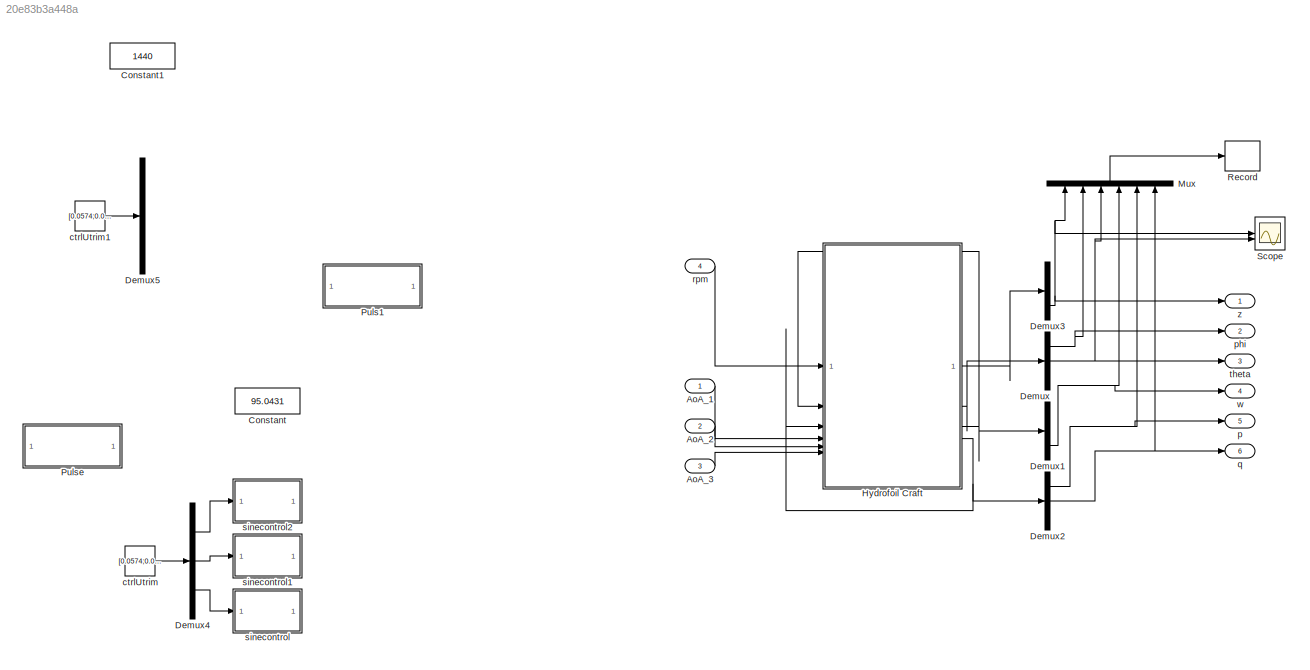
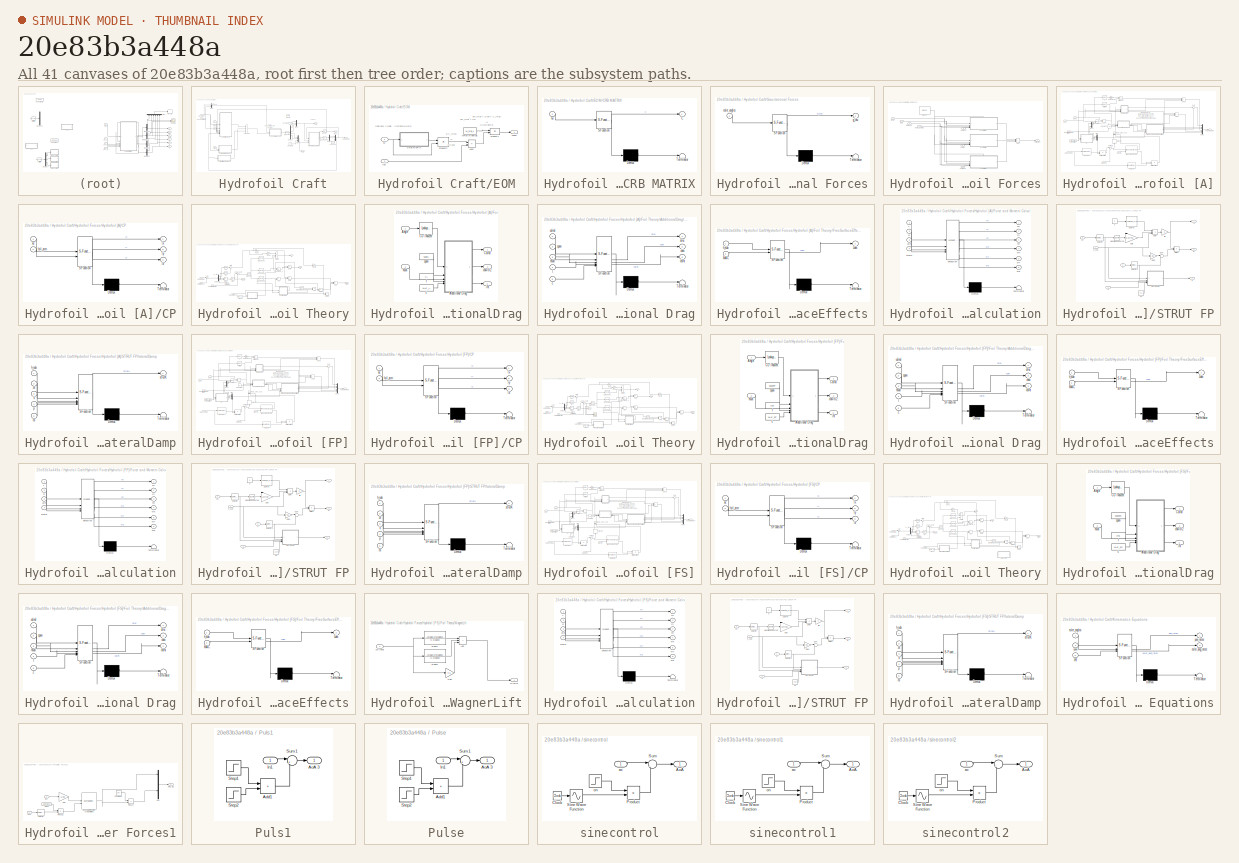
[diagram: thumbnail index - all 41 canvases of the model, root first then tree order]
MODEL slx_20e83b3a448a
KIND model
CONFIG AbsTol = auto
CONFIG EnableMultiTasking = off
CONFIG FixedStep = 0.05
CONFIG MaxStep = 0.2
CONFIG MinStep = auto
CONFIG RelTol = 1e-3
CONFIG SampleTimeConstraint = Unconstrained
CONFIG SolverName = VariableStepAuto
CONFIG StartTime = 0.0
CONFIG StopTime = 15
BLOCK [Inport] AoA_1
BLOCK [Inport] AoA_2
  Port = 2
BLOCK [Inport] AoA_3
  Port = 3
BLOCK [Constant] Constant
  Commented = on
  Value = 95.0431
BLOCK [Constant] Constant1
  Commented = on
  Value = 1440
BLOCK [Demux] Demux
  Outputs = 3
BLOCK [Demux] Demux1
  Outputs = 3
BLOCK [Demux] Demux2
  Outputs = 3
BLOCK [Demux] Demux3
  Outputs = 3
BLOCK [Demux] Demux4
  Commented = on
  Outputs = 3
BLOCK [Demux] Demux5
  Commented = on
  Outputs = 3
BLOCK [SubSystem] Hydrofoil Craft
BLOCK [Inport] Hydrofoil Craft/AoA 1
  Port = 4
BLOCK [Inport] Hydrofoil Craft/AoA 2
  Port = 5
BLOCK [Inport] Hydrofoil Craft/AoA 3
  Port = 6
BLOCK [Inport] Hydrofoil Craft/BF Angular Rates
  Port = 3
BLOCK [Inport] Hydrofoil Craft/BF Velocity
  Port = 2
BLOCK [Constant] Hydrofoil Craft/Constant2
  Value = 0
BLOCK [Constant] Hydrofoil Craft/Constant3
  Value = 0
BLOCK [Demux] Hydrofoil Craft/Demux1
  Outputs = 6
BLOCK [Demux] Hydrofoil Craft/Demux2
  Outputs = 3
BLOCK [SubSystem] Hydrofoil Craft/EOM
BLOCK [Sum] Hydrofoil Craft/EOM/Add3
  IconShape = rectangular
  Inputs = -+
BLOCK [SubSystem] Hydrofoil Craft/EOM/CRB MATRIX
  ErrorFcn = Stateflow.Translate.translate
  LibrarySourceBlock = simulink/User-Defined\nFunctions/MATLAB Function
  PermitHierarchicalResolution = ExplicitOnly
  SFBlockType = MATLAB Function
  TreatAsAtomicUnit = on
BLOCK [Demux] Hydrofoil Craft/EOM/CRB MATRIX/ Demux 
  Outputs = 1
BLOCK [S-Function] Hydrofoil Craft/EOM/CRB MATRIX/ SFunction 
  EnableBusSupport = on
  FunctionName = sf_sfun
  Parameters = M_RB
  PortCounts = [1 2]
  SFcnIsStateOwnerBlock = off
  SFunctionDeploymentMode = off
  Tag = Stateflow S-Function 10
BLOCK [Terminator] Hydrofoil Craft/EOM/CRB MATRIX/ Terminator 
BLOCK [Outport] Hydrofoil Craft/EOM/CRB MATRIX/C
BLOCK [Inport] Hydrofoil Craft/EOM/CRB MATRIX/nu
BLOCK [Constant] Hydrofoil Craft/EOM/MRB INVERSE
  Value = M_RB_1
BLOCK [Product] Hydrofoil Craft/EOM/Product1
  Multiplication = Matrix(*)
BLOCK [Product] Hydrofoil Craft/EOM/Product2
  Multiplication = Matrix(*)
BLOCK [Inport] Hydrofoil Craft/EOM/nu
BLOCK [Outport] Hydrofoil Craft/EOM/nudot
BLOCK [Inport] Hydrofoil Craft/EOM/tau
  Port = 2
BLOCK [Sum] Hydrofoil Craft/Force Sum
  IconShape = rectangular
  Inputs = +++
BLOCK [SubSystem] Hydrofoil Craft/Gravitational Forces
  ErrorFcn = Stateflow.Translate.translate
  LibrarySourceBlock = simulink/User-Defined\nFunctions/MATLAB Function
  PermitHierarchicalResolution = ExplicitOnly
  SFBlockType = MATLAB Function
  TreatAsAtomicUnit = on
BLOCK [Demux] Hydrofoil Craft/Gravitational Forces/ Demux 
  Outputs = 1
BLOCK [S-Function] Hydrofoil Craft/Gravitational Forces/ SFunction 
  EnableBusSupport = on
  FunctionName = sf_sfun
  Parameters = g,mass,r_g
  PortCounts = [1 2]
  SFcnIsStateOwnerBlock = off
  SFunctionDeploymentMode = off
  Tag = Stateflow S-Function 3
BLOCK [Terminator] Hydrofoil Craft/Gravitational Forces/ Terminator 
BLOCK [Inport] Hydrofoil Craft/Gravitational Forces/euler_angles
BLOCK [Outport] Hydrofoil Craft/Gravitational Forces/g_tau
BLOCK [SubSystem] Hydrofoil Craft/Hydrofoil Forces
BLOCK [Sum] Hydrofoil Craft/Hydrofoil Forces/Add
  IconShape = rectangular
  Inputs = +++
BLOCK [Inport] Hydrofoil Craft/Hydrofoil Forces/Angle A
  Port = 5
BLOCK [Inport] Hydrofoil Craft/Hydrofoil Forces/Angle FP
  Port = 4
BLOCK [Inport] Hydrofoil Craft/Hydrofoil Forces/Angle FS
  Port = 3
BLOCK [Outport] Hydrofoil Craft/Hydrofoil Forces/FoilForce
BLOCK [SubSystem] Hydrofoil Craft/Hydrofoil Forces/Hydrofoil [A]
  PortSchema = {"entries":[{"content":{"sides":[{"content":{"connectorIds":["In1","In2","In3","In4","In5"]},"type":"ConnectorPlacement.EquallySpacedRectSide","uuid":"677cb1e4-b507-48e0-bf9b-1d4b68d11740"},{"content":{"connectorIds":["Out1"],"side":"RIGHT"},"type":"ConnectorPlacement.EquallySpacedRectSide","uuid":"aaee0231-58d5-427f-802b-fd317cb8babc"},{"content":{"connectorIds":["In6"],"side":"TOP"},"type":"Conn...<+269ch>  <repeated x3 — deduplicated; at blocks: Hydrofoil [A], Hydrofoil [FP], Hydrofoil [FS]>
BLOCK [Gain] Hydrofoil Craft/Hydrofoil Forces/Hydrofoil [A]/-0.5ρ2pi Ld,p
  Gain = -1/2*rho*2*pi*LAd
BLOCK [Sum] Hydrofoil Craft/Hydrofoil Forces/Hydrofoil [A]/Add
  IconShape = rectangular
BLOCK [Sum] Hydrofoil Craft/Hydrofoil Forces/Hydrofoil [A]/Add1
  IconShape = rectangular
  Inputs = +++
BLOCK [Sum] Hydrofoil Craft/Hydrofoil Forces/Hydrofoil [A]/Add2
  IconShape = rectangular
  Inputs = +++
BLOCK [Reference] Hydrofoil Craft/Hydrofoil Forces/Hydrofoil [A]/BF2NED  REF=mssSimulink/Modelling/Kinematics/Euler angles to
rotation matrix
  SourceBlock = mssSimulink/Modelling/Kinematics/Euler angles to\nrotation matrix
  SourceType = Euler2R
BLOCK [SubSystem] Hydrofoil Craft/Hydrofoil Forces/Hydrofoil [A]/CP
  ErrorFcn = Stateflow.Translate.translate
  LibrarySourceBlock = simulink/User-Defined\nFunctions/MATLAB Function
  PermitHierarchicalResolution = ExplicitOnly
  SFBlockType = MATLAB Function
  TreatAsAtomicUnit = on
BLOCK [Demux] Hydrofoil Craft/Hydrofoil Forces/Hydrofoil [A]/CP/ Demux 
  Outputs = 1
BLOCK [S-Function] Hydrofoil Craft/Hydrofoil Forces/Hydrofoil [A]/CP/ SFunction 
  EnableBusSupport = on
  FunctionName = sf_sfun
  PortCounts = [2 4]
  SFcnIsStateOwnerBlock = off
  SFunctionDeploymentMode = off
  Tag = Stateflow S-Function 1
BLOCK [Terminator] Hydrofoil Craft/Hydrofoil Forces/Hydrofoil [A]/CP/ Terminator 
BLOCK [Inport] Hydrofoil Craft/Hydrofoil Forces/Hydrofoil [A]/CP/ac
BLOCK [Inport] Hydrofoil Craft/Hydrofoil Forces/Hydrofoil [A]/CP/foil_arm
  Port = 2
BLOCK [Outport] Hydrofoil Craft/Hydrofoil Forces/Hydrofoil [A]/CP/lx
BLOCK [Outport] Hydrofoil Craft/Hydrofoil Forces/Hydrofoil [A]/CP/ly
  Port = 2
BLOCK [Outport] Hydrofoil Craft/Hydrofoil Forces/Hydrofoil [A]/CP/lz
  Port = 3
BLOCK [Constant] Hydrofoil Craft/Hydrofoil Forces/Hydrofoil [A]/Constant
  Value = 0.5
BLOCK [Inport] Hydrofoil Craft/Hydrofoil Forces/Hydrofoil [A]/Control Deflection (ac)
  Port = 5
BLOCK [Reference] Hydrofoil Craft/Hydrofoil Forces/Hydrofoil [A]/Cross Product  REF=matrix_library/Cross Product
  SourceBlock = matrix_library/Cross Product
  SourceType = CrossProduct
BLOCK [Constant] Hydrofoil Craft/Hydrofoil Forces/Hydrofoil [A]/Foil Position
  Value = foilA_ARM
BLOCK [SubSystem] Hydrofoil Craft/Hydrofoil Forces/Hydrofoil [A]/Foil Theory
BLOCK [Gain] Hydrofoil Craft/Hydrofoil Forces/Hydrofoil [A]/Foil Theory/0.5ρS
  Gain = 1/2*rho*AfoilA
BLOCK [Gain] Hydrofoil Craft/Hydrofoil Forces/Hydrofoil [A]/Foil Theory/0.5ρSc
  Gain = 1/2*rho*AfoilA*MAC_A
BLOCK [Gain] Hydrofoil Craft/Hydrofoil Forces/Hydrofoil [A]/Foil Theory/0.5ρt^2
  Gain = 1/2*rho*tA^2
BLOCK [Sum] Hydrofoil Craft/Hydrofoil Forces/Hydrofoil [A]/Foil Theory/Add
  IconShape = rectangular
  Inputs = +++
BLOCK [SubSystem] Hydrofoil Craft/Hydrofoil Forces/Hydrofoil [A]/Foil Theory/AdditionalDrag
BLOCK [SubSystem] Hydrofoil Craft/Hydrofoil Forces/Hydrofoil [A]/Foil Theory/AdditionalDrag/Additional Drag
  ErrorFcn = Stateflow.Translate.translate
  PermitHierarchicalResolution = ExplicitOnly
  SFBlockType = MATLAB Function
  TreatAsAtomicUnit = on
BLOCK [Demux] Hydrofoil Craft/Hydrofoil Forces/Hydrofoil [A]/Foil Theory/AdditionalDrag/Additional Drag/ Demux 
  Outputs = 1
BLOCK [S-Function] Hydrofoil Craft/Hydrofoil Forces/Hydrofoil [A]/Foil Theory/AdditionalDrag/Additional Drag/ SFunction 
  EnableBusSupport = on
  FunctionName = sf_sfun
  Parameters = usted
  PortCounts = [5 4]
  SFcnIsStateOwnerBlock = off
  SFunctionDeploymentMode = off
  Tag = Stateflow S-Function 2
BLOCK [Terminator] Hydrofoil Craft/Hydrofoil Forces/Hydrofoil [A]/Foil Theory/AdditionalDrag/Additional Drag/ Terminator 
BLOCK [Inport] Hydrofoil Craft/Hydrofoil Forces/Hydrofoil [A]/Foil Theory/AdditionalDrag/Additional Drag/c
  Port = 5
BLOCK [Inport] Hydrofoil Craft/Hydrofoil Forces/Hydrofoil [A]/Foil Theory/AdditionalDrag/Additional Drag/cdind
BLOCK [Outport] Hydrofoil Craft/Hydrofoil Forces/Hydrofoil [A]/Foil Theory/AdditionalDrag/Additional Drag/cdint
  Port = 3
BLOCK [Outport] Hydrofoil Craft/Hydrofoil Forces/Hydrofoil [A]/Foil Theory/AdditionalDrag/Additional Drag/cdw
  Port = 2
BLOCK [Outport] Hydrofoil Craft/Hydrofoil Forces/Hydrofoil [A]/Foil Theory/AdditionalDrag/Additional Drag/dinc
BLOCK [Inport] Hydrofoil Craft/Hydrofoil Forces/Hydrofoil [A]/Foil Theory/AdditionalDrag/Additional Drag/hsub
  Port = 3
BLOCK [Inport] Hydrofoil Craft/Hydrofoil Forces/Hydrofoil [A]/Foil Theory/AdditionalDrag/Additional Drag/span
  Port = 2
BLOCK [Inport] Hydrofoil Craft/Hydrofoil Forces/Hydrofoil [A]/Foil Theory/AdditionalDrag/Additional Drag/t
  Port = 4
BLOCK [Inport] Hydrofoil Craft/Hydrofoil Forces/Hydrofoil [A]/Foil Theory/AdditionalDrag/Angle
BLOCK [Lookup_n-D] Hydrofoil Craft/Hydrofoil Forces/Hydrofoil [A]/Foil Theory/AdditionalDrag/CD induced
  BreakpointsForDimension1 = alpha63412wing
  InputPortMap = u0
  InternalRulePriority = Speed
  NumberOfTableDimensions = 1
  RndMeth = Simplest
  Table = cdi63412wing
BLOCK [Outport] Hydrofoil Craft/Hydrofoil Forces/Hydrofoil [A]/Foil Theory/AdditionalDrag/Cdind
BLOCK [Constant] Hydrofoil Craft/Hydrofoil Forces/Hydrofoil [A]/Foil Theory/AdditionalDrag/c
  Value = MAC_A
BLOCK [Outport] Hydrofoil Craft/Hydrofoil Forces/Hydrofoil [A]/Foil Theory/AdditionalDrag/cdw//cl2
  Port = 2
BLOCK [Inport] Hydrofoil Craft/Hydrofoil Forces/Hydrofoil [A]/Foil Theory/AdditionalDrag/hsub
  Port = 2
BLOCK [Outport] Hydrofoil Craft/Hydrofoil Forces/Hydrofoil [A]/Foil Theory/AdditionalDrag/int
  Port = 3
BLOCK [Constant] Hydrofoil Craft/Hydrofoil Forces/Hydrofoil [A]/Foil Theory/AdditionalDrag/span
  Value = spanA
BLOCK [Constant] Hydrofoil Craft/Hydrofoil Forces/Hydrofoil [A]/Foil Theory/AdditionalDrag/t
  Value = tA
BLOCK [Sum] Hydrofoil Craft/Hydrofoil Forces/Hydrofoil [A]/Foil Theory/Angle_Hydro
  Inputs = |++
BLOCK [Trigonometry] Hydrofoil Craft/Hydrofoil Forces/Hydrofoil [A]/Foil Theory/Atan
  Operator = atan
BLOCK [Sum] Hydrofoil Craft/Hydrofoil Forces/Hydrofoil [A]/Foil Theory/CD
  IconShape = rectangular
BLOCK [Lookup_n-D] Hydrofoil Craft/Hydrofoil Forces/Hydrofoil [A]/Foil Theory/CDv LookUp
  BreakpointsForDimension1 = alpha63412wing
  InputPortMap = u0
  InternalRulePriority = Speed
  NumberOfTableDimensions = 1
  RndMeth = Simplest
  Table = cdv63412wing
BLOCK [Lookup_n-D] Hydrofoil Craft/Hydrofoil Forces/Hydrofoil [A]/Foil Theory/CL LookUp
  BreakpointsForDimension1 = alpha63412wing
  InputPortMap = u0
  InternalRulePriority = Speed
  NumberOfTableDimensions = 1
  RndMeth = Simplest
  Table = cl63412wing
BLOCK [Lookup_n-D] Hydrofoil Craft/Hydrofoil Forces/Hydrofoil [A]/Foil Theory/CM Lookup
  BreakpointsForDimension1 = alpha63412wing
  InputPortMap = u0
  InternalRulePriority = Speed
  NumberOfTableDimensions = 1
  RndMeth = Simplest
  Table = cm63412wing
BLOCK [Product] Hydrofoil Craft/Hydrofoil Forces/Hydrofoil [A]/Foil Theory/Cmdim
  Inputs = 3
BLOCK [Inport] Hydrofoil Craft/Hydrofoil Forces/Hydrofoil [A]/Foil Theory/Control Deflection
  Port = 2
BLOCK [Product] Hydrofoil Craft/Hydrofoil Forces/Hydrofoil [A]/Foil Theory/Ddim
BLOCK [Product] Hydrofoil Craft/Hydrofoil Forces/Hydrofoil [A]/Foil Theory/Ddimint
BLOCK [Product] Hydrofoil Craft/Hydrofoil Forces/Hydrofoil [A]/Foil Theory/Ddimw
BLOCK [Demux] Hydrofoil Craft/Hydrofoil Forces/Hydrofoil [A]/Foil Theory/Demux
  Outputs = 3
BLOCK [Product] Hydrofoil Craft/Hydrofoil Forces/Hydrofoil [A]/Foil Theory/Divide
  Inputs = */
BLOCK [Outport] Hydrofoil Craft/Hydrofoil Forces/Hydrofoil [A]/Foil Theory/Drag
  Port = 2
BLOCK [SubSystem] Hydrofoil Craft/Hydrofoil Forces/Hydrofoil [A]/Foil Theory/FreeSurfaceEffects
  ErrorFcn = Stateflow.Translate.translate
  PermitHierarchicalResolution = ExplicitOnly
  SFBlockType = MATLAB Function
  TreatAsAtomicUnit = on
BLOCK [Demux] Hydrofoil Craft/Hydrofoil Forces/Hydrofoil [A]/Foil Theory/FreeSurfaceEffects/ Demux 
  Outputs = 1
BLOCK [S-Function] Hydrofoil Craft/Hydrofoil Forces/Hydrofoil [A]/Foil Theory/FreeSurfaceEffects/ SFunction 
  EnableBusSupport = on
  FunctionName = sf_sfun
  PortCounts = [2 2]
  SFcnIsStateOwnerBlock = off
  SFunctionDeploymentMode = off
  Tag = Stateflow S-Function 8
BLOCK [Terminator] Hydrofoil Craft/Hydrofoil Forces/Hydrofoil [A]/Foil Theory/FreeSurfaceEffects/ Terminator 
BLOCK [Outport] Hydrofoil Craft/Hydrofoil Forces/Hydrofoil [A]/Foil Theory/FreeSurfaceEffects/Ldec
BLOCK [Inport] Hydrofoil Craft/Hydrofoil Forces/Hydrofoil [A]/Foil Theory/FreeSurfaceEffects/MAC
  Port = 2
BLOCK [Inport] Hydrofoil Craft/Hydrofoil Forces/Hydrofoil [A]/Foil Theory/FreeSurfaceEffects/h_sub
BLOCK [Product] Hydrofoil Craft/Hydrofoil Forces/Hydrofoil [A]/Foil Theory/Ldecrease_h
BLOCK [Product] Hydrofoil Craft/Hydrofoil Forces/Hydrofoil [A]/Foil Theory/Ldim
BLOCK [Outport] Hydrofoil Craft/Hydrofoil Forces/Hydrofoil [A]/Foil Theory/Lift
BLOCK [Outport] Hydrofoil Craft/Hydrofoil Forces/Hydrofoil [A]/Foil Theory/M
  Port = 4
BLOCK [Constant] Hydrofoil Craft/Hydrofoil Forces/Hydrofoil [A]/Foil Theory/MAC
  Value = MAC_A
BLOCK [Math] Hydrofoil Craft/Hydrofoil Forces/Hydrofoil [A]/Foil Theory/Magnitude Squared
  Operator = magnitude^2
BLOCK [Inport] Hydrofoil Craft/Hydrofoil Forces/Hydrofoil [A]/Foil Theory/Pivot Velocity
BLOCK [Inport] Hydrofoil Craft/Hydrofoil Forces/Hydrofoil [A]/Foil Theory/Submergence
  Port = 4
BLOCK [Sum] Hydrofoil Craft/Hydrofoil Forces/Hydrofoil [A]/Foil Theory/Sum
  Inputs = |+-
BLOCK [Terminator] Hydrofoil Craft/Hydrofoil Forces/Hydrofoil [A]/Foil Theory/Terminator
BLOCK [Sum] Hydrofoil Craft/Hydrofoil Forces/Hydrofoil [A]/Foil Theory/Vinf^2
  Inputs = |++
BLOCK [Outport] Hydrofoil Craft/Hydrofoil Forces/Hydrofoil [A]/Foil Theory/a_inf
  Port = 3
BLOCK [Product] Hydrofoil Craft/Hydrofoil Forces/Hydrofoil [A]/Foil Theory/cdw
BLOCK [Inport] Hydrofoil Craft/Hydrofoil Forces/Hydrofoil [A]/Foil Theory/disturbance
  Port = 3
BLOCK [Reference] Hydrofoil Craft/Hydrofoil Forces/Hydrofoil [A]/Foil Theory/rad2deg  REF=simulink_extras/Transformations/Radians
to Degrees
  SourceBlock = simulink_extras/Transformations/Radians\nto Degrees
  SourceType = RadiansToDegrees
BLOCK [Math] Hydrofoil Craft/Hydrofoil Forces/Hydrofoil [A]/Foil Theory/u^2
  Operator = magnitude^2
BLOCK [Math] Hydrofoil Craft/Hydrofoil Forces/Hydrofoil [A]/Foil Theory/w^2
  Operator = magnitude^2
BLOCK [Sum] Hydrofoil Craft/Hydrofoil Forces/Hydrofoil [A]/FoilNED
  Inputs = |++
BLOCK [Outport] Hydrofoil Craft/Hydrofoil Forces/Hydrofoil [A]/Force - Moment
BLOCK [SubSystem] Hydrofoil Craft/Hydrofoil Forces/Hydrofoil [A]/Force and Moment Calculation
  ErrorFcn = Stateflow.Translate.translate
  LibrarySourceBlock = simulink/User-Defined\nFunctions/MATLAB Function
  PermitHierarchicalResolution = ExplicitOnly
  SFBlockType = MATLAB Function
  TreatAsAtomicUnit = on
BLOCK [Demux] Hydrofoil Craft/Hydrofoil Forces/Hydrofoil [A]/Force and Moment Calculation/ Demux 
  Outputs = 1
BLOCK [S-Function] Hydrofoil Craft/Hydrofoil Forces/Hydrofoil [A]/Force and Moment Calculation/ SFunction 
  EnableBusSupport = on
  FunctionName = sf_sfun
  PortCounts = [4 7]
  SFcnIsStateOwnerBlock = off
  SFunctionDeploymentMode = off
  Tag = Stateflow S-Function 16
BLOCK [Terminator] Hydrofoil Craft/Hydrofoil Forces/Hydrofoil [A]/Force and Moment Calculation/ Terminator 
BLOCK [Inport] Hydrofoil Craft/Hydrofoil Forces/Hydrofoil [A]/Force and Moment Calculation/D
  Port = 2
BLOCK [Outport] Hydrofoil Craft/Hydrofoil Forces/Hydrofoil [A]/Force and Moment Calculation/FX
BLOCK [Outport] Hydrofoil Craft/Hydrofoil Forces/Hydrofoil [A]/Force and Moment Calculation/FY
  Port = 2
BLOCK [Outport] Hydrofoil Craft/Hydrofoil Forces/Hydrofoil [A]/Force and Moment Calculation/FZ
  Port = 3
BLOCK [Inport] Hydrofoil Craft/Hydrofoil Forces/Hydrofoil [A]/Force and Moment Calculation/L
BLOCK [Outport] Hydrofoil Craft/Hydrofoil Forces/Hydrofoil [A]/Force and Moment Calculation/MX
  Port = 4
BLOCK [Outport] Hydrofoil Craft/Hydrofoil Forces/Hydrofoil [A]/Force and Moment Calculation/MY
  Port = 5
BLOCK [Outport] Hydrofoil Craft/Hydrofoil Forces/Hydrofoil [A]/Force and Moment Calculation/MZ
  Port = 6
BLOCK [Inport] Hydrofoil Craft/Hydrofoil Forces/Hydrofoil [A]/Force and Moment Calculation/Marm
  Port = 4
BLOCK [Inport] Hydrofoil Craft/Hydrofoil Forces/Hydrofoil [A]/Force and Moment Calculation/ainf
  Port = 3
BLOCK [Product] Hydrofoil Craft/Hydrofoil Forces/Hydrofoil [A]/Matrix Multiply
  Multiplication = Matrix(*)
BLOCK [Product] Hydrofoil Craft/Hydrofoil Forces/Hydrofoil [A]/Matrix Multiply1
  Multiplication = Matrix(*)
BLOCK [Mux] Hydrofoil Craft/Hydrofoil Forces/Hydrofoil [A]/Mux
  DisplayOption = bar
  Inputs = 3
BLOCK [Mux] Hydrofoil Craft/Hydrofoil Forces/Hydrofoil [A]/Mux1
  DisplayOption = bar
  Inputs = 6
BLOCK [Mux] Hydrofoil Craft/Hydrofoil Forces/Hydrofoil [A]/Mux2
  DisplayOption = bar
  Inputs = 3
BLOCK [Reference] Hydrofoil Craft/Hydrofoil Forces/Hydrofoil [A]/NED2BF  REF=mssSimulink/Modelling/Kinematics/Euler angles to
inverse rotation
matrix
  SourceBlock = mssSimulink/Modelling/Kinematics/Euler angles to\ninverse rotation\nmatrix
  SourceType = Rbn
BLOCK [Inport] Hydrofoil Craft/Hydrofoil Forces/Hydrofoil [A]/NEDpos
  Port = 3
BLOCK [Product] Hydrofoil Craft/Hydrofoil Forces/Hydrofoil [A]/Product
BLOCK [SubSystem] Hydrofoil Craft/Hydrofoil Forces/Hydrofoil [A]/STRUT FP
BLOCK [Lookup_n-D] Hydrofoil Craft/Hydrofoil Forces/Hydrofoil [A]/STRUT FP/CD strut
  BreakpointsForDimension1 = alpha0012
  InputPortMap = u0
  InternalRulePriority = Speed
  NumberOfTableDimensions = 1
  RndMeth = Simplest
  Table = cd0012
BLOCK [Product] Hydrofoil Craft/Hydrofoil Forces/Hydrofoil [A]/STRUT FP/Ddim
  Inputs = 3
BLOCK [Gain] Hydrofoil Craft/Hydrofoil Forces/Hydrofoil [A]/STRUT FP/Gain
  Gain = 0.5*rho*csA
BLOCK [Gain] Hydrofoil Craft/Hydrofoil Forces/Hydrofoil [A]/STRUT FP/Gain1
  Gain = 0.5
BLOCK [Outport] Hydrofoil Craft/Hydrofoil Forces/Hydrofoil [A]/STRUT FP/K
  Port = 2
BLOCK [Outport] Hydrofoil Craft/Hydrofoil Forces/Hydrofoil [A]/STRUT FP/M
  Port = 3
BLOCK [Math] Hydrofoil Craft/Hydrofoil Forces/Hydrofoil [A]/STRUT FP/Magnitude Squared
  Operator = magnitude^2
BLOCK [Product] Hydrofoil Craft/Hydrofoil Forces/Hydrofoil [A]/STRUT FP/Mpitch
BLOCK [Selector] Hydrofoil Craft/Hydrofoil Forces/Hydrofoil [A]/STRUT FP/Selector
  IndexOptions = Index vector (dialog)
  Indices = [1]
  InputPortWidth = 3
  OutputSizes = 1
BLOCK [Selector] Hydrofoil Craft/Hydrofoil Forces/Hydrofoil [A]/STRUT FP/Selector1
  IndexOptions = Index vector (dialog)
  Indices = [3]
  InputPortWidth = 3
  OutputSizes = 1
BLOCK [Sum] Hydrofoil Craft/Hydrofoil Forces/Hydrofoil [A]/STRUT FP/Sum
  Inputs = |-+
BLOCK [Outport] Hydrofoil Craft/Hydrofoil Forces/Hydrofoil [A]/STRUT FP/X
BLOCK [Constant] Hydrofoil Craft/Hydrofoil Forces/Hydrofoil [A]/STRUT FP/a
  Value = 0
BLOCK [Constant] Hydrofoil Craft/Hydrofoil Forces/Hydrofoil [A]/STRUT FP/a1
  Value = csA
BLOCK [Gain] Hydrofoil Craft/Hydrofoil Forces/Hydrofoil [A]/STRUT FP/flip
  Gain = -1
BLOCK [Inport] Hydrofoil Craft/Hydrofoil Forces/Hydrofoil [A]/STRUT FP/h_sub
BLOCK [SubSystem] Hydrofoil Craft/Hydrofoil Forces/Hydrofoil [A]/STRUT FP/lateralDamp
  ErrorFcn = Stateflow.Translate.translate
  PermitHierarchicalResolution = ExplicitOnly
  SFBlockType = MATLAB Function
  TreatAsAtomicUnit = on
BLOCK [Demux] Hydrofoil Craft/Hydrofoil Forces/Hydrofoil [A]/STRUT FP/lateralDamp/ Demux 
  Outputs = 1
BLOCK [S-Function] Hydrofoil Craft/Hydrofoil Forces/Hydrofoil [A]/STRUT FP/lateralDamp/ SFunction 
  EnableBusSupport = on
  FunctionName = sf_sfun
  Parameters = rho
  PortCounts = [5 2]
  SFcnIsStateOwnerBlock = off
  SFunctionDeploymentMode = off
  Tag = Stateflow S-Function 17
BLOCK [Terminator] Hydrofoil Craft/Hydrofoil Forces/Hydrofoil [A]/STRUT FP/lateralDamp/ Terminator 
BLOCK [Inport] Hydrofoil Craft/Hydrofoil Forces/Hydrofoil [A]/STRUT FP/lateralDamp/V
  Port = 3
BLOCK [Inport] Hydrofoil Craft/Hydrofoil Forces/Hydrofoil [A]/STRUT FP/lateralDamp/cs
  Port = 5
BLOCK [Inport] Hydrofoil Craft/Hydrofoil Forces/Hydrofoil [A]/STRUT FP/lateralDamp/h_sub
BLOCK [Inport] Hydrofoil Craft/Hydrofoil Forces/Hydrofoil [A]/STRUT FP/lateralDamp/p
  Port = 4
BLOCK [Outport] Hydrofoil Craft/Hydrofoil Forces/Hydrofoil [A]/STRUT FP/lateralDamp/strutK
BLOCK [Inport] Hydrofoil Craft/Hydrofoil Forces/Hydrofoil [A]/STRUT FP/lateralDamp/zs
  Port = 2
BLOCK [Inport] Hydrofoil Craft/Hydrofoil Forces/Hydrofoil [A]/STRUT FP/lz
  Port = 3
BLOCK [Inport] Hydrofoil Craft/Hydrofoil Forces/Hydrofoil [A]/STRUT FP/p
  Port = 4
BLOCK [Inport] Hydrofoil Craft/Hydrofoil Forces/Hydrofoil [A]/STRUT FP/vel
  Port = 2
BLOCK [Selector] Hydrofoil Craft/Hydrofoil Forces/Hydrofoil [A]/Selector
  IndexOptions = Index vector (dialog)
  Indices = [3]
  InputPortWidth = 3
  NameLocation = right
  OutputSizes = 1
BLOCK [Sum] Hydrofoil Craft/Hydrofoil Forces/Hydrofoil [A]/Sum
  Inputs = |++
BLOCK [Reference] Hydrofoil Craft/Hydrofoil Forces/Hydrofoil [A]/Wave velocitycalc  REF=mssSimulink/Environment/Waves/Wave velocitycalc
  SourceBlock = mssSimulink/Environment/Waves/Wave velocitycalc
  SourceType = Wave velocitycalc
BLOCK [Inport] Hydrofoil Craft/Hydrofoil Forces/Hydrofoil [A]/[p q r]
  Port = 2
BLOCK [Inport] Hydrofoil Craft/Hydrofoil Forces/Hydrofoil [A]/[u v w]
BLOCK [Inport] Hydrofoil Craft/Hydrofoil Forces/Hydrofoil [A]/euler_angles
  Port = 4
BLOCK [Selector] Hydrofoil Craft/Hydrofoil Forces/Hydrofoil [A]/rollrate
  IndexOptions = Index vector (dialog)
  Indices = [1]
  InputPortWidth = 3
  OutputSizes = 1
BLOCK [Selector] Hydrofoil Craft/Hydrofoil Forces/Hydrofoil [A]/u
  IndexOptions = Index vector (dialog)
  Indices = [1]
  InputPortWidth = 3
  OutputSizes = 1
BLOCK [Sum] Hydrofoil Craft/Hydrofoil Forces/Hydrofoil [A]/wave_elev_sub
  Inputs = |++
  NameLocation = left
BLOCK [Inport] Hydrofoil Craft/Hydrofoil Forces/Hydrofoil [A]/waves
  Port = 6
BLOCK [SubSystem] Hydrofoil Craft/Hydrofoil Forces/Hydrofoil [FP]
BLOCK [Gain] Hydrofoil Craft/Hydrofoil Forces/Hydrofoil [FP]/-0.5ρ2pi Ld,p
  Gain = -1/2*rho*2*pi*LFPd
BLOCK [Sum] Hydrofoil Craft/Hydrofoil Forces/Hydrofoil [FP]/Add
  IconShape = rectangular
BLOCK [Sum] Hydrofoil Craft/Hydrofoil Forces/Hydrofoil [FP]/Add1
  IconShape = rectangular
  Inputs = +++
BLOCK [Sum] Hydrofoil Craft/Hydrofoil Forces/Hydrofoil [FP]/Add2
  IconShape = rectangular
  Inputs = +++
BLOCK [Reference] Hydrofoil Craft/Hydrofoil Forces/Hydrofoil [FP]/BF2NED  REF=mssSimulink/Modelling/Kinematics/Euler angles to
rotation matrix
  SourceBlock = mssSimulink/Modelling/Kinematics/Euler angles to\nrotation matrix
  SourceType = Euler2R
BLOCK [SubSystem] Hydrofoil Craft/Hydrofoil Forces/Hydrofoil [FP]/CP
  ErrorFcn = Stateflow.Translate.translate
  LibrarySourceBlock = simulink/User-Defined\nFunctions/MATLAB Function
  PermitHierarchicalResolution = ExplicitOnly
  SFBlockType = MATLAB Function
  TreatAsAtomicUnit = on
BLOCK [Demux] Hydrofoil Craft/Hydrofoil Forces/Hydrofoil [FP]/CP/ Demux 
  Outputs = 1
BLOCK [S-Function] Hydrofoil Craft/Hydrofoil Forces/Hydrofoil [FP]/CP/ SFunction 
  EnableBusSupport = on
  FunctionName = sf_sfun
  PortCounts = [2 4]
  SFcnIsStateOwnerBlock = off
  SFunctionDeploymentMode = off
  Tag = Stateflow S-Function 4
BLOCK [Terminator] Hydrofoil Craft/Hydrofoil Forces/Hydrofoil [FP]/CP/ Terminator 
BLOCK [Inport] Hydrofoil Craft/Hydrofoil Forces/Hydrofoil [FP]/CP/ac
BLOCK [Inport] Hydrofoil Craft/Hydrofoil Forces/Hydrofoil [FP]/CP/foil_arm
  Port = 2
BLOCK [Outport] Hydrofoil Craft/Hydrofoil Forces/Hydrofoil [FP]/CP/lx
BLOCK [Outport] Hydrofoil Craft/Hydrofoil Forces/Hydrofoil [FP]/CP/ly
  Port = 2
BLOCK [Outport] Hydrofoil Craft/Hydrofoil Forces/Hydrofoil [FP]/CP/lz
  Port = 3
BLOCK [Constant] Hydrofoil Craft/Hydrofoil Forces/Hydrofoil [FP]/Constant
  Value = 0.5
BLOCK [Inport] Hydrofoil Craft/Hydrofoil Forces/Hydrofoil [FP]/Control Deflection (ac)
  Port = 5
BLOCK [Reference] Hydrofoil Craft/Hydrofoil Forces/Hydrofoil [FP]/Cross Product  REF=matrix_library/Cross Product
  SourceBlock = matrix_library/Cross Product
  SourceType = CrossProduct
BLOCK [Constant] Hydrofoil Craft/Hydrofoil Forces/Hydrofoil [FP]/Foil Position
  Value = foilFP_ARM
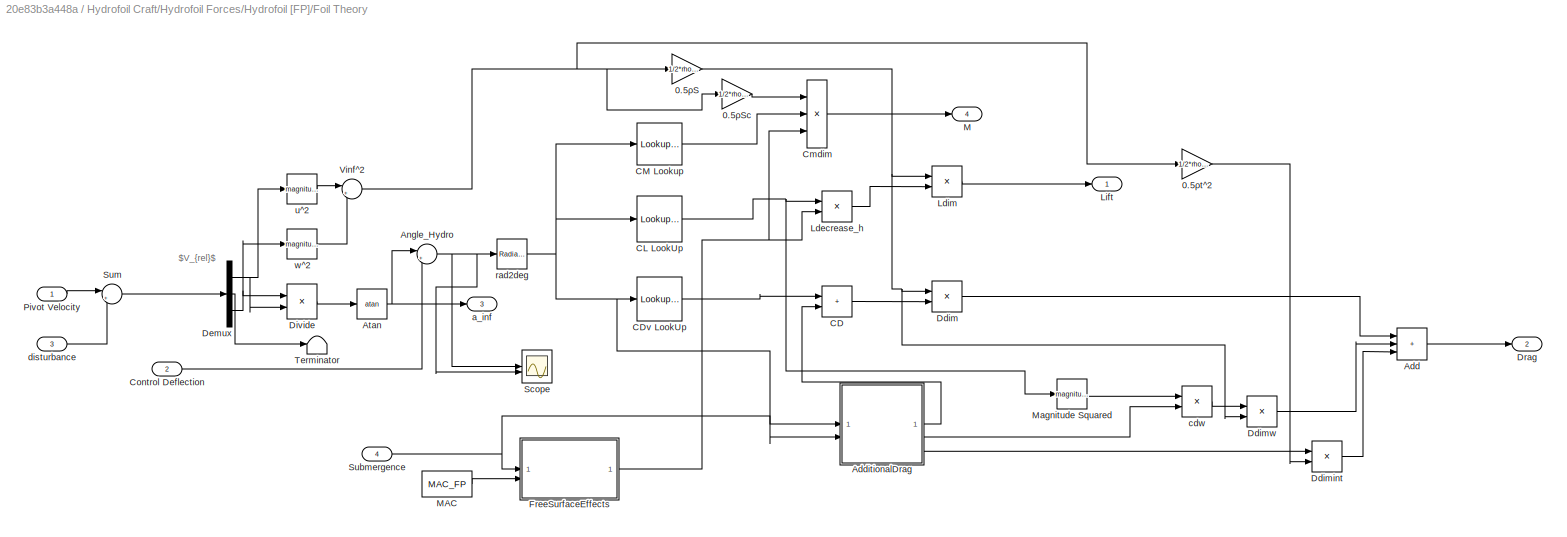
BLOCK [SubSystem] Hydrofoil Craft/Hydrofoil Forces/Hydrofoil [FP]/Foil Theory
BLOCK [Gain] Hydrofoil Craft/Hydrofoil Forces/Hydrofoil [FP]/Foil Theory/0.5ρS
  Gain = 1/2*rho*AfoilFP
BLOCK [Gain] Hydrofoil Craft/Hydrofoil Forces/Hydrofoil [FP]/Foil Theory/0.5ρSc
  Gain = 1/2*rho*AfoilFP*MAC_FP
BLOCK [Gain] Hydrofoil Craft/Hydrofoil Forces/Hydrofoil [FP]/Foil Theory/0.5ρt^2
  Gain = 1/2*rho*tFP^2
BLOCK [Sum] Hydrofoil Craft/Hydrofoil Forces/Hydrofoil [FP]/Foil Theory/Add
  IconShape = rectangular
  Inputs = +++
BLOCK [SubSystem] Hydrofoil Craft/Hydrofoil Forces/Hydrofoil [FP]/Foil Theory/AdditionalDrag
BLOCK [SubSystem] Hydrofoil Craft/Hydrofoil Forces/Hydrofoil [FP]/Foil Theory/AdditionalDrag/Additional Drag
  ErrorFcn = Stateflow.Translate.translate
  PermitHierarchicalResolution = ExplicitOnly
  SFBlockType = MATLAB Function
  TreatAsAtomicUnit = on
BLOCK [Demux] Hydrofoil Craft/Hydrofoil Forces/Hydrofoil [FP]/Foil Theory/AdditionalDrag/Additional Drag/ Demux 
  Outputs = 1
BLOCK [S-Function] Hydrofoil Craft/Hydrofoil Forces/Hydrofoil [FP]/Foil Theory/AdditionalDrag/Additional Drag/ SFunction 
  EnableBusSupport = on
  FunctionName = sf_sfun
  Parameters = usted
  PortCounts = [5 4]
  SFcnIsStateOwnerBlock = off
  SFunctionDeploymentMode = off
  Tag = Stateflow S-Function 5
BLOCK [Terminator] Hydrofoil Craft/Hydrofoil Forces/Hydrofoil [FP]/Foil Theory/AdditionalDrag/Additional Drag/ Terminator 
BLOCK [Inport] Hydrofoil Craft/Hydrofoil Forces/Hydrofoil [FP]/Foil Theory/AdditionalDrag/Additional Drag/c
  Port = 5
BLOCK [Inport] Hydrofoil Craft/Hydrofoil Forces/Hydrofoil [FP]/Foil Theory/AdditionalDrag/Additional Drag/cdind
BLOCK [Outport] Hydrofoil Craft/Hydrofoil Forces/Hydrofoil [FP]/Foil Theory/AdditionalDrag/Additional Drag/cdint
  Port = 3
BLOCK [Outport] Hydrofoil Craft/Hydrofoil Forces/Hydrofoil [FP]/Foil Theory/AdditionalDrag/Additional Drag/cdw
  Port = 2
BLOCK [Outport] Hydrofoil Craft/Hydrofoil Forces/Hydrofoil [FP]/Foil Theory/AdditionalDrag/Additional Drag/dinc
BLOCK [Inport] Hydrofoil Craft/Hydrofoil Forces/Hydrofoil [FP]/Foil Theory/AdditionalDrag/Additional Drag/hsub
  Port = 3
BLOCK [Inport] Hydrofoil Craft/Hydrofoil Forces/Hydrofoil [FP]/Foil Theory/AdditionalDrag/Additional Drag/span
  Port = 2
BLOCK [Inport] Hydrofoil Craft/Hydrofoil Forces/Hydrofoil [FP]/Foil Theory/AdditionalDrag/Additional Drag/t
  Port = 4
BLOCK [Inport] Hydrofoil Craft/Hydrofoil Forces/Hydrofoil [FP]/Foil Theory/AdditionalDrag/Angle
BLOCK [Lookup_n-D] Hydrofoil Craft/Hydrofoil Forces/Hydrofoil [FP]/Foil Theory/AdditionalDrag/CD induced
  BreakpointsForDimension1 = alpha63412wing
  InputPortMap = u0
  InternalRulePriority = Speed
  NumberOfTableDimensions = 1
  RndMeth = Simplest
  Table = cdi63412wing
BLOCK [Outport] Hydrofoil Craft/Hydrofoil Forces/Hydrofoil [FP]/Foil Theory/AdditionalDrag/Cdind
BLOCK [Constant] Hydrofoil Craft/Hydrofoil Forces/Hydrofoil [FP]/Foil Theory/AdditionalDrag/c
  Value = MAC_FP
BLOCK [Outport] Hydrofoil Craft/Hydrofoil Forces/Hydrofoil [FP]/Foil Theory/AdditionalDrag/cdw//cl2
  Port = 2
BLOCK [Inport] Hydrofoil Craft/Hydrofoil Forces/Hydrofoil [FP]/Foil Theory/AdditionalDrag/hsub
  Port = 2
BLOCK [Outport] Hydrofoil Craft/Hydrofoil Forces/Hydrofoil [FP]/Foil Theory/AdditionalDrag/int
  Port = 3
BLOCK [Constant] Hydrofoil Craft/Hydrofoil Forces/Hydrofoil [FP]/Foil Theory/AdditionalDrag/span
  Value = spanFP
BLOCK [Constant] Hydrofoil Craft/Hydrofoil Forces/Hydrofoil [FP]/Foil Theory/AdditionalDrag/t
  Value = tFP
BLOCK [Sum] Hydrofoil Craft/Hydrofoil Forces/Hydrofoil [FP]/Foil Theory/Angle_Hydro
  Inputs = |++
BLOCK [Trigonometry] Hydrofoil Craft/Hydrofoil Forces/Hydrofoil [FP]/Foil Theory/Atan
  Operator = atan
BLOCK [Sum] Hydrofoil Craft/Hydrofoil Forces/Hydrofoil [FP]/Foil Theory/CD
  IconShape = rectangular
BLOCK [Lookup_n-D] Hydrofoil Craft/Hydrofoil Forces/Hydrofoil [FP]/Foil Theory/CDv LookUp
  BreakpointsForDimension1 = alpha63412wing
  InputPortMap = u0
  InternalRulePriority = Speed
  NumberOfTableDimensions = 1
  RndMeth = Simplest
  Table = cdv63412wing
BLOCK [Lookup_n-D] Hydrofoil Craft/Hydrofoil Forces/Hydrofoil [FP]/Foil Theory/CL LookUp
  BreakpointsForDimension1 = alpha63412wing
  InputPortMap = u0
  InternalRulePriority = Speed
  NumberOfTableDimensions = 1
  RndMeth = Simplest
  Table = cl63412wing
BLOCK [Lookup_n-D] Hydrofoil Craft/Hydrofoil Forces/Hydrofoil [FP]/Foil Theory/CM Lookup
  BreakpointsForDimension1 = alpha63412wing
  InputPortMap = u0
  InternalRulePriority = Speed
  NumberOfTableDimensions = 1
  RndMeth = Simplest
  Table = cm63412wing
BLOCK [Product] Hydrofoil Craft/Hydrofoil Forces/Hydrofoil [FP]/Foil Theory/Cmdim
  Inputs = 3
BLOCK [Inport] Hydrofoil Craft/Hydrofoil Forces/Hydrofoil [FP]/Foil Theory/Control Deflection
  Port = 2
BLOCK [Product] Hydrofoil Craft/Hydrofoil Forces/Hydrofoil [FP]/Foil Theory/Ddim
BLOCK [Product] Hydrofoil Craft/Hydrofoil Forces/Hydrofoil [FP]/Foil Theory/Ddimint
BLOCK [Product] Hydrofoil Craft/Hydrofoil Forces/Hydrofoil [FP]/Foil Theory/Ddimw
BLOCK [Demux] Hydrofoil Craft/Hydrofoil Forces/Hydrofoil [FP]/Foil Theory/Demux
  Outputs = 3
BLOCK [Product] Hydrofoil Craft/Hydrofoil Forces/Hydrofoil [FP]/Foil Theory/Divide
  Inputs = */
BLOCK [Outport] Hydrofoil Craft/Hydrofoil Forces/Hydrofoil [FP]/Foil Theory/Drag
  Port = 2
BLOCK [SubSystem] Hydrofoil Craft/Hydrofoil Forces/Hydrofoil [FP]/Foil Theory/FreeSurfaceEffects
  ErrorFcn = Stateflow.Translate.translate
  PermitHierarchicalResolution = ExplicitOnly
  SFBlockType = MATLAB Function
  TreatAsAtomicUnit = on
BLOCK [Demux] Hydrofoil Craft/Hydrofoil Forces/Hydrofoil [FP]/Foil Theory/FreeSurfaceEffects/ Demux 
  Outputs = 1
BLOCK [S-Function] Hydrofoil Craft/Hydrofoil Forces/Hydrofoil [FP]/Foil Theory/FreeSurfaceEffects/ SFunction 
  EnableBusSupport = on
  FunctionName = sf_sfun
  PortCounts = [2 2]
  SFcnIsStateOwnerBlock = off
  SFunctionDeploymentMode = off
  Tag = Stateflow S-Function 11
BLOCK [Terminator] Hydrofoil Craft/Hydrofoil Forces/Hydrofoil [FP]/Foil Theory/FreeSurfaceEffects/ Terminator 
BLOCK [Outport] Hydrofoil Craft/Hydrofoil Forces/Hydrofoil [FP]/Foil Theory/FreeSurfaceEffects/Ldec
BLOCK [Inport] Hydrofoil Craft/Hydrofoil Forces/Hydrofoil [FP]/Foil Theory/FreeSurfaceEffects/MAC
  Port = 2
BLOCK [Inport] Hydrofoil Craft/Hydrofoil Forces/Hydrofoil [FP]/Foil Theory/FreeSurfaceEffects/h_sub
BLOCK [Product] Hydrofoil Craft/Hydrofoil Forces/Hydrofoil [FP]/Foil Theory/Ldecrease_h
BLOCK [Product] Hydrofoil Craft/Hydrofoil Forces/Hydrofoil [FP]/Foil Theory/Ldim
BLOCK [Outport] Hydrofoil Craft/Hydrofoil Forces/Hydrofoil [FP]/Foil Theory/Lift
BLOCK [Outport] Hydrofoil Craft/Hydrofoil Forces/Hydrofoil [FP]/Foil Theory/M
  Port = 4
BLOCK [Constant] Hydrofoil Craft/Hydrofoil Forces/Hydrofoil [FP]/Foil Theory/MAC
  Value = MAC_FP
BLOCK [Math] Hydrofoil Craft/Hydrofoil Forces/Hydrofoil [FP]/Foil Theory/Magnitude Squared
  Operator = magnitude^2
BLOCK [Inport] Hydrofoil Craft/Hydrofoil Forces/Hydrofoil [FP]/Foil Theory/Pivot Velocity
BLOCK [Scope] Hydrofoil Craft/Hydrofoil Forces/Hydrofoil [FP]/Foil Theory/Scope
  Floating = off
  NumInputPorts = 2
  ScopeSpecificationString = Simulink.scopes.TimeScopeBlockCfg('CurrentConfiguration', extmgr.ConfigurationSet(extmgr.Configuration('Core','General UI',true),extmgr.Configuration('Core','Source UI',true),extmgr.Configuration('Sources','WiredSimulink',true,'DataLoggingVariableName','ScopeData2'),extmgr.Configuration('Visuals','Time Domain',true,'SerializedDisplays',{struct('MinYLimReal','0.01178','MaxYLimReal','0.10483','YLabe...<+1500ch>
BLOCK [Inport] Hydrofoil Craft/Hydrofoil Forces/Hydrofoil [FP]/Foil Theory/Submergence
  Port = 4
BLOCK [Sum] Hydrofoil Craft/Hydrofoil Forces/Hydrofoil [FP]/Foil Theory/Sum
  Inputs = |+-
BLOCK [Terminator] Hydrofoil Craft/Hydrofoil Forces/Hydrofoil [FP]/Foil Theory/Terminator
BLOCK [Sum] Hydrofoil Craft/Hydrofoil Forces/Hydrofoil [FP]/Foil Theory/Vinf^2
  Inputs = |++
BLOCK [Outport] Hydrofoil Craft/Hydrofoil Forces/Hydrofoil [FP]/Foil Theory/a_inf
  Port = 3
BLOCK [Product] Hydrofoil Craft/Hydrofoil Forces/Hydrofoil [FP]/Foil Theory/cdw
BLOCK [Inport] Hydrofoil Craft/Hydrofoil Forces/Hydrofoil [FP]/Foil Theory/disturbance
  Port = 3
BLOCK [Reference] Hydrofoil Craft/Hydrofoil Forces/Hydrofoil [FP]/Foil Theory/rad2deg  REF=simulink_extras/Transformations/Radians
to Degrees
  SourceBlock = simulink_extras/Transformations/Radians\nto Degrees
  SourceType = RadiansToDegrees
BLOCK [Math] Hydrofoil Craft/Hydrofoil Forces/Hydrofoil [FP]/Foil Theory/u^2
  Operator = magnitude^2
BLOCK [Math] Hydrofoil Craft/Hydrofoil Forces/Hydrofoil [FP]/Foil Theory/w^2
  Operator = magnitude^2
BLOCK [Sum] Hydrofoil Craft/Hydrofoil Forces/Hydrofoil [FP]/FoilNED
  Inputs = |++
BLOCK [Outport] Hydrofoil Craft/Hydrofoil Forces/Hydrofoil [FP]/Force - Moment
BLOCK [SubSystem] Hydrofoil Craft/Hydrofoil Forces/Hydrofoil [FP]/Force and Moment Calculation
  ErrorFcn = Stateflow.Translate.translate
  LibrarySourceBlock = simulink/User-Defined\nFunctions/MATLAB Function
  PermitHierarchicalResolution = ExplicitOnly
  SFBlockType = MATLAB Function
  TreatAsAtomicUnit = on
BLOCK [Demux] Hydrofoil Craft/Hydrofoil Forces/Hydrofoil [FP]/Force and Moment Calculation/ Demux 
  Outputs = 1
BLOCK [S-Function] Hydrofoil Craft/Hydrofoil Forces/Hydrofoil [FP]/Force and Moment Calculation/ SFunction 
  EnableBusSupport = on
  FunctionName = sf_sfun
  PortCounts = [4 7]
  SFcnIsStateOwnerBlock = off
  SFunctionDeploymentMode = off
  Tag = Stateflow S-Function 6
BLOCK [Terminator] Hydrofoil Craft/Hydrofoil Forces/Hydrofoil [FP]/Force and Moment Calculation/ Terminator 
BLOCK [Inport] Hydrofoil Craft/Hydrofoil Forces/Hydrofoil [FP]/Force and Moment Calculation/D
  Port = 2
BLOCK [Outport] Hydrofoil Craft/Hydrofoil Forces/Hydrofoil [FP]/Force and Moment Calculation/FX
BLOCK [Outport] Hydrofoil Craft/Hydrofoil Forces/Hydrofoil [FP]/Force and Moment Calculation/FY
  Port = 2
BLOCK [Outport] Hydrofoil Craft/Hydrofoil Forces/Hydrofoil [FP]/Force and Moment Calculation/FZ
  Port = 3
BLOCK [Inport] Hydrofoil Craft/Hydrofoil Forces/Hydrofoil [FP]/Force and Moment Calculation/L
BLOCK [Outport] Hydrofoil Craft/Hydrofoil Forces/Hydrofoil [FP]/Force and Moment Calculation/MX
  Port = 4
BLOCK [Outport] Hydrofoil Craft/Hydrofoil Forces/Hydrofoil [FP]/Force and Moment Calculation/MY
  Port = 5
BLOCK [Outport] Hydrofoil Craft/Hydrofoil Forces/Hydrofoil [FP]/Force and Moment Calculation/MZ
  Port = 6
BLOCK [Inport] Hydrofoil Craft/Hydrofoil Forces/Hydrofoil [FP]/Force and Moment Calculation/Marm
  Port = 4
BLOCK [Inport] Hydrofoil Craft/Hydrofoil Forces/Hydrofoil [FP]/Force and Moment Calculation/ainf
  Port = 3
BLOCK [Product] Hydrofoil Craft/Hydrofoil Forces/Hydrofoil [FP]/Matrix Multiply
  Multiplication = Matrix(*)
BLOCK [Product] Hydrofoil Craft/Hydrofoil Forces/Hydrofoil [FP]/Matrix Multiply1
  Multiplication = Matrix(*)
BLOCK [Mux] Hydrofoil Craft/Hydrofoil Forces/Hydrofoil [FP]/Mux
  DisplayOption = bar
  Inputs = 3
BLOCK [Mux] Hydrofoil Craft/Hydrofoil Forces/Hydrofoil [FP]/Mux1
  DisplayOption = bar
  Inputs = 6
BLOCK [Mux] Hydrofoil Craft/Hydrofoil Forces/Hydrofoil [FP]/Mux2
  DisplayOption = bar
  Inputs = 3
BLOCK [Reference] Hydrofoil Craft/Hydrofoil Forces/Hydrofoil [FP]/NED2BF  REF=mssSimulink/Modelling/Kinematics/Euler angles to
inverse rotation
matrix
  SourceBlock = mssSimulink/Modelling/Kinematics/Euler angles to\ninverse rotation\nmatrix
  SourceType = Rbn
BLOCK [Inport] Hydrofoil Craft/Hydrofoil Forces/Hydrofoil [FP]/NEDpos
  Port = 3
BLOCK [Product] Hydrofoil Craft/Hydrofoil Forces/Hydrofoil [FP]/Product
BLOCK [SubSystem] Hydrofoil Craft/Hydrofoil Forces/Hydrofoil [FP]/STRUT FP
BLOCK [Lookup_n-D] Hydrofoil Craft/Hydrofoil Forces/Hydrofoil [FP]/STRUT FP/CD strut
  BreakpointsForDimension1 = alpha0012
  InputPortMap = u0
  InternalRulePriority = Speed
  NumberOfTableDimensions = 1
  RndMeth = Simplest
  Table = cd0012
BLOCK [Product] Hydrofoil Craft/Hydrofoil Forces/Hydrofoil [FP]/STRUT FP/Ddim
  Inputs = 3
BLOCK [Gain] Hydrofoil Craft/Hydrofoil Forces/Hydrofoil [FP]/STRUT FP/Gain
  Gain = 0.5*rho*csF
BLOCK [Gain] Hydrofoil Craft/Hydrofoil Forces/Hydrofoil [FP]/STRUT FP/Gain1
  Gain = 0.5
BLOCK [Outport] Hydrofoil Craft/Hydrofoil Forces/Hydrofoil [FP]/STRUT FP/K
  Port = 2
BLOCK [Outport] Hydrofoil Craft/Hydrofoil Forces/Hydrofoil [FP]/STRUT FP/M
  Port = 3
BLOCK [Math] Hydrofoil Craft/Hydrofoil Forces/Hydrofoil [FP]/STRUT FP/Magnitude Squared
  Operator = magnitude^2
BLOCK [Product] Hydrofoil Craft/Hydrofoil Forces/Hydrofoil [FP]/STRUT FP/Mpitch
BLOCK [Selector] Hydrofoil Craft/Hydrofoil Forces/Hydrofoil [FP]/STRUT FP/Selector
  IndexOptions = Index vector (dialog)
  Indices = [1]
  InputPortWidth = 3
  OutputSizes = 1
BLOCK [Selector] Hydrofoil Craft/Hydrofoil Forces/Hydrofoil [FP]/STRUT FP/Selector1
  IndexOptions = Index vector (dialog)
  Indices = [3]
  InputPortWidth = 3
  OutputSizes = 1
BLOCK [Sum] Hydrofoil Craft/Hydrofoil Forces/Hydrofoil [FP]/STRUT FP/Sum
  Inputs = |-+
BLOCK [Outport] Hydrofoil Craft/Hydrofoil Forces/Hydrofoil [FP]/STRUT FP/X
BLOCK [Constant] Hydrofoil Craft/Hydrofoil Forces/Hydrofoil [FP]/STRUT FP/a
  Value = 0
BLOCK [Constant] Hydrofoil Craft/Hydrofoil Forces/Hydrofoil [FP]/STRUT FP/a1
  Value = csF
BLOCK [Gain] Hydrofoil Craft/Hydrofoil Forces/Hydrofoil [FP]/STRUT FP/flip
  Gain = -1
BLOCK [Inport] Hydrofoil Craft/Hydrofoil Forces/Hydrofoil [FP]/STRUT FP/h_sub
BLOCK [SubSystem] Hydrofoil Craft/Hydrofoil Forces/Hydrofoil [FP]/STRUT FP/lateralDamp
  ErrorFcn = Stateflow.Translate.translate
  PermitHierarchicalResolution = ExplicitOnly
  SFBlockType = MATLAB Function
  TreatAsAtomicUnit = on
BLOCK [Demux] Hydrofoil Craft/Hydrofoil Forces/Hydrofoil [FP]/STRUT FP/lateralDamp/ Demux 
  Outputs = 1
BLOCK [S-Function] Hydrofoil Craft/Hydrofoil Forces/Hydrofoil [FP]/STRUT FP/lateralDamp/ SFunction 
  EnableBusSupport = on
  FunctionName = sf_sfun
  Parameters = rho
  PortCounts = [5 2]
  SFcnIsStateOwnerBlock = off
  SFunctionDeploymentMode = off
  Tag = Stateflow S-Function 7
BLOCK [Terminator] Hydrofoil Craft/Hydrofoil Forces/Hydrofoil [FP]/STRUT FP/lateralDamp/ Terminator 
BLOCK [Inport] Hydrofoil Craft/Hydrofoil Forces/Hydrofoil [FP]/STRUT FP/lateralDamp/V
  Port = 3
BLOCK [Inport] Hydrofoil Craft/Hydrofoil Forces/Hydrofoil [FP]/STRUT FP/lateralDamp/cs
  Port = 5
BLOCK [Inport] Hydrofoil Craft/Hydrofoil Forces/Hydrofoil [FP]/STRUT FP/lateralDamp/h_sub
BLOCK [Inport] Hydrofoil Craft/Hydrofoil Forces/Hydrofoil [FP]/STRUT FP/lateralDamp/p
  Port = 4
BLOCK [Outport] Hydrofoil Craft/Hydrofoil Forces/Hydrofoil [FP]/STRUT FP/lateralDamp/strutK
BLOCK [Inport] Hydrofoil Craft/Hydrofoil Forces/Hydrofoil [FP]/STRUT FP/lateralDamp/zs
  Port = 2
BLOCK [Inport] Hydrofoil Craft/Hydrofoil Forces/Hydrofoil [FP]/STRUT FP/lz
  Port = 3
BLOCK [Inport] Hydrofoil Craft/Hydrofoil Forces/Hydrofoil [FP]/STRUT FP/p
  Port = 4
BLOCK [Inport] Hydrofoil Craft/Hydrofoil Forces/Hydrofoil [FP]/STRUT FP/vel
  Port = 2
BLOCK [Selector] Hydrofoil Craft/Hydrofoil Forces/Hydrofoil [FP]/Selector
  IndexOptions = Index vector (dialog)
  Indices = [3]
  InputPortWidth = 3
  NameLocation = right
  OutputSizes = 1
BLOCK [Sum] Hydrofoil Craft/Hydrofoil Forces/Hydrofoil [FP]/Sum
  Inputs = |++
BLOCK [Reference] Hydrofoil Craft/Hydrofoil Forces/Hydrofoil [FP]/Wave velocitycalc  REF=mssSimulink/Environment/Waves/Wave velocitycalc
  SourceBlock = mssSimulink/Environment/Waves/Wave velocitycalc
  SourceType = Wave velocitycalc
BLOCK [Inport] Hydrofoil Craft/Hydrofoil Forces/Hydrofoil [FP]/[p q r]
  Port = 2
BLOCK [Inport] Hydrofoil Craft/Hydrofoil Forces/Hydrofoil [FP]/[u v w]
BLOCK [Inport] Hydrofoil Craft/Hydrofoil Forces/Hydrofoil [FP]/euler_angles
  Port = 4
BLOCK [Selector] Hydrofoil Craft/Hydrofoil Forces/Hydrofoil [FP]/rollrate
  IndexOptions = Index vector (dialog)
  Indices = [1]
  InputPortWidth = 3
  OutputSizes = 1
BLOCK [Selector] Hydrofoil Craft/Hydrofoil Forces/Hydrofoil [FP]/u
  IndexOptions = Index vector (dialog)
  Indices = [1]
  InputPortWidth = 3
  OutputSizes = 1
BLOCK [Sum] Hydrofoil Craft/Hydrofoil Forces/Hydrofoil [FP]/wave_elev_sub
  Inputs = |++
  NameLocation = left
BLOCK [Inport] Hydrofoil Craft/Hydrofoil Forces/Hydrofoil [FP]/waves
  Port = 6
BLOCK [SubSystem] Hydrofoil Craft/Hydrofoil Forces/Hydrofoil [FS]
BLOCK [Gain] Hydrofoil Craft/Hydrofoil Forces/Hydrofoil [FS]/-0.5ρ2pi Ld,p
  Gain = -1/2*rho*2*pi*LFSd
BLOCK [Sum] Hydrofoil Craft/Hydrofoil Forces/Hydrofoil [FS]/Add
  IconShape = rectangular
BLOCK [Sum] Hydrofoil Craft/Hydrofoil Forces/Hydrofoil [FS]/Add1
  IconShape = rectangular
  Inputs = +++
BLOCK [Sum] Hydrofoil Craft/Hydrofoil Forces/Hydrofoil [FS]/Add2
  IconShape = rectangular
  Inputs = +++
BLOCK [Reference] Hydrofoil Craft/Hydrofoil Forces/Hydrofoil [FS]/BF2NED  REF=mssSimulink/Modelling/Kinematics/Euler angles to
rotation matrix
  SourceBlock = mssSimulink/Modelling/Kinematics/Euler angles to\nrotation matrix
  SourceType = Euler2R
BLOCK [SubSystem] Hydrofoil Craft/Hydrofoil Forces/Hydrofoil [FS]/CP
  ErrorFcn = Stateflow.Translate.translate
  LibrarySourceBlock = simulink/User-Defined\nFunctions/MATLAB Function
  PermitHierarchicalResolution = ExplicitOnly
  SFBlockType = MATLAB Function
  TreatAsAtomicUnit = on
BLOCK [Demux] Hydrofoil Craft/Hydrofoil Forces/Hydrofoil [FS]/CP/ Demux 
  Outputs = 1
BLOCK [S-Function] Hydrofoil Craft/Hydrofoil Forces/Hydrofoil [FS]/CP/ SFunction 
  EnableBusSupport = on
  FunctionName = sf_sfun
  PortCounts = [2 4]
  SFcnIsStateOwnerBlock = off
  SFunctionDeploymentMode = off
  Tag = Stateflow S-Function 9
BLOCK [Terminator] Hydrofoil Craft/Hydrofoil Forces/Hydrofoil [FS]/CP/ Terminator 
BLOCK [Inport] Hydrofoil Craft/Hydrofoil Forces/Hydrofoil [FS]/CP/ac
BLOCK [Inport] Hydrofoil Craft/Hydrofoil Forces/Hydrofoil [FS]/CP/foil_arm
  Port = 2
BLOCK [Outport] Hydrofoil Craft/Hydrofoil Forces/Hydrofoil [FS]/CP/lx
BLOCK [Outport] Hydrofoil Craft/Hydrofoil Forces/Hydrofoil [FS]/CP/ly
  Port = 2
BLOCK [Outport] Hydrofoil Craft/Hydrofoil Forces/Hydrofoil [FS]/CP/lz
  Port = 3
BLOCK [Constant] Hydrofoil Craft/Hydrofoil Forces/Hydrofoil [FS]/Constant
BLOCK [Constant] Hydrofoil Craft/Hydrofoil Forces/Hydrofoil [FS]/Constant1
  Value = 0.5
BLOCK [Inport] Hydrofoil Craft/Hydrofoil Forces/Hydrofoil [FS]/Control Deflection (ac)
  Port = 5
BLOCK [Reference] Hydrofoil Craft/Hydrofoil Forces/Hydrofoil [FS]/Cross Product  REF=matrix_library/Cross Product
  SourceBlock = matrix_library/Cross Product
  SourceType = CrossProduct
BLOCK [Constant] Hydrofoil Craft/Hydrofoil Forces/Hydrofoil [FS]/Foil Position
  Value = foilFS_ARM
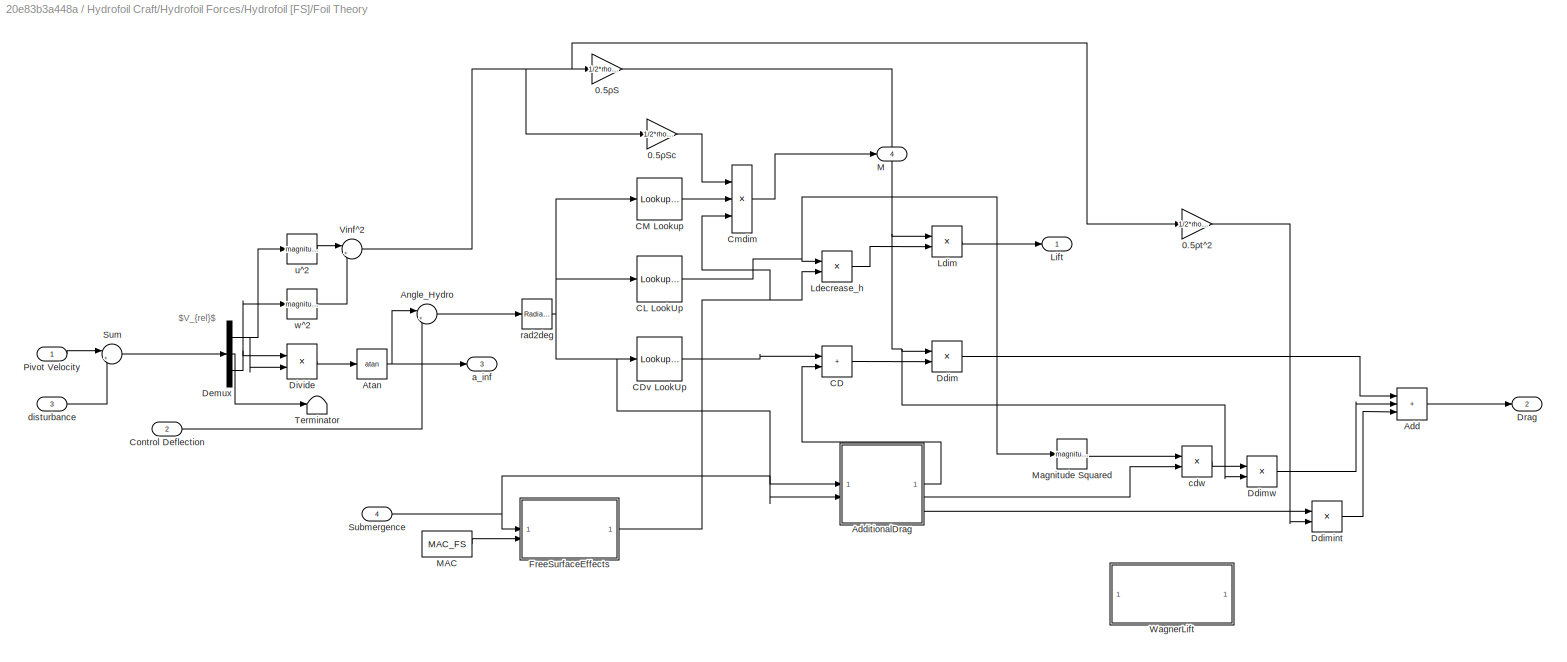
BLOCK [SubSystem] Hydrofoil Craft/Hydrofoil Forces/Hydrofoil [FS]/Foil Theory
BLOCK [Gain] Hydrofoil Craft/Hydrofoil Forces/Hydrofoil [FS]/Foil Theory/0.5ρS
  Gain = 1/2*rho*AfoilFP
BLOCK [Gain] Hydrofoil Craft/Hydrofoil Forces/Hydrofoil [FS]/Foil Theory/0.5ρSc
  Gain = 1/2*rho*AfoilFS*MAC_FS
BLOCK [Gain] Hydrofoil Craft/Hydrofoil Forces/Hydrofoil [FS]/Foil Theory/0.5ρt^2
  Gain = 1/2*rho*tFS^2
BLOCK [Sum] Hydrofoil Craft/Hydrofoil Forces/Hydrofoil [FS]/Foil Theory/Add
  IconShape = rectangular
  Inputs = +++
BLOCK [SubSystem] Hydrofoil Craft/Hydrofoil Forces/Hydrofoil [FS]/Foil Theory/AdditionalDrag
BLOCK [SubSystem] Hydrofoil Craft/Hydrofoil Forces/Hydrofoil [FS]/Foil Theory/AdditionalDrag/Additional Drag
  ErrorFcn = Stateflow.Translate.translate
  PermitHierarchicalResolution = ExplicitOnly
  SFBlockType = MATLAB Function
  TreatAsAtomicUnit = on
BLOCK [Demux] Hydrofoil Craft/Hydrofoil Forces/Hydrofoil [FS]/Foil Theory/AdditionalDrag/Additional Drag/ Demux 
  Outputs = 1
BLOCK [S-Function] Hydrofoil Craft/Hydrofoil Forces/Hydrofoil [FS]/Foil Theory/AdditionalDrag/Additional Drag/ SFunction 
  EnableBusSupport = on
  FunctionName = sf_sfun
  Parameters = usted
  PortCounts = [5 4]
  SFcnIsStateOwnerBlock = off
  SFunctionDeploymentMode = off
  Tag = Stateflow S-Function 13
BLOCK [Terminator] Hydrofoil Craft/Hydrofoil Forces/Hydrofoil [FS]/Foil Theory/AdditionalDrag/Additional Drag/ Terminator 
BLOCK [Inport] Hydrofoil Craft/Hydrofoil Forces/Hydrofoil [FS]/Foil Theory/AdditionalDrag/Additional Drag/c
  Port = 5
BLOCK [Inport] Hydrofoil Craft/Hydrofoil Forces/Hydrofoil [FS]/Foil Theory/AdditionalDrag/Additional Drag/cdind
BLOCK [Outport] Hydrofoil Craft/Hydrofoil Forces/Hydrofoil [FS]/Foil Theory/AdditionalDrag/Additional Drag/cdint
  Port = 3
BLOCK [Outport] Hydrofoil Craft/Hydrofoil Forces/Hydrofoil [FS]/Foil Theory/AdditionalDrag/Additional Drag/cdw
  Port = 2
BLOCK [Outport] Hydrofoil Craft/Hydrofoil Forces/Hydrofoil [FS]/Foil Theory/AdditionalDrag/Additional Drag/dinc
BLOCK [Inport] Hydrofoil Craft/Hydrofoil Forces/Hydrofoil [FS]/Foil Theory/AdditionalDrag/Additional Drag/hsub
  Port = 3
BLOCK [Inport] Hydrofoil Craft/Hydrofoil Forces/Hydrofoil [FS]/Foil Theory/AdditionalDrag/Additional Drag/span
  Port = 2
BLOCK [Inport] Hydrofoil Craft/Hydrofoil Forces/Hydrofoil [FS]/Foil Theory/AdditionalDrag/Additional Drag/t
  Port = 4
BLOCK [Inport] Hydrofoil Craft/Hydrofoil Forces/Hydrofoil [FS]/Foil Theory/AdditionalDrag/Angle
BLOCK [Lookup_n-D] Hydrofoil Craft/Hydrofoil Forces/Hydrofoil [FS]/Foil Theory/AdditionalDrag/CD induced
  BreakpointsForDimension1 = alpha63412wing
  InputPortMap = u0
  InternalRulePriority = Speed
  NumberOfTableDimensions = 1
  RndMeth = Simplest
  Table = cdi63412wing
BLOCK [Outport] Hydrofoil Craft/Hydrofoil Forces/Hydrofoil [FS]/Foil Theory/AdditionalDrag/Cdind
BLOCK [Constant] Hydrofoil Craft/Hydrofoil Forces/Hydrofoil [FS]/Foil Theory/AdditionalDrag/c
  Value = MAC_FS
BLOCK [Outport] Hydrofoil Craft/Hydrofoil Forces/Hydrofoil [FS]/Foil Theory/AdditionalDrag/cdw//cl2
  Port = 2
BLOCK [Inport] Hydrofoil Craft/Hydrofoil Forces/Hydrofoil [FS]/Foil Theory/AdditionalDrag/hsub
  Port = 2
BLOCK [Outport] Hydrofoil Craft/Hydrofoil Forces/Hydrofoil [FS]/Foil Theory/AdditionalDrag/int
  Port = 3
BLOCK [Constant] Hydrofoil Craft/Hydrofoil Forces/Hydrofoil [FS]/Foil Theory/AdditionalDrag/span
  Value = spanFS
BLOCK [Constant] Hydrofoil Craft/Hydrofoil Forces/Hydrofoil [FS]/Foil Theory/AdditionalDrag/t
  Value = tFS
BLOCK [Sum] Hydrofoil Craft/Hydrofoil Forces/Hydrofoil [FS]/Foil Theory/Angle_Hydro
  Inputs = |++
BLOCK [Trigonometry] Hydrofoil Craft/Hydrofoil Forces/Hydrofoil [FS]/Foil Theory/Atan
  Operator = atan
BLOCK [Sum] Hydrofoil Craft/Hydrofoil Forces/Hydrofoil [FS]/Foil Theory/CD
  IconShape = rectangular
BLOCK [Lookup_n-D] Hydrofoil Craft/Hydrofoil Forces/Hydrofoil [FS]/Foil Theory/CDv LookUp
  BreakpointsForDimension1 = alpha63412wing
  InputPortMap = u0
  InternalRulePriority = Speed
  NumberOfTableDimensions = 1
  RndMeth = Simplest
  Table = cdv63412wing
BLOCK [Lookup_n-D] Hydrofoil Craft/Hydrofoil Forces/Hydrofoil [FS]/Foil Theory/CL LookUp
  BreakpointsForDimension1 = alpha63412wing
  InputPortMap = u0
  InternalRulePriority = Speed
  NumberOfTableDimensions = 1
  RndMeth = Simplest
  Table = cl63412wing
BLOCK [Lookup_n-D] Hydrofoil Craft/Hydrofoil Forces/Hydrofoil [FS]/Foil Theory/CM Lookup
  BreakpointsForDimension1 = alpha63412wing
  InputPortMap = u0
  InternalRulePriority = Speed
  NumberOfTableDimensions = 1
  RndMeth = Simplest
  Table = cm63412wing
BLOCK [Product] Hydrofoil Craft/Hydrofoil Forces/Hydrofoil [FS]/Foil Theory/Cmdim
  Inputs = 3
BLOCK [Inport] Hydrofoil Craft/Hydrofoil Forces/Hydrofoil [FS]/Foil Theory/Control Deflection
  Port = 2
BLOCK [Product] Hydrofoil Craft/Hydrofoil Forces/Hydrofoil [FS]/Foil Theory/Ddim
BLOCK [Product] Hydrofoil Craft/Hydrofoil Forces/Hydrofoil [FS]/Foil Theory/Ddimint
BLOCK [Product] Hydrofoil Craft/Hydrofoil Forces/Hydrofoil [FS]/Foil Theory/Ddimw
BLOCK [Demux] Hydrofoil Craft/Hydrofoil Forces/Hydrofoil [FS]/Foil Theory/Demux
  Outputs = 3
BLOCK [Product] Hydrofoil Craft/Hydrofoil Forces/Hydrofoil [FS]/Foil Theory/Divide
  Inputs = */
BLOCK [Outport] Hydrofoil Craft/Hydrofoil Forces/Hydrofoil [FS]/Foil Theory/Drag
  Port = 2
BLOCK [SubSystem] Hydrofoil Craft/Hydrofoil Forces/Hydrofoil [FS]/Foil Theory/FreeSurfaceEffects
  ErrorFcn = Stateflow.Translate.translate
  PermitHierarchicalResolution = ExplicitOnly
  SFBlockType = MATLAB Function
  TreatAsAtomicUnit = on
BLOCK [Demux] Hydrofoil Craft/Hydrofoil Forces/Hydrofoil [FS]/Foil Theory/FreeSurfaceEffects/ Demux 
  Outputs = 1
BLOCK [S-Function] Hydrofoil Craft/Hydrofoil Forces/Hydrofoil [FS]/Foil Theory/FreeSurfaceEffects/ SFunction 
  EnableBusSupport = on
  FunctionName = sf_sfun
  PortCounts = [2 2]
  SFcnIsStateOwnerBlock = off
  SFunctionDeploymentMode = off
  Tag = Stateflow S-Function 15
BLOCK [Terminator] Hydrofoil Craft/Hydrofoil Forces/Hydrofoil [FS]/Foil Theory/FreeSurfaceEffects/ Terminator 
BLOCK [Outport] Hydrofoil Craft/Hydrofoil Forces/Hydrofoil [FS]/Foil Theory/FreeSurfaceEffects/Ldec
BLOCK [Inport] Hydrofoil Craft/Hydrofoil Forces/Hydrofoil [FS]/Foil Theory/FreeSurfaceEffects/MAC
  Port = 2
BLOCK [Inport] Hydrofoil Craft/Hydrofoil Forces/Hydrofoil [FS]/Foil Theory/FreeSurfaceEffects/h_sub
BLOCK [Product] Hydrofoil Craft/Hydrofoil Forces/Hydrofoil [FS]/Foil Theory/Ldecrease_h
BLOCK [Product] Hydrofoil Craft/Hydrofoil Forces/Hydrofoil [FS]/Foil Theory/Ldim
BLOCK [Outport] Hydrofoil Craft/Hydrofoil Forces/Hydrofoil [FS]/Foil Theory/Lift
BLOCK [Outport] Hydrofoil Craft/Hydrofoil Forces/Hydrofoil [FS]/Foil Theory/M
  Port = 4
BLOCK [Constant] Hydrofoil Craft/Hydrofoil Forces/Hydrofoil [FS]/Foil Theory/MAC
  Value = MAC_FS
BLOCK [Math] Hydrofoil Craft/Hydrofoil Forces/Hydrofoil [FS]/Foil Theory/Magnitude Squared
  Operator = magnitude^2
BLOCK [Inport] Hydrofoil Craft/Hydrofoil Forces/Hydrofoil [FS]/Foil Theory/Pivot Velocity
BLOCK [Inport] Hydrofoil Craft/Hydrofoil Forces/Hydrofoil [FS]/Foil Theory/Submergence
  Port = 4
BLOCK [Sum] Hydrofoil Craft/Hydrofoil Forces/Hydrofoil [FS]/Foil Theory/Sum
  Inputs = |+-
BLOCK [Terminator] Hydrofoil Craft/Hydrofoil Forces/Hydrofoil [FS]/Foil Theory/Terminator
BLOCK [Sum] Hydrofoil Craft/Hydrofoil Forces/Hydrofoil [FS]/Foil Theory/Vinf^2
  Inputs = |++
BLOCK [SubSystem] Hydrofoil Craft/Hydrofoil Forces/Hydrofoil [FS]/Foil Theory/WagnerLift
  Commented = on
BLOCK [Sum] Hydrofoil Craft/Hydrofoil Forces/Hydrofoil [FS]/Foil Theory/WagnerLift/Add
  IconShape = rectangular
  Inputs = +++
BLOCK [Inport] Hydrofoil Craft/Hydrofoil Forces/Hydrofoil [FS]/Foil Theory/WagnerLift/AoA Input
BLOCK [Outport] Hydrofoil Craft/Hydrofoil Forces/Hydrofoil [FS]/Foil Theory/WagnerLift/DynOut
BLOCK [Gain] Hydrofoil Craft/Hydrofoil Forces/Hydrofoil [FS]/Foil Theory/WagnerLift/Gain
  Gain = 0.5
BLOCK [TransferFcn] Hydrofoil Craft/Hydrofoil Forces/Hydrofoil [FS]/Foil Theory/WagnerLift/wagn1
  Denominator = [1 wage1]
  Numerator = [wagC1*wage1]
BLOCK [TransferFcn] Hydrofoil Craft/Hydrofoil Forces/Hydrofoil [FS]/Foil Theory/WagnerLift/wagn2
  Denominator = [1 wage2]
  Numerator = [wagC2*wage2]
BLOCK [Outport] Hydrofoil Craft/Hydrofoil Forces/Hydrofoil [FS]/Foil Theory/a_inf
  Port = 3
BLOCK [Product] Hydrofoil Craft/Hydrofoil Forces/Hydrofoil [FS]/Foil Theory/cdw
BLOCK [Inport] Hydrofoil Craft/Hydrofoil Forces/Hydrofoil [FS]/Foil Theory/disturbance
  Port = 3
BLOCK [Reference] Hydrofoil Craft/Hydrofoil Forces/Hydrofoil [FS]/Foil Theory/rad2deg  REF=simulink_extras/Transformations/Radians
to Degrees
  SourceBlock = simulink_extras/Transformations/Radians\nto Degrees
  SourceType = RadiansToDegrees
BLOCK [Math] Hydrofoil Craft/Hydrofoil Forces/Hydrofoil [FS]/Foil Theory/u^2
  Operator = magnitude^2
BLOCK [Math] Hydrofoil Craft/Hydrofoil Forces/Hydrofoil [FS]/Foil Theory/w^2
  Operator = magnitude^2
BLOCK [Sum] Hydrofoil Craft/Hydrofoil Forces/Hydrofoil [FS]/FoilNED
  Inputs = |++
BLOCK [Outport] Hydrofoil Craft/Hydrofoil Forces/Hydrofoil [FS]/Force - Moment
BLOCK [SubSystem] Hydrofoil Craft/Hydrofoil Forces/Hydrofoil [FS]/Force and Moment Calculation
  ErrorFcn = Stateflow.Translate.translate
  LibrarySourceBlock = simulink/User-Defined\nFunctions/MATLAB Function
  PermitHierarchicalResolution = ExplicitOnly
  SFBlockType = MATLAB Function
  TreatAsAtomicUnit = on
BLOCK [Demux] Hydrofoil Craft/Hydrofoil Forces/Hydrofoil [FS]/Force and Moment Calculation/ Demux 
  Outputs = 1
BLOCK [S-Function] Hydrofoil Craft/Hydrofoil Forces/Hydrofoil [FS]/Force and Moment Calculation/ SFunction 
  EnableBusSupport = on
  FunctionName = sf_sfun
  PortCounts = [4 7]
  SFcnIsStateOwnerBlock = off
  SFunctionDeploymentMode = off
  Tag = Stateflow S-Function 18
BLOCK [Terminator] Hydrofoil Craft/Hydrofoil Forces/Hydrofoil [FS]/Force and Moment Calculation/ Terminator 
BLOCK [Inport] Hydrofoil Craft/Hydrofoil Forces/Hydrofoil [FS]/Force and Moment Calculation/D
  Port = 2
BLOCK [Outport] Hydrofoil Craft/Hydrofoil Forces/Hydrofoil [FS]/Force and Moment Calculation/FX
BLOCK [Outport] Hydrofoil Craft/Hydrofoil Forces/Hydrofoil [FS]/Force and Moment Calculation/FY
  Port = 2
BLOCK [Outport] Hydrofoil Craft/Hydrofoil Forces/Hydrofoil [FS]/Force and Moment Calculation/FZ
  Port = 3
BLOCK [Inport] Hydrofoil Craft/Hydrofoil Forces/Hydrofoil [FS]/Force and Moment Calculation/L
BLOCK [Outport] Hydrofoil Craft/Hydrofoil Forces/Hydrofoil [FS]/Force and Moment Calculation/MX
  Port = 4
BLOCK [Outport] Hydrofoil Craft/Hydrofoil Forces/Hydrofoil [FS]/Force and Moment Calculation/MY
  Port = 5
BLOCK [Outport] Hydrofoil Craft/Hydrofoil Forces/Hydrofoil [FS]/Force and Moment Calculation/MZ
  Port = 6
BLOCK [Inport] Hydrofoil Craft/Hydrofoil Forces/Hydrofoil [FS]/Force and Moment Calculation/Marm
  Port = 4
BLOCK [Inport] Hydrofoil Craft/Hydrofoil Forces/Hydrofoil [FS]/Force and Moment Calculation/ainf
  Port = 3
BLOCK [Product] Hydrofoil Craft/Hydrofoil Forces/Hydrofoil [FS]/Matrix Multiply
  Multiplication = Matrix(*)
BLOCK [Product] Hydrofoil Craft/Hydrofoil Forces/Hydrofoil [FS]/Matrix Multiply1
  Multiplication = Matrix(*)
BLOCK [Mux] Hydrofoil Craft/Hydrofoil Forces/Hydrofoil [FS]/Mux
  DisplayOption = bar
  Inputs = 3
BLOCK [Mux] Hydrofoil Craft/Hydrofoil Forces/Hydrofoil [FS]/Mux1
  DisplayOption = bar
  Inputs = 6
BLOCK [Mux] Hydrofoil Craft/Hydrofoil Forces/Hydrofoil [FS]/Mux2
  DisplayOption = bar
  Inputs = 3
BLOCK [Reference] Hydrofoil Craft/Hydrofoil Forces/Hydrofoil [FS]/NED2BF  REF=mssSimulink/Modelling/Kinematics/Euler angles to
inverse rotation
matrix
  SourceBlock = mssSimulink/Modelling/Kinematics/Euler angles to\ninverse rotation\nmatrix
  SourceType = Rbn
BLOCK [Inport] Hydrofoil Craft/Hydrofoil Forces/Hydrofoil [FS]/NEDpos
  Port = 3
BLOCK [Product] Hydrofoil Craft/Hydrofoil Forces/Hydrofoil [FS]/Product
BLOCK [SubSystem] Hydrofoil Craft/Hydrofoil Forces/Hydrofoil [FS]/STRUT FP
BLOCK [Lookup_n-D] Hydrofoil Craft/Hydrofoil Forces/Hydrofoil [FS]/STRUT FP/CD strut
  BreakpointsForDimension1 = alpha0012
  InputPortMap = u0
  InternalRulePriority = Speed
  NumberOfTableDimensions = 1
  RndMeth = Simplest
  Table = cd0012
BLOCK [Product] Hydrofoil Craft/Hydrofoil Forces/Hydrofoil [FS]/STRUT FP/Ddim
  Inputs = 3
BLOCK [Gain] Hydrofoil Craft/Hydrofoil Forces/Hydrofoil [FS]/STRUT FP/Gain
  Gain = 0.5*rho*csF
BLOCK [Gain] Hydrofoil Craft/Hydrofoil Forces/Hydrofoil [FS]/STRUT FP/Gain1
  Gain = 0.5
BLOCK [Outport] Hydrofoil Craft/Hydrofoil Forces/Hydrofoil [FS]/STRUT FP/K
  Port = 2
BLOCK [Outport] Hydrofoil Craft/Hydrofoil Forces/Hydrofoil [FS]/STRUT FP/M
  Port = 3
BLOCK [Math] Hydrofoil Craft/Hydrofoil Forces/Hydrofoil [FS]/STRUT FP/Magnitude Squared
  Operator = magnitude^2
BLOCK [Product] Hydrofoil Craft/Hydrofoil Forces/Hydrofoil [FS]/STRUT FP/Mpitch
BLOCK [Selector] Hydrofoil Craft/Hydrofoil Forces/Hydrofoil [FS]/STRUT FP/Selector
  IndexOptions = Index vector (dialog)
  Indices = [1]
  InputPortWidth = 3
  OutputSizes = 1
BLOCK [Selector] Hydrofoil Craft/Hydrofoil Forces/Hydrofoil [FS]/STRUT FP/Selector1
  IndexOptions = Index vector (dialog)
  Indices = [3]
  InputPortWidth = 3
  OutputSizes = 1
BLOCK [Sum] Hydrofoil Craft/Hydrofoil Forces/Hydrofoil [FS]/STRUT FP/Sum
  Inputs = |-+
BLOCK [Outport] Hydrofoil Craft/Hydrofoil Forces/Hydrofoil [FS]/STRUT FP/X
BLOCK [Constant] Hydrofoil Craft/Hydrofoil Forces/Hydrofoil [FS]/STRUT FP/a
  Value = 0
BLOCK [Constant] Hydrofoil Craft/Hydrofoil Forces/Hydrofoil [FS]/STRUT FP/a1
  Value = csF
BLOCK [Gain] Hydrofoil Craft/Hydrofoil Forces/Hydrofoil [FS]/STRUT FP/flip
  Gain = -1
BLOCK [Inport] Hydrofoil Craft/Hydrofoil Forces/Hydrofoil [FS]/STRUT FP/h_sub
BLOCK [SubSystem] Hydrofoil Craft/Hydrofoil Forces/Hydrofoil [FS]/STRUT FP/lateralDamp
  ErrorFcn = Stateflow.Translate.translate
  PermitHierarchicalResolution = ExplicitOnly
  SFBlockType = MATLAB Function
  TreatAsAtomicUnit = on
BLOCK [Demux] Hydrofoil Craft/Hydrofoil Forces/Hydrofoil [FS]/STRUT FP/lateralDamp/ Demux 
  Outputs = 1
BLOCK [S-Function] Hydrofoil Craft/Hydrofoil Forces/Hydrofoil [FS]/STRUT FP/lateralDamp/ SFunction 
  EnableBusSupport = on
  FunctionName = sf_sfun
  Parameters = rho
  PortCounts = [5 2]
  SFcnIsStateOwnerBlock = off
  SFunctionDeploymentMode = off
  Tag = Stateflow S-Function 19
BLOCK [Terminator] Hydrofoil Craft/Hydrofoil Forces/Hydrofoil [FS]/STRUT FP/lateralDamp/ Terminator 
BLOCK [Inport] Hydrofoil Craft/Hydrofoil Forces/Hydrofoil [FS]/STRUT FP/lateralDamp/V
  Port = 3
BLOCK [Inport] Hydrofoil Craft/Hydrofoil Forces/Hydrofoil [FS]/STRUT FP/lateralDamp/cs
  Port = 5
BLOCK [Inport] Hydrofoil Craft/Hydrofoil Forces/Hydrofoil [FS]/STRUT FP/lateralDamp/h_sub
BLOCK [Inport] Hydrofoil Craft/Hydrofoil Forces/Hydrofoil [FS]/STRUT FP/lateralDamp/p
  Port = 4
BLOCK [Outport] Hydrofoil Craft/Hydrofoil Forces/Hydrofoil [FS]/STRUT FP/lateralDamp/strutK
BLOCK [Inport] Hydrofoil Craft/Hydrofoil Forces/Hydrofoil [FS]/STRUT FP/lateralDamp/zs
  Port = 2
BLOCK [Inport] Hydrofoil Craft/Hydrofoil Forces/Hydrofoil [FS]/STRUT FP/lz
  Port = 3
BLOCK [Inport] Hydrofoil Craft/Hydrofoil Forces/Hydrofoil [FS]/STRUT FP/p
  Port = 4
BLOCK [Inport] Hydrofoil Craft/Hydrofoil Forces/Hydrofoil [FS]/STRUT FP/vel
  Port = 2
BLOCK [Selector] Hydrofoil Craft/Hydrofoil Forces/Hydrofoil [FS]/Selector
  IndexOptions = Index vector (dialog)
  Indices = [3]
  InputPortWidth = 3
  NameLocation = right
  OutputSizes = 1
BLOCK [Sum] Hydrofoil Craft/Hydrofoil Forces/Hydrofoil [FS]/Sum
  Inputs = |++
BLOCK [Reference] Hydrofoil Craft/Hydrofoil Forces/Hydrofoil [FS]/Wave velocitycalc  REF=mssSimulink/Environment/Waves/Wave velocitycalc
  SourceBlock = mssSimulink/Environment/Waves/Wave velocitycalc
  SourceType = Wave velocitycalc
BLOCK [Inport] Hydrofoil Craft/Hydrofoil Forces/Hydrofoil [FS]/[p q r]
  Port = 2
BLOCK [Inport] Hydrofoil Craft/Hydrofoil Forces/Hydrofoil [FS]/[u v w]
BLOCK [Inport] Hydrofoil Craft/Hydrofoil Forces/Hydrofoil [FS]/euler_angles
  Port = 4
BLOCK [Selector] Hydrofoil Craft/Hydrofoil Forces/Hydrofoil [FS]/rollrate
  IndexOptions = Index vector (dialog)
  Indices = [1]
  InputPortWidth = 3
  OutputSizes = 1
BLOCK [Selector] Hydrofoil Craft/Hydrofoil Forces/Hydrofoil [FS]/u
  IndexOptions = Index vector (dialog)
  Indices = [1]
  InputPortWidth = 3
  OutputSizes = 1
BLOCK [Sum] Hydrofoil Craft/Hydrofoil Forces/Hydrofoil [FS]/wave_elev_sub
  Inputs = |++
  NameLocation = left
BLOCK [Inport] Hydrofoil Craft/Hydrofoil Forces/Hydrofoil [FS]/waves
  Port = 6
BLOCK [Inport] Hydrofoil Craft/Hydrofoil Forces/NEDpos
  Port = 6
BLOCK [Reference] Hydrofoil Craft/Hydrofoil Forces/Waves  REF=mssSimulink/Environment/Waves/Waves
  SourceBlock = mssSimulink/Environment/Waves/Waves
  SourceType = Waves
BLOCK [Inport] Hydrofoil Craft/Hydrofoil Forces/[p q r]
  Port = 2
BLOCK [Inport] Hydrofoil Craft/Hydrofoil Forces/[u v w]
BLOCK [Inport] Hydrofoil Craft/Hydrofoil Forces/euler_angles
  Port = 7
BLOCK [SubSystem] Hydrofoil Craft/Kinematics Equations
  ErrorFcn = Stateflow.Translate.translate
  LibrarySourceBlock = simulink/User-Defined\nFunctions/MATLAB Function
  PermitHierarchicalResolution = ExplicitOnly
  SFBlockType = MATLAB Function
  TreatAsAtomicUnit = on
BLOCK [Demux] Hydrofoil Craft/Kinematics Equations/ Demux 
  Outputs = 1
BLOCK [S-Function] Hydrofoil Craft/Kinematics Equations/ SFunction 
  EnableBusSupport = on
  FunctionName = sf_sfun
  PortCounts = [3 3]
  SFcnIsStateOwnerBlock = off
  SFunctionDeploymentMode = off
  Tag = Stateflow S-Function 12
BLOCK [Terminator] Hydrofoil Craft/Kinematics Equations/ Terminator 
BLOCK [Outport] Hydrofoil Craft/Kinematics Equations/euler_ang_rates
  Port = 2
BLOCK [Inport] Hydrofoil Craft/Kinematics Equations/euler_angles
BLOCK [Outport] Hydrofoil Craft/Kinematics Equations/pos_rates
BLOCK [Inport] Hydrofoil Craft/Kinematics Equations/pqr
  Port = 3
BLOCK [Inport] Hydrofoil Craft/Kinematics Equations/uvw
  Port = 2
BLOCK [Mux] Hydrofoil Craft/Mux1
  DisplayOption = bar
  Inputs = 3
BLOCK [Mux] Hydrofoil Craft/Mux2
  DisplayOption = bar
  Inputs = 3
BLOCK [Mux] Hydrofoil Craft/Mux3
  DisplayOption = bar
  Inputs = 2
BLOCK [Mux] Hydrofoil Craft/Mux4
  DisplayOption = bar
  Inputs = 3
BLOCK [SubSystem] Hydrofoil Craft/Propeller Forces1
BLOCK [Gain] Hydrofoil Craft/Propeller Forces1/Gain
  Gain = 1/60
BLOCK [Mux] Hydrofoil Craft/Propeller Forces1/Mux
  DisplayOption = bar
  Inputs = 6
BLOCK [Reference] Hydrofoil Craft/Propeller Forces1/Open-water propeller characteristics  REF=mssSimulink/Modelling/Propulsion/Open-water propeller
characteristics
  SourceBlock = mssSimulink/Modelling/Propulsion/Open-water propeller\ncharacteristics
  SourceType = Open-water propeller characteristics
BLOCK [Product] Hydrofoil Craft/Propeller Forces1/Product
BLOCK [Product] Hydrofoil Craft/Propeller Forces1/Product1
BLOCK [Constant] Hydrofoil Craft/Propeller Forces1/Propeller Arm
  Value = zpr
BLOCK [Selector] Hydrofoil Craft/Propeller Forces1/Selector
  IndexOptions = Index vector (dialog)
  Indices = [1]
  InputPortWidth = 3
  OutputSizes = 1
BLOCK [Outport] Hydrofoil Craft/Propeller Forces1/prop_tau
BLOCK [Inport] Hydrofoil Craft/Propeller Forces1/rpm
BLOCK [Inport] Hydrofoil Craft/Propeller Forces1/uvw
  Port = 2
BLOCK [Constant] Hydrofoil Craft/Propeller Forces1/wake
  Value = 1-propwake
BLOCK [Constant] Hydrofoil Craft/constU
  Value = usted
BLOCK [Constant] Hydrofoil Craft/constYAW
  Value = 0
BLOCK [Outport] Hydrofoil Craft/euler_angles
  Port = 2
BLOCK [Integrator] Hydrofoil Craft/int_EUL-ANG
  InitialCondition = [0;0;0]
BLOCK [Integrator] Hydrofoil Craft/int_POS
  InitialCondition = [0;0;-0.3]
BLOCK [Integrator] Hydrofoil Craft/int_RATES
  InitialCondition = [usted;0;0;0;0;0]
BLOCK [Outport] Hydrofoil Craft/pos
BLOCK [Outport] Hydrofoil Craft/pqr
  Port = 4
BLOCK [Inport] Hydrofoil Craft/rpm
BLOCK [Outport] Hydrofoil Craft/uvw
  Port = 3
BLOCK [Mux] Mux
  DisplayOption = bar
  Inputs = 6
  NameLocation = right
BLOCK [SubSystem] Puls1
  Commented = on
BLOCK [Sum] Puls1/Add1
  IconShape = rectangular
BLOCK [Outport] Puls1/AoA 3
BLOCK [Inport] Puls1/In1
BLOCK [Step] Puls1/Step1
  After = 0.05
  SampleTime = 0
BLOCK [Step] Puls1/Step2
  After = -0.05
  SampleTime = 0
  Time = 1.1
BLOCK [Sum] Puls1/Sum1
  Inputs = |++
BLOCK [SubSystem] Pulse
  Commented = on
BLOCK [Sum] Pulse/Add1
  IconShape = rectangular
BLOCK [Outport] Pulse/AoA 3
BLOCK [Inport] Pulse/In1
BLOCK [Step] Pulse/Step1
  SampleTime = 0
  Time = 0
BLOCK [Step] Pulse/Step2
  After = -1
  SampleTime = 0
  Time = 0.1
BLOCK [Sum] Pulse/Sum1
  Inputs = |++
BLOCK [Record] Record
  FileSettingsInternal = {"entries":[{"content":{"excelSettings":{"content":{},"type":"Streamout.ExcelSettings"}},"type":"Streamout.FileSettingStorage","uuid":""}],"packageUris":["http:\/\/schema.mathworks.com\/mf0\/streamout_blocks\/R2020a"],"version":"1.0"}
  Layout = [1 1]
  SignalsInternal = {"entries":[{"content":{"signals":[{"content":{"blockPath":[],"dimensions":[6],"domain":"","hasChildren":true,"lineColor":"#fe330a","lineWidth":2,"port":1,"signalID":1,"signalName":"Mux"},"type":"RecordBlkView.Signal","uuid":""},{"content":{"blockPath":[],"channel":[1],"dimensions":[6],"domain":"","lineColor":"#ff6929","lineWidth":2,"parentID":1,"plots":[ 1, 27 ],"port":1,"signalID":2,"signalName"...<+1264ch>
  VisualizationBindings = {"sparklinesplugin":{"info":[{"bindingParametersList":[],"subplotID":1}]}}
BLOCK [Scope] Scope
  Floating = off
  NumInputPorts = 2
  ScopeSpecificationString = Simulink.scopes.TimeScopeBlockCfg('CurrentConfiguration', extmgr.ConfigurationSet(extmgr.Configuration('Core','General UI',true),extmgr.Configuration('Core','Source UI',true),extmgr.Configuration('Sources','WiredSimulink',true,'DataLoggingVariableName','ScopeData1'),extmgr.Configuration('Visuals','Time Domain',true,'SerializedDisplays',{struct('MinYLimReal','-2.76215','MaxYLimReal','21.85938','YLa...<+2162ch>
BLOCK [Constant] ctrlUtrim
  Commented = on
  Value = [0.0574;0.0574;0.052049]
BLOCK [Constant] ctrlUtrim1
  Commented = on
  Value = [0.0574;0.0574;0.052049]
BLOCK [Outport] p
  Port = 5
BLOCK [Outport] phi
  Port = 2
BLOCK [Outport] q
  Port = 6
BLOCK [Inport] rpm
  Port = 4
BLOCK [SubSystem] sinecontrol
  Commented = on
BLOCK [Outport] sinecontrol/AoA
BLOCK [Clock] sinecontrol/Clock
BLOCK [Product] sinecontrol/Product
BLOCK [Sin] sinecontrol/Sine Wave Function
  Amplitude = 0.0523599*1.5
  Frequency = 4*pi
  SampleTime = 0
  TimeSource = Use external signal
BLOCK [Sum] sinecontrol/Sum
  Inputs = |++
BLOCK [Inport] sinecontrol/ac
BLOCK [Step] sinecontrol/on
  SampleTime = 0
  Time = 0
BLOCK [SubSystem] sinecontrol1
  Commented = on
BLOCK [Outport] sinecontrol1/AoA
BLOCK [Clock] sinecontrol1/Clock
BLOCK [Product] sinecontrol1/Product
BLOCK [Sin] sinecontrol1/Sine Wave Function
  Amplitude = 0.0523599
  Frequency = 4*pi()
  SampleTime = 0
  TimeSource = Use external signal
BLOCK [Sum] sinecontrol1/Sum
  Inputs = |++
BLOCK [Inport] sinecontrol1/ac
BLOCK [Step] sinecontrol1/on
  SampleTime = 0
  Time = 0
BLOCK [SubSystem] sinecontrol2
  Commented = on
BLOCK [Outport] sinecontrol2/AoA
BLOCK [Clock] sinecontrol2/Clock
BLOCK [Product] sinecontrol2/Product
BLOCK [Sin] sinecontrol2/Sine Wave Function
  Amplitude = 0.0523599
  Frequency = 4*pi()
  SampleTime = 0
  TimeSource = Use external signal
BLOCK [Sum] sinecontrol2/Sum
  Inputs = |++
BLOCK [Inport] sinecontrol2/ac
BLOCK [Step] sinecontrol2/on
  SampleTime = 0
  Time = 0
BLOCK [Outport] theta
  Port = 3
BLOCK [Outport] w
  Port = 4
BLOCK [Outport] z
ANNOTATION Hydrofoil Craft: $\nu = [u, v, w, p, q, r]$
ANNOTATION Hydrofoil Craft: $\dot{\nu} = M_{RB}^{-1}\left(-C_{RB}(\nu)\nu+\tau\right)$
ANNOTATION Hydrofoil Craft: u, w for now
ANNOTATION Hydrofoil Craft/EOM: $-C_{RB}(\nu)\nu+\tau$
ANNOTATION Hydrofoil Craft/EOM: $M_{RB}^{-1}$
ANNOTATION Hydrofoil Craft/EOM: $M_{RB}^{-1}\left(-C_{RB}(\nu)\nu+\tau\right)$
ANNOTATION Hydrofoil Craft/EOM: Rigid Body Coriolis - Centripetal Matrix
ANNOTATION Hydrofoil Craft/Hydrofoil Forces/Hydrofoil [A]: It is important to note, that by a 2D study, sideslip is NOT taken into account. Calcualting Vinf with respect to v, will result into LARGE X forces due to side forces translating only to 2D L and D
ANNOTATION Hydrofoil Craft/Hydrofoil Forces/Hydrofoil [A]/Foil Theory: $V_{rel}$
ANNOTATION Hydrofoil Craft/Hydrofoil Forces/Hydrofoil [FP]: It is important to note, that by a 2D study, sideslip is NOT taken into account. Calcualting Vinf with respect to v, will result into LARGE X forces due to side forces translating only to 2D L and D
ANNOTATION Hydrofoil Craft/Hydrofoil Forces/Hydrofoil [FP]/Foil Theory: $V_{rel}$
ANNOTATION Hydrofoil Craft/Hydrofoil Forces/Hydrofoil [FS]: It is important to note, that by a 2D study, sideslip is NOT taken into account. Calcualting Vinf with respect to v, will result into LARGE X forces due to side forces translating only to 2D L and D
ANNOTATION Hydrofoil Craft/Hydrofoil Forces/Hydrofoil [FS]/Foil Theory: $V_{rel}$
LINE AoA_1:1 -> Hydrofoil Craft:4
LINE AoA_2:1 -> Hydrofoil Craft:5
LINE AoA_3:1 -> Hydrofoil Craft:6
NET Demux1:3 -> Mux:4, w:1
NET Demux2:1 -> Mux:5, p:1
NET Demux2:2 -> Mux:6, q:1
NET Demux3:3 -> Mux:1, Scope:1, z:1
LINE Demux4:1 -> sinecontrol2:1
LINE Demux4:2 -> sinecontrol1:1
LINE Demux4:3 -> sinecontrol:1
NET Demux:1 -> Mux:2, phi:1
NET Demux:2 -> Mux:3, Scope:2, theta:1
LINE Hydrofoil Craft/AoA 1:1 -> Hydrofoil Craft/Hydrofoil Forces:3
LINE Hydrofoil Craft/AoA 2:1 -> Hydrofoil Craft/Hydrofoil Forces:4
LINE Hydrofoil Craft/AoA 3:1 -> Hydrofoil Craft/Hydrofoil Forces:5
NET Hydrofoil Craft/BF Angular Rates:1 -> Hydrofoil Craft/Hydrofoil Forces:2, Hydrofoil Craft/Mux3:2
NET Hydrofoil Craft/BF Velocity:1 -> Hydrofoil Craft/Hydrofoil Forces:1, Hydrofoil Craft/Mux3:1, Hydrofoil Craft/Propeller Forces1:2
LINE Hydrofoil Craft/Constant2:1 -> Hydrofoil Craft/Mux2:2
LINE Hydrofoil Craft/Constant3:1 -> Hydrofoil Craft/Mux1:3
LINE Hydrofoil Craft/Demux1:1 -> Hydrofoil Craft/Mux2:1
LINE Hydrofoil Craft/Demux1:3 -> Hydrofoil Craft/Mux2:3
LINE Hydrofoil Craft/Demux1:4 -> Hydrofoil Craft/Mux1:1
LINE Hydrofoil Craft/Demux1:5 -> Hydrofoil Craft/Mux1:2
LINE Hydrofoil Craft/Demux2:1 -> Hydrofoil Craft/Mux4:1
LINE Hydrofoil Craft/Demux2:2 -> Hydrofoil Craft/Mux4:2
LINE Hydrofoil Craft/EOM/Add3:1 -> Hydrofoil Craft/EOM/Product1:2
LINE Hydrofoil Craft/EOM/CRB MATRIX:1 -> Hydrofoil Craft/EOM/Product2:1
LINE Hydrofoil Craft/EOM/MRB INVERSE:1 -> Hydrofoil Craft/EOM/Product1:1
LINE Hydrofoil Craft/EOM/Product1:1 -> Hydrofoil Craft/EOM/nudot:1
LINE Hydrofoil Craft/EOM/Product2:1 -> Hydrofoil Craft/EOM/Add3:1
NET Hydrofoil Craft/EOM/nu:1 -> Hydrofoil Craft/EOM/CRB MATRIX:1, Hydrofoil Craft/EOM/Product2:2
LINE Hydrofoil Craft/EOM/tau:1 -> Hydrofoil Craft/EOM/Add3:2
LINE Hydrofoil Craft/EOM:1 -> Hydrofoil Craft/int_RATES:1
LINE Hydrofoil Craft/Force Sum:1 -> Hydrofoil Craft/EOM:2
LINE Hydrofoil Craft/Gravitational Forces:1 -> Hydrofoil Craft/Force Sum:3
LINE Hydrofoil Craft/Hydrofoil Forces/Add:1 -> Hydrofoil Craft/Hydrofoil Forces/FoilForce:1
LINE Hydrofoil Craft/Hydrofoil Forces/Angle A:1 -> Hydrofoil Craft/Hydrofoil Forces/Hydrofoil [A]:5
LINE Hydrofoil Craft/Hydrofoil Forces/Angle FP:1 -> Hydrofoil Craft/Hydrofoil Forces/Hydrofoil [FP]:5
LINE Hydrofoil Craft/Hydrofoil Forces/Angle FS:1 -> Hydrofoil Craft/Hydrofoil Forces/Hydrofoil [FS]:5
LINE Hydrofoil Craft/Hydrofoil Forces/Hydrofoil [A]/-0.5ρ2pi Ld,p:1 -> Hydrofoil Craft/Hydrofoil Forces/Hydrofoil [A]/Product:1
LINE Hydrofoil Craft/Hydrofoil Forces/Hydrofoil [A]/Add1:1 -> Hydrofoil Craft/Hydrofoil Forces/Hydrofoil [A]/Mux1:4
LINE Hydrofoil Craft/Hydrofoil Forces/Hydrofoil [A]/Add2:1 -> Hydrofoil Craft/Hydrofoil Forces/Hydrofoil [A]/Mux1:5
NET Hydrofoil Craft/Hydrofoil Forces/Hydrofoil [A]/Add:1 -> Hydrofoil Craft/Hydrofoil Forces/Hydrofoil [A]/Foil Theory:1, Hydrofoil Craft/Hydrofoil Forces/Hydrofoil [A]/u:1
LINE Hydrofoil Craft/Hydrofoil Forces/Hydrofoil [A]/BF2NED:1 -> Hydrofoil Craft/Hydrofoil Forces/Hydrofoil [A]/Matrix Multiply:1
NET Hydrofoil Craft/Hydrofoil Forces/Hydrofoil [A]/CP:1 -> Hydrofoil Craft/Hydrofoil Forces/Hydrofoil [A]/Mux2:1, Hydrofoil Craft/Hydrofoil Forces/Hydrofoil [A]/Mux:1
LINE Hydrofoil Craft/Hydrofoil Forces/Hydrofoil [A]/CP:2 -> Hydrofoil Craft/Hydrofoil Forces/Hydrofoil [A]/Mux:2
NET Hydrofoil Craft/Hydrofoil Forces/Hydrofoil [A]/CP:3 -> Hydrofoil Craft/Hydrofoil Forces/Hydrofoil [A]/Mux2:3, Hydrofoil Craft/Hydrofoil Forces/Hydrofoil [A]/Mux:3
NET Hydrofoil Craft/Hydrofoil Forces/Hydrofoil [A]/Constant:1 -> Hydrofoil Craft/Hydrofoil Forces/Hydrofoil [A]/Foil Theory:4, Hydrofoil Craft/Hydrofoil Forces/Hydrofoil [A]/STRUT FP:1
NET Hydrofoil Craft/Hydrofoil Forces/Hydrofoil [A]/Control Deflection (ac):1 -> Hydrofoil Craft/Hydrofoil Forces/Hydrofoil [A]/CP:1, Hydrofoil Craft/Hydrofoil Forces/Hydrofoil [A]/Foil Theory:2
LINE Hydrofoil Craft/Hydrofoil Forces/Hydrofoil [A]/Cross Product:1 -> Hydrofoil Craft/Hydrofoil Forces/Hydrofoil [A]/Add:2
NET Hydrofoil Craft/Hydrofoil Forces/Hydrofoil [A]/Foil Position:1 -> Hydrofoil Craft/Hydrofoil Forces/Hydrofoil [A]/CP:2, Hydrofoil Craft/Hydrofoil Forces/Hydrofoil [A]/STRUT FP:3
NET Hydrofoil Craft/Hydrofoil Forces/Hydrofoil [A]/Foil Theory/0.5ρS:1 -> Hydrofoil Craft/Hydrofoil Forces/Hydrofoil [A]/Foil Theory/Ddim:1, Hydrofoil Craft/Hydrofoil Forces/Hydrofoil [A]/Foil Theory/Ddimw:2, Hydrofoil Craft/Hydrofoil Forces/Hydrofoil [A]/Foil Theory/Ldim:1
LINE Hydrofoil Craft/Hydrofoil Forces/Hydrofoil [A]/Foil Theory/0.5ρSc:1 -> Hydrofoil Craft/Hydrofoil Forces/Hydrofoil [A]/Foil Theory/Cmdim:1
LINE Hydrofoil Craft/Hydrofoil Forces/Hydrofoil [A]/Foil Theory/0.5ρt^2:1 -> Hydrofoil Craft/Hydrofoil Forces/Hydrofoil [A]/Foil Theory/Ddimint:2
LINE Hydrofoil Craft/Hydrofoil Forces/Hydrofoil [A]/Foil Theory/Add:1 -> Hydrofoil Craft/Hydrofoil Forces/Hydrofoil [A]/Foil Theory/Drag:1
LINE Hydrofoil Craft/Hydrofoil Forces/Hydrofoil [A]/Foil Theory/AdditionalDrag/Additional Drag:1 -> Hydrofoil Craft/Hydrofoil Forces/Hydrofoil [A]/Foil Theory/AdditionalDrag/Cdind:1
LINE Hydrofoil Craft/Hydrofoil Forces/Hydrofoil [A]/Foil Theory/AdditionalDrag/Additional Drag:2 -> Hydrofoil Craft/Hydrofoil Forces/Hydrofoil [A]/Foil Theory/AdditionalDrag/cdw//cl2:1
LINE Hydrofoil Craft/Hydrofoil Forces/Hydrofoil [A]/Foil Theory/AdditionalDrag/Additional Drag:3 -> Hydrofoil Craft/Hydrofoil Forces/Hydrofoil [A]/Foil Theory/AdditionalDrag/int:1
LINE Hydrofoil Craft/Hydrofoil Forces/Hydrofoil [A]/Foil Theory/AdditionalDrag/Angle:1 -> Hydrofoil Craft/Hydrofoil Forces/Hydrofoil [A]/Foil Theory/AdditionalDrag/CD induced:1
LINE Hydrofoil Craft/Hydrofoil Forces/Hydrofoil [A]/Foil Theory/AdditionalDrag/CD induced:1 -> Hydrofoil Craft/Hydrofoil Forces/Hydrofoil [A]/Foil Theory/AdditionalDrag/Additional Drag:1
LINE Hydrofoil Craft/Hydrofoil Forces/Hydrofoil [A]/Foil Theory/AdditionalDrag/c:1 -> Hydrofoil Craft/Hydrofoil Forces/Hydrofoil [A]/Foil Theory/AdditionalDrag/Additional Drag:5
LINE Hydrofoil Craft/Hydrofoil Forces/Hydrofoil [A]/Foil Theory/AdditionalDrag/hsub:1 -> Hydrofoil Craft/Hydrofoil Forces/Hydrofoil [A]/Foil Theory/AdditionalDrag/Additional Drag:3
LINE Hydrofoil Craft/Hydrofoil Forces/Hydrofoil [A]/Foil Theory/AdditionalDrag/span:1 -> Hydrofoil Craft/Hydrofoil Forces/Hydrofoil [A]/Foil Theory/AdditionalDrag/Additional Drag:2
LINE Hydrofoil Craft/Hydrofoil Forces/Hydrofoil [A]/Foil Theory/AdditionalDrag/t:1 -> Hydrofoil Craft/Hydrofoil Forces/Hydrofoil [A]/Foil Theory/AdditionalDrag/Additional Drag:4
LINE Hydrofoil Craft/Hydrofoil Forces/Hydrofoil [A]/Foil Theory/AdditionalDrag:1 -> Hydrofoil Craft/Hydrofoil Forces/Hydrofoil [A]/Foil Theory/CD:2
LINE Hydrofoil Craft/Hydrofoil Forces/Hydrofoil [A]/Foil Theory/AdditionalDrag:2 -> Hydrofoil Craft/Hydrofoil Forces/Hydrofoil [A]/Foil Theory/cdw:2
LINE Hydrofoil Craft/Hydrofoil Forces/Hydrofoil [A]/Foil Theory/AdditionalDrag:3 -> Hydrofoil Craft/Hydrofoil Forces/Hydrofoil [A]/Foil Theory/Ddimint:1
LINE Hydrofoil Craft/Hydrofoil Forces/Hydrofoil [A]/Foil Theory/Angle_Hydro:1 -> Hydrofoil Craft/Hydrofoil Forces/Hydrofoil [A]/Foil Theory/rad2deg:1
NET Hydrofoil Craft/Hydrofoil Forces/Hydrofoil [A]/Foil Theory/Atan:1 -> Hydrofoil Craft/Hydrofoil Forces/Hydrofoil [A]/Foil Theory/Angle_Hydro:1, Hydrofoil Craft/Hydrofoil Forces/Hydrofoil [A]/Foil Theory/a_inf:1
LINE Hydrofoil Craft/Hydrofoil Forces/Hydrofoil [A]/Foil Theory/CD:1 -> Hydrofoil Craft/Hydrofoil Forces/Hydrofoil [A]/Foil Theory/Ddim:2
LINE Hydrofoil Craft/Hydrofoil Forces/Hydrofoil [A]/Foil Theory/CDv LookUp:1 -> Hydrofoil Craft/Hydrofoil Forces/Hydrofoil [A]/Foil Theory/CD:1
NET Hydrofoil Craft/Hydrofoil Forces/Hydrofoil [A]/Foil Theory/CL LookUp:1 -> Hydrofoil Craft/Hydrofoil Forces/Hydrofoil [A]/Foil Theory/Ldecrease_h:1, Hydrofoil Craft/Hydrofoil Forces/Hydrofoil [A]/Foil Theory/Magnitude Squared:1
LINE Hydrofoil Craft/Hydrofoil Forces/Hydrofoil [A]/Foil Theory/CM Lookup:1 -> Hydrofoil Craft/Hydrofoil Forces/Hydrofoil [A]/Foil Theory/Cmdim:2
LINE Hydrofoil Craft/Hydrofoil Forces/Hydrofoil [A]/Foil Theory/Cmdim:1 -> Hydrofoil Craft/Hydrofoil Forces/Hydrofoil [A]/Foil Theory/M:1
LINE Hydrofoil Craft/Hydrofoil Forces/Hydrofoil [A]/Foil Theory/Control Deflection:1 -> Hydrofoil Craft/Hydrofoil Forces/Hydrofoil [A]/Foil Theory/Angle_Hydro:2
LINE Hydrofoil Craft/Hydrofoil Forces/Hydrofoil [A]/Foil Theory/Ddim:1 -> Hydrofoil Craft/Hydrofoil Forces/Hydrofoil [A]/Foil Theory/Add:1
LINE Hydrofoil Craft/Hydrofoil Forces/Hydrofoil [A]/Foil Theory/Ddimint:1 -> Hydrofoil Craft/Hydrofoil Forces/Hydrofoil [A]/Foil Theory/Add:3
LINE Hydrofoil Craft/Hydrofoil Forces/Hydrofoil [A]/Foil Theory/Ddimw:1 -> Hydrofoil Craft/Hydrofoil Forces/Hydrofoil [A]/Foil Theory/Add:2
NET Hydrofoil Craft/Hydrofoil Forces/Hydrofoil [A]/Foil Theory/Demux:1 -> Hydrofoil Craft/Hydrofoil Forces/Hydrofoil [A]/Foil Theory/Divide:2, Hydrofoil Craft/Hydrofoil Forces/Hydrofoil [A]/Foil Theory/u^2:1
LINE Hydrofoil Craft/Hydrofoil Forces/Hydrofoil [A]/Foil Theory/Demux:2 -> Hydrofoil Craft/Hydrofoil Forces/Hydrofoil [A]/Foil Theory/Terminator:1
NET Hydrofoil Craft/Hydrofoil Forces/Hydrofoil [A]/Foil Theory/Demux:3 -> Hydrofoil Craft/Hydrofoil Forces/Hydrofoil [A]/Foil Theory/Divide:1, Hydrofoil Craft/Hydrofoil Forces/Hydrofoil [A]/Foil Theory/w^2:1
LINE Hydrofoil Craft/Hydrofoil Forces/Hydrofoil [A]/Foil Theory/Divide:1 -> Hydrofoil Craft/Hydrofoil Forces/Hydrofoil [A]/Foil Theory/Atan:1
NET Hydrofoil Craft/Hydrofoil Forces/Hydrofoil [A]/Foil Theory/FreeSurfaceEffects:1 -> Hydrofoil Craft/Hydrofoil Forces/Hydrofoil [A]/Foil Theory/Cmdim:3, Hydrofoil Craft/Hydrofoil Forces/Hydrofoil [A]/Foil Theory/Ldecrease_h:2
LINE Hydrofoil Craft/Hydrofoil Forces/Hydrofoil [A]/Foil Theory/Ldecrease_h:1 -> Hydrofoil Craft/Hydrofoil Forces/Hydrofoil [A]/Foil Theory/Ldim:2
LINE Hydrofoil Craft/Hydrofoil Forces/Hydrofoil [A]/Foil Theory/Ldim:1 -> Hydrofoil Craft/Hydrofoil Forces/Hydrofoil [A]/Foil Theory/Lift:1
LINE Hydrofoil Craft/Hydrofoil Forces/Hydrofoil [A]/Foil Theory/MAC:1 -> Hydrofoil Craft/Hydrofoil Forces/Hydrofoil [A]/Foil Theory/FreeSurfaceEffects:2
LINE Hydrofoil Craft/Hydrofoil Forces/Hydrofoil [A]/Foil Theory/Magnitude Squared:1 -> Hydrofoil Craft/Hydrofoil Forces/Hydrofoil [A]/Foil Theory/cdw:1
LINE Hydrofoil Craft/Hydrofoil Forces/Hydrofoil [A]/Foil Theory/Pivot Velocity:1 -> Hydrofoil Craft/Hydrofoil Forces/Hydrofoil [A]/Foil Theory/Sum:1
NET Hydrofoil Craft/Hydrofoil Forces/Hydrofoil [A]/Foil Theory/Submergence:1 -> Hydrofoil Craft/Hydrofoil Forces/Hydrofoil [A]/Foil Theory/AdditionalDrag:2, Hydrofoil Craft/Hydrofoil Forces/Hydrofoil [A]/Foil Theory/FreeSurfaceEffects:1
LINE Hydrofoil Craft/Hydrofoil Forces/Hydrofoil [A]/Foil Theory/Sum:1 -> Hydrofoil Craft/Hydrofoil Forces/Hydrofoil [A]/Foil Theory/Demux:1
NET Hydrofoil Craft/Hydrofoil Forces/Hydrofoil [A]/Foil Theory/Vinf^2:1 -> Hydrofoil Craft/Hydrofoil Forces/Hydrofoil [A]/Foil Theory/0.5ρS:1, Hydrofoil Craft/Hydrofoil Forces/Hydrofoil [A]/Foil Theory/0.5ρSc:1, Hydrofoil Craft/Hydrofoil Forces/Hydrofoil [A]/Foil Theory/0.5ρt^2:1
LINE Hydrofoil Craft/Hydrofoil Forces/Hydrofoil [A]/Foil Theory/cdw:1 -> Hydrofoil Craft/Hydrofoil Forces/Hydrofoil [A]/Foil Theory/Ddimw:1
LINE Hydrofoil Craft/Hydrofoil Forces/Hydrofoil [A]/Foil Theory/disturbance:1 -> Hydrofoil Craft/Hydrofoil Forces/Hydrofoil [A]/Foil Theory/Sum:2
NET Hydrofoil Craft/Hydrofoil Forces/Hydrofoil [A]/Foil Theory/rad2deg:1 -> Hydrofoil Craft/Hydrofoil Forces/Hydrofoil [A]/Foil Theory/AdditionalDrag:1, Hydrofoil Craft/Hydrofoil Forces/Hydrofoil [A]/Foil Theory/CDv LookUp:1, Hydrofoil Craft/Hydrofoil Forces/Hydrofoil [A]/Foil Theory/CL LookUp:1, Hydrofoil Craft/Hydrofoil Forces/Hydrofoil [A]/Foil Theory/CM Lookup:1
LINE Hydrofoil Craft/Hydrofoil Forces/Hydrofoil [A]/Foil Theory/u^2:1 -> Hydrofoil Craft/Hydrofoil Forces/Hydrofoil [A]/Foil Theory/Vinf^2:1
LINE Hydrofoil Craft/Hydrofoil Forces/Hydrofoil [A]/Foil Theory/w^2:1 -> Hydrofoil Craft/Hydrofoil Forces/Hydrofoil [A]/Foil Theory/Vinf^2:2
LINE Hydrofoil Craft/Hydrofoil Forces/Hydrofoil [A]/Foil Theory:1 -> Hydrofoil Craft/Hydrofoil Forces/Hydrofoil [A]/Force and Moment Calculation:1
LINE Hydrofoil Craft/Hydrofoil Forces/Hydrofoil [A]/Foil Theory:2 -> Hydrofoil Craft/Hydrofoil Forces/Hydrofoil [A]/Force and Moment Calculation:2
LINE Hydrofoil Craft/Hydrofoil Forces/Hydrofoil [A]/Foil Theory:3 -> Hydrofoil Craft/Hydrofoil Forces/Hydrofoil [A]/Force and Moment Calculation:3
LINE Hydrofoil Craft/Hydrofoil Forces/Hydrofoil [A]/Foil Theory:4 -> Hydrofoil Craft/Hydrofoil Forces/Hydrofoil [A]/Add2:3
NET Hydrofoil Craft/Hydrofoil Forces/Hydrofoil [A]/FoilNED:1 -> Hydrofoil Craft/Hydrofoil Forces/Hydrofoil [A]/Selector:1, Hydrofoil Craft/Hydrofoil Forces/Hydrofoil [A]/Wave velocitycalc:1
LINE Hydrofoil Craft/Hydrofoil Forces/Hydrofoil [A]/Force and Moment Calculation:1 -> Hydrofoil Craft/Hydrofoil Forces/Hydrofoil [A]/Sum:2
LINE Hydrofoil Craft/Hydrofoil Forces/Hydrofoil [A]/Force and Moment Calculation:2 -> Hydrofoil Craft/Hydrofoil Forces/Hydrofoil [A]/Mux1:2
LINE Hydrofoil Craft/Hydrofoil Forces/Hydrofoil [A]/Force and Moment Calculation:3 -> Hydrofoil Craft/Hydrofoil Forces/Hydrofoil [A]/Mux1:3
LINE Hydrofoil Craft/Hydrofoil Forces/Hydrofoil [A]/Force and Moment Calculation:4 -> Hydrofoil Craft/Hydrofoil Forces/Hydrofoil [A]/Add1:3
LINE Hydrofoil Craft/Hydrofoil Forces/Hydrofoil [A]/Force and Moment Calculation:5 -> Hydrofoil Craft/Hydrofoil Forces/Hydrofoil [A]/Add2:2
LINE Hydrofoil Craft/Hydrofoil Forces/Hydrofoil [A]/Force and Moment Calculation:6 -> Hydrofoil Craft/Hydrofoil Forces/Hydrofoil [A]/Mux1:6
LINE Hydrofoil Craft/Hydrofoil Forces/Hydrofoil [A]/Matrix Multiply1:1 -> Hydrofoil Craft/Hydrofoil Forces/Hydrofoil [A]/Foil Theory:3
LINE Hydrofoil Craft/Hydrofoil Forces/Hydrofoil [A]/Matrix Multiply:1 -> Hydrofoil Craft/Hydrofoil Forces/Hydrofoil [A]/FoilNED:1
LINE Hydrofoil Craft/Hydrofoil Forces/Hydrofoil [A]/Mux1:1 -> Hydrofoil Craft/Hydrofoil Forces/Hydrofoil [A]/Force - Moment:1
LINE Hydrofoil Craft/Hydrofoil Forces/Hydrofoil [A]/Mux2:1 -> Hydrofoil Craft/Hydrofoil Forces/Hydrofoil [A]/Cross Product:2
NET Hydrofoil Craft/Hydrofoil Forces/Hydrofoil [A]/Mux:1 -> Hydrofoil Craft/Hydrofoil Forces/Hydrofoil [A]/Force and Moment Calculation:4, Hydrofoil Craft/Hydrofoil Forces/Hydrofoil [A]/Matrix Multiply:2
LINE Hydrofoil Craft/Hydrofoil Forces/Hydrofoil [A]/NED2BF:1 -> Hydrofoil Craft/Hydrofoil Forces/Hydrofoil [A]/Matrix Multiply1:1
LINE Hydrofoil Craft/Hydrofoil Forces/Hydrofoil [A]/NEDpos:1 -> Hydrofoil Craft/Hydrofoil Forces/Hydrofoil [A]/FoilNED:2
LINE Hydrofoil Craft/Hydrofoil Forces/Hydrofoil [A]/Product:1 -> Hydrofoil Craft/Hydrofoil Forces/Hydrofoil [A]/Add1:1
LINE Hydrofoil Craft/Hydrofoil Forces/Hydrofoil [A]/STRUT FP/CD strut:1 -> Hydrofoil Craft/Hydrofoil Forces/Hydrofoil [A]/STRUT FP/Ddim:1
LINE Hydrofoil Craft/Hydrofoil Forces/Hydrofoil [A]/STRUT FP/Ddim:1 -> Hydrofoil Craft/Hydrofoil Forces/Hydrofoil [A]/STRUT FP/flip:1
LINE Hydrofoil Craft/Hydrofoil Forces/Hydrofoil [A]/STRUT FP/Gain1:1 -> Hydrofoil Craft/Hydrofoil Forces/Hydrofoil [A]/STRUT FP/Sum:1
LINE Hydrofoil Craft/Hydrofoil Forces/Hydrofoil [A]/STRUT FP/Gain:1 -> Hydrofoil Craft/Hydrofoil Forces/Hydrofoil [A]/STRUT FP/Ddim:2
LINE Hydrofoil Craft/Hydrofoil Forces/Hydrofoil [A]/STRUT FP/Magnitude Squared:1 -> Hydrofoil Craft/Hydrofoil Forces/Hydrofoil [A]/STRUT FP/Gain:1
LINE Hydrofoil Craft/Hydrofoil Forces/Hydrofoil [A]/STRUT FP/Mpitch:1 -> Hydrofoil Craft/Hydrofoil Forces/Hydrofoil [A]/STRUT FP/M:1
NET Hydrofoil Craft/Hydrofoil Forces/Hydrofoil [A]/STRUT FP/Selector1:1 -> Hydrofoil Craft/Hydrofoil Forces/Hydrofoil [A]/STRUT FP/Sum:2, Hydrofoil Craft/Hydrofoil Forces/Hydrofoil [A]/STRUT FP/lateralDamp:2
NET Hydrofoil Craft/Hydrofoil Forces/Hydrofoil [A]/STRUT FP/Selector:1 -> Hydrofoil Craft/Hydrofoil Forces/Hydrofoil [A]/STRUT FP/Magnitude Squared:1, Hydrofoil Craft/Hydrofoil Forces/Hydrofoil [A]/STRUT FP/lateralDamp:3
LINE Hydrofoil Craft/Hydrofoil Forces/Hydrofoil [A]/STRUT FP/Sum:1 -> Hydrofoil Craft/Hydrofoil Forces/Hydrofoil [A]/STRUT FP/Mpitch:2
LINE Hydrofoil Craft/Hydrofoil Forces/Hydrofoil [A]/STRUT FP/a1:1 -> Hydrofoil Craft/Hydrofoil Forces/Hydrofoil [A]/STRUT FP/lateralDamp:5
LINE Hydrofoil Craft/Hydrofoil Forces/Hydrofoil [A]/STRUT FP/a:1 -> Hydrofoil Craft/Hydrofoil Forces/Hydrofoil [A]/STRUT FP/CD strut:1
NET Hydrofoil Craft/Hydrofoil Forces/Hydrofoil [A]/STRUT FP/flip:1 -> Hydrofoil Craft/Hydrofoil Forces/Hydrofoil [A]/STRUT FP/Mpitch:1, Hydrofoil Craft/Hydrofoil Forces/Hydrofoil [A]/STRUT FP/X:1
NET Hydrofoil Craft/Hydrofoil Forces/Hydrofoil [A]/STRUT FP/h_sub:1 -> Hydrofoil Craft/Hydrofoil Forces/Hydrofoil [A]/STRUT FP/Ddim:3, Hydrofoil Craft/Hydrofoil Forces/Hydrofoil [A]/STRUT FP/Gain1:1, Hydrofoil Craft/Hydrofoil Forces/Hydrofoil [A]/STRUT FP/lateralDamp:1
LINE Hydrofoil Craft/Hydrofoil Forces/Hydrofoil [A]/STRUT FP/lateralDamp:1 -> Hydrofoil Craft/Hydrofoil Forces/Hydrofoil [A]/STRUT FP/K:1
LINE Hydrofoil Craft/Hydrofoil Forces/Hydrofoil [A]/STRUT FP/lz:1 -> Hydrofoil Craft/Hydrofoil Forces/Hydrofoil [A]/STRUT FP/Selector1:1
LINE Hydrofoil Craft/Hydrofoil Forces/Hydrofoil [A]/STRUT FP/p:1 -> Hydrofoil Craft/Hydrofoil Forces/Hydrofoil [A]/STRUT FP/lateralDamp:4
LINE Hydrofoil Craft/Hydrofoil Forces/Hydrofoil [A]/STRUT FP/vel:1 -> Hydrofoil Craft/Hydrofoil Forces/Hydrofoil [A]/STRUT FP/Selector:1
LINE Hydrofoil Craft/Hydrofoil Forces/Hydrofoil [A]/STRUT FP:1 -> Hydrofoil Craft/Hydrofoil Forces/Hydrofoil [A]/Sum:1
LINE Hydrofoil Craft/Hydrofoil Forces/Hydrofoil [A]/STRUT FP:2 -> Hydrofoil Craft/Hydrofoil Forces/Hydrofoil [A]/Add1:2
LINE Hydrofoil Craft/Hydrofoil Forces/Hydrofoil [A]/STRUT FP:3 -> Hydrofoil Craft/Hydrofoil Forces/Hydrofoil [A]/Add2:1
LINE Hydrofoil Craft/Hydrofoil Forces/Hydrofoil [A]/Selector:1 -> Hydrofoil Craft/Hydrofoil Forces/Hydrofoil [A]/wave_elev_sub:1
LINE Hydrofoil Craft/Hydrofoil Forces/Hydrofoil [A]/Sum:1 -> Hydrofoil Craft/Hydrofoil Forces/Hydrofoil [A]/Mux1:1
LINE Hydrofoil Craft/Hydrofoil Forces/Hydrofoil [A]/Wave velocitycalc:1 -> Hydrofoil Craft/Hydrofoil Forces/Hydrofoil [A]/wave_elev_sub:2
LINE Hydrofoil Craft/Hydrofoil Forces/Hydrofoil [A]/Wave velocitycalc:2 -> Hydrofoil Craft/Hydrofoil Forces/Hydrofoil [A]/Matrix Multiply1:2
NET Hydrofoil Craft/Hydrofoil Forces/Hydrofoil [A]/[p q r]:1 -> Hydrofoil Craft/Hydrofoil Forces/Hydrofoil [A]/Cross Product:1, Hydrofoil Craft/Hydrofoil Forces/Hydrofoil [A]/rollrate:1
NET Hydrofoil Craft/Hydrofoil Forces/Hydrofoil [A]/[u v w]:1 -> Hydrofoil Craft/Hydrofoil Forces/Hydrofoil [A]/Add:1, Hydrofoil Craft/Hydrofoil Forces/Hydrofoil [A]/STRUT FP:2
NET Hydrofoil Craft/Hydrofoil Forces/Hydrofoil [A]/euler_angles:1 -> Hydrofoil Craft/Hydrofoil Forces/Hydrofoil [A]/BF2NED:1, Hydrofoil Craft/Hydrofoil Forces/Hydrofoil [A]/NED2BF:1
NET Hydrofoil Craft/Hydrofoil Forces/Hydrofoil [A]/rollrate:1 -> Hydrofoil Craft/Hydrofoil Forces/Hydrofoil [A]/Product:2, Hydrofoil Craft/Hydrofoil Forces/Hydrofoil [A]/STRUT FP:4
LINE Hydrofoil Craft/Hydrofoil Forces/Hydrofoil [A]/u:1 -> Hydrofoil Craft/Hydrofoil Forces/Hydrofoil [A]/-0.5ρ2pi Ld,p:1
LINE Hydrofoil Craft/Hydrofoil Forces/Hydrofoil [A]/waves:1 -> Hydrofoil Craft/Hydrofoil Forces/Hydrofoil [A]/Wave velocitycalc:2
LINE Hydrofoil Craft/Hydrofoil Forces/Hydrofoil [A]:1 -> Hydrofoil Craft/Hydrofoil Forces/Add:2
LINE Hydrofoil Craft/Hydrofoil Forces/Hydrofoil [FP]/-0.5ρ2pi Ld,p:1 -> Hydrofoil Craft/Hydrofoil Forces/Hydrofoil [FP]/Product:1
LINE Hydrofoil Craft/Hydrofoil Forces/Hydrofoil [FP]/Add1:1 -> Hydrofoil Craft/Hydrofoil Forces/Hydrofoil [FP]/Mux1:4
LINE Hydrofoil Craft/Hydrofoil Forces/Hydrofoil [FP]/Add2:1 -> Hydrofoil Craft/Hydrofoil Forces/Hydrofoil [FP]/Mux1:5
NET Hydrofoil Craft/Hydrofoil Forces/Hydrofoil [FP]/Add:1 -> Hydrofoil Craft/Hydrofoil Forces/Hydrofoil [FP]/Foil Theory:1, Hydrofoil Craft/Hydrofoil Forces/Hydrofoil [FP]/u:1
LINE Hydrofoil Craft/Hydrofoil Forces/Hydrofoil [FP]/BF2NED:1 -> Hydrofoil Craft/Hydrofoil Forces/Hydrofoil [FP]/Matrix Multiply:1
NET Hydrofoil Craft/Hydrofoil Forces/Hydrofoil [FP]/CP:1 -> Hydrofoil Craft/Hydrofoil Forces/Hydrofoil [FP]/Mux2:1, Hydrofoil Craft/Hydrofoil Forces/Hydrofoil [FP]/Mux:1
LINE Hydrofoil Craft/Hydrofoil Forces/Hydrofoil [FP]/CP:2 -> Hydrofoil Craft/Hydrofoil Forces/Hydrofoil [FP]/Mux:2
NET Hydrofoil Craft/Hydrofoil Forces/Hydrofoil [FP]/CP:3 -> Hydrofoil Craft/Hydrofoil Forces/Hydrofoil [FP]/Mux2:3, Hydrofoil Craft/Hydrofoil Forces/Hydrofoil [FP]/Mux:3
NET Hydrofoil Craft/Hydrofoil Forces/Hydrofoil [FP]/Constant:1 -> Hydrofoil Craft/Hydrofoil Forces/Hydrofoil [FP]/Foil Theory:4, Hydrofoil Craft/Hydrofoil Forces/Hydrofoil [FP]/STRUT FP:1
NET Hydrofoil Craft/Hydrofoil Forces/Hydrofoil [FP]/Control Deflection (ac):1 -> Hydrofoil Craft/Hydrofoil Forces/Hydrofoil [FP]/CP:1, Hydrofoil Craft/Hydrofoil Forces/Hydrofoil [FP]/Foil Theory:2
LINE Hydrofoil Craft/Hydrofoil Forces/Hydrofoil [FP]/Cross Product:1 -> Hydrofoil Craft/Hydrofoil Forces/Hydrofoil [FP]/Add:2
NET Hydrofoil Craft/Hydrofoil Forces/Hydrofoil [FP]/Foil Position:1 -> Hydrofoil Craft/Hydrofoil Forces/Hydrofoil [FP]/CP:2, Hydrofoil Craft/Hydrofoil Forces/Hydrofoil [FP]/STRUT FP:3
NET Hydrofoil Craft/Hydrofoil Forces/Hydrofoil [FP]/Foil Theory/0.5ρS:1 -> Hydrofoil Craft/Hydrofoil Forces/Hydrofoil [FP]/Foil Theory/Ddim:1, Hydrofoil Craft/Hydrofoil Forces/Hydrofoil [FP]/Foil Theory/Ddimw:2, Hydrofoil Craft/Hydrofoil Forces/Hydrofoil [FP]/Foil Theory/Ldim:1
LINE Hydrofoil Craft/Hydrofoil Forces/Hydrofoil [FP]/Foil Theory/0.5ρSc:1 -> Hydrofoil Craft/Hydrofoil Forces/Hydrofoil [FP]/Foil Theory/Cmdim:1
LINE Hydrofoil Craft/Hydrofoil Forces/Hydrofoil [FP]/Foil Theory/0.5ρt^2:1 -> Hydrofoil Craft/Hydrofoil Forces/Hydrofoil [FP]/Foil Theory/Ddimint:2
LINE Hydrofoil Craft/Hydrofoil Forces/Hydrofoil [FP]/Foil Theory/Add:1 -> Hydrofoil Craft/Hydrofoil Forces/Hydrofoil [FP]/Foil Theory/Drag:1
LINE Hydrofoil Craft/Hydrofoil Forces/Hydrofoil [FP]/Foil Theory/AdditionalDrag/Additional Drag:1 -> Hydrofoil Craft/Hydrofoil Forces/Hydrofoil [FP]/Foil Theory/AdditionalDrag/Cdind:1
LINE Hydrofoil Craft/Hydrofoil Forces/Hydrofoil [FP]/Foil Theory/AdditionalDrag/Additional Drag:2 -> Hydrofoil Craft/Hydrofoil Forces/Hydrofoil [FP]/Foil Theory/AdditionalDrag/cdw//cl2:1
LINE Hydrofoil Craft/Hydrofoil Forces/Hydrofoil [FP]/Foil Theory/AdditionalDrag/Additional Drag:3 -> Hydrofoil Craft/Hydrofoil Forces/Hydrofoil [FP]/Foil Theory/AdditionalDrag/int:1
LINE Hydrofoil Craft/Hydrofoil Forces/Hydrofoil [FP]/Foil Theory/AdditionalDrag/Angle:1 -> Hydrofoil Craft/Hydrofoil Forces/Hydrofoil [FP]/Foil Theory/AdditionalDrag/CD induced:1
LINE Hydrofoil Craft/Hydrofoil Forces/Hydrofoil [FP]/Foil Theory/AdditionalDrag/CD induced:1 -> Hydrofoil Craft/Hydrofoil Forces/Hydrofoil [FP]/Foil Theory/AdditionalDrag/Additional Drag:1
LINE Hydrofoil Craft/Hydrofoil Forces/Hydrofoil [FP]/Foil Theory/AdditionalDrag/c:1 -> Hydrofoil Craft/Hydrofoil Forces/Hydrofoil [FP]/Foil Theory/AdditionalDrag/Additional Drag:5
LINE Hydrofoil Craft/Hydrofoil Forces/Hydrofoil [FP]/Foil Theory/AdditionalDrag/hsub:1 -> Hydrofoil Craft/Hydrofoil Forces/Hydrofoil [FP]/Foil Theory/AdditionalDrag/Additional Drag:3
LINE Hydrofoil Craft/Hydrofoil Forces/Hydrofoil [FP]/Foil Theory/AdditionalDrag/span:1 -> Hydrofoil Craft/Hydrofoil Forces/Hydrofoil [FP]/Foil Theory/AdditionalDrag/Additional Drag:2
LINE Hydrofoil Craft/Hydrofoil Forces/Hydrofoil [FP]/Foil Theory/AdditionalDrag/t:1 -> Hydrofoil Craft/Hydrofoil Forces/Hydrofoil [FP]/Foil Theory/AdditionalDrag/Additional Drag:4
LINE Hydrofoil Craft/Hydrofoil Forces/Hydrofoil [FP]/Foil Theory/AdditionalDrag:1 -> Hydrofoil Craft/Hydrofoil Forces/Hydrofoil [FP]/Foil Theory/CD:2
LINE Hydrofoil Craft/Hydrofoil Forces/Hydrofoil [FP]/Foil Theory/AdditionalDrag:2 -> Hydrofoil Craft/Hydrofoil Forces/Hydrofoil [FP]/Foil Theory/cdw:2
LINE Hydrofoil Craft/Hydrofoil Forces/Hydrofoil [FP]/Foil Theory/AdditionalDrag:3 -> Hydrofoil Craft/Hydrofoil Forces/Hydrofoil [FP]/Foil Theory/Ddimint:1
NET Hydrofoil Craft/Hydrofoil Forces/Hydrofoil [FP]/Foil Theory/Angle_Hydro:1 -> Hydrofoil Craft/Hydrofoil Forces/Hydrofoil [FP]/Foil Theory/Scope:1, Hydrofoil Craft/Hydrofoil Forces/Hydrofoil [FP]/Foil Theory/Scope:2, Hydrofoil Craft/Hydrofoil Forces/Hydrofoil [FP]/Foil Theory/rad2deg:1
NET Hydrofoil Craft/Hydrofoil Forces/Hydrofoil [FP]/Foil Theory/Atan:1 -> Hydrofoil Craft/Hydrofoil Forces/Hydrofoil [FP]/Foil Theory/Angle_Hydro:1, Hydrofoil Craft/Hydrofoil Forces/Hydrofoil [FP]/Foil Theory/a_inf:1
LINE Hydrofoil Craft/Hydrofoil Forces/Hydrofoil [FP]/Foil Theory/CD:1 -> Hydrofoil Craft/Hydrofoil Forces/Hydrofoil [FP]/Foil Theory/Ddim:2
LINE Hydrofoil Craft/Hydrofoil Forces/Hydrofoil [FP]/Foil Theory/CDv LookUp:1 -> Hydrofoil Craft/Hydrofoil Forces/Hydrofoil [FP]/Foil Theory/CD:1
NET Hydrofoil Craft/Hydrofoil Forces/Hydrofoil [FP]/Foil Theory/CL LookUp:1 -> Hydrofoil Craft/Hydrofoil Forces/Hydrofoil [FP]/Foil Theory/Ldecrease_h:1, Hydrofoil Craft/Hydrofoil Forces/Hydrofoil [FP]/Foil Theory/Magnitude Squared:1
LINE Hydrofoil Craft/Hydrofoil Forces/Hydrofoil [FP]/Foil Theory/CM Lookup:1 -> Hydrofoil Craft/Hydrofoil Forces/Hydrofoil [FP]/Foil Theory/Cmdim:2
LINE Hydrofoil Craft/Hydrofoil Forces/Hydrofoil [FP]/Foil Theory/Cmdim:1 -> Hydrofoil Craft/Hydrofoil Forces/Hydrofoil [FP]/Foil Theory/M:1
LINE Hydrofoil Craft/Hydrofoil Forces/Hydrofoil [FP]/Foil Theory/Control Deflection:1 -> Hydrofoil Craft/Hydrofoil Forces/Hydrofoil [FP]/Foil Theory/Angle_Hydro:2
LINE Hydrofoil Craft/Hydrofoil Forces/Hydrofoil [FP]/Foil Theory/Ddim:1 -> Hydrofoil Craft/Hydrofoil Forces/Hydrofoil [FP]/Foil Theory/Add:1
LINE Hydrofoil Craft/Hydrofoil Forces/Hydrofoil [FP]/Foil Theory/Ddimint:1 -> Hydrofoil Craft/Hydrofoil Forces/Hydrofoil [FP]/Foil Theory/Add:3
LINE Hydrofoil Craft/Hydrofoil Forces/Hydrofoil [FP]/Foil Theory/Ddimw:1 -> Hydrofoil Craft/Hydrofoil Forces/Hydrofoil [FP]/Foil Theory/Add:2
NET Hydrofoil Craft/Hydrofoil Forces/Hydrofoil [FP]/Foil Theory/Demux:1 -> Hydrofoil Craft/Hydrofoil Forces/Hydrofoil [FP]/Foil Theory/Divide:2, Hydrofoil Craft/Hydrofoil Forces/Hydrofoil [FP]/Foil Theory/u^2:1
LINE Hydrofoil Craft/Hydrofoil Forces/Hydrofoil [FP]/Foil Theory/Demux:2 -> Hydrofoil Craft/Hydrofoil Forces/Hydrofoil [FP]/Foil Theory/Terminator:1
NET Hydrofoil Craft/Hydrofoil Forces/Hydrofoil [FP]/Foil Theory/Demux:3 -> Hydrofoil Craft/Hydrofoil Forces/Hydrofoil [FP]/Foil Theory/Divide:1, Hydrofoil Craft/Hydrofoil Forces/Hydrofoil [FP]/Foil Theory/w^2:1
LINE Hydrofoil Craft/Hydrofoil Forces/Hydrofoil [FP]/Foil Theory/Divide:1 -> Hydrofoil Craft/Hydrofoil Forces/Hydrofoil [FP]/Foil Theory/Atan:1
NET Hydrofoil Craft/Hydrofoil Forces/Hydrofoil [FP]/Foil Theory/FreeSurfaceEffects:1 -> Hydrofoil Craft/Hydrofoil Forces/Hydrofoil [FP]/Foil Theory/Cmdim:3, Hydrofoil Craft/Hydrofoil Forces/Hydrofoil [FP]/Foil Theory/Ldecrease_h:2
LINE Hydrofoil Craft/Hydrofoil Forces/Hydrofoil [FP]/Foil Theory/Ldecrease_h:1 -> Hydrofoil Craft/Hydrofoil Forces/Hydrofoil [FP]/Foil Theory/Ldim:2
LINE Hydrofoil Craft/Hydrofoil Forces/Hydrofoil [FP]/Foil Theory/Ldim:1 -> Hydrofoil Craft/Hydrofoil Forces/Hydrofoil [FP]/Foil Theory/Lift:1
LINE Hydrofoil Craft/Hydrofoil Forces/Hydrofoil [FP]/Foil Theory/MAC:1 -> Hydrofoil Craft/Hydrofoil Forces/Hydrofoil [FP]/Foil Theory/FreeSurfaceEffects:2
LINE Hydrofoil Craft/Hydrofoil Forces/Hydrofoil [FP]/Foil Theory/Magnitude Squared:1 -> Hydrofoil Craft/Hydrofoil Forces/Hydrofoil [FP]/Foil Theory/cdw:1
LINE Hydrofoil Craft/Hydrofoil Forces/Hydrofoil [FP]/Foil Theory/Pivot Velocity:1 -> Hydrofoil Craft/Hydrofoil Forces/Hydrofoil [FP]/Foil Theory/Sum:1
NET Hydrofoil Craft/Hydrofoil Forces/Hydrofoil [FP]/Foil Theory/Submergence:1 -> Hydrofoil Craft/Hydrofoil Forces/Hydrofoil [FP]/Foil Theory/AdditionalDrag:2, Hydrofoil Craft/Hydrofoil Forces/Hydrofoil [FP]/Foil Theory/FreeSurfaceEffects:1
LINE Hydrofoil Craft/Hydrofoil Forces/Hydrofoil [FP]/Foil Theory/Sum:1 -> Hydrofoil Craft/Hydrofoil Forces/Hydrofoil [FP]/Foil Theory/Demux:1
NET Hydrofoil Craft/Hydrofoil Forces/Hydrofoil [FP]/Foil Theory/Vinf^2:1 -> Hydrofoil Craft/Hydrofoil Forces/Hydrofoil [FP]/Foil Theory/0.5ρS:1, Hydrofoil Craft/Hydrofoil Forces/Hydrofoil [FP]/Foil Theory/0.5ρSc:1, Hydrofoil Craft/Hydrofoil Forces/Hydrofoil [FP]/Foil Theory/0.5ρt^2:1
LINE Hydrofoil Craft/Hydrofoil Forces/Hydrofoil [FP]/Foil Theory/cdw:1 -> Hydrofoil Craft/Hydrofoil Forces/Hydrofoil [FP]/Foil Theory/Ddimw:1
LINE Hydrofoil Craft/Hydrofoil Forces/Hydrofoil [FP]/Foil Theory/disturbance:1 -> Hydrofoil Craft/Hydrofoil Forces/Hydrofoil [FP]/Foil Theory/Sum:2
NET Hydrofoil Craft/Hydrofoil Forces/Hydrofoil [FP]/Foil Theory/rad2deg:1 -> Hydrofoil Craft/Hydrofoil Forces/Hydrofoil [FP]/Foil Theory/AdditionalDrag:1, Hydrofoil Craft/Hydrofoil Forces/Hydrofoil [FP]/Foil Theory/CDv LookUp:1, Hydrofoil Craft/Hydrofoil Forces/Hydrofoil [FP]/Foil Theory/CL LookUp:1, Hydrofoil Craft/Hydrofoil Forces/Hydrofoil [FP]/Foil Theory/CM Lookup:1
LINE Hydrofoil Craft/Hydrofoil Forces/Hydrofoil [FP]/Foil Theory/u^2:1 -> Hydrofoil Craft/Hydrofoil Forces/Hydrofoil [FP]/Foil Theory/Vinf^2:1
LINE Hydrofoil Craft/Hydrofoil Forces/Hydrofoil [FP]/Foil Theory/w^2:1 -> Hydrofoil Craft/Hydrofoil Forces/Hydrofoil [FP]/Foil Theory/Vinf^2:2
LINE Hydrofoil Craft/Hydrofoil Forces/Hydrofoil [FP]/Foil Theory:1 -> Hydrofoil Craft/Hydrofoil Forces/Hydrofoil [FP]/Force and Moment Calculation:1
LINE Hydrofoil Craft/Hydrofoil Forces/Hydrofoil [FP]/Foil Theory:2 -> Hydrofoil Craft/Hydrofoil Forces/Hydrofoil [FP]/Force and Moment Calculation:2
LINE Hydrofoil Craft/Hydrofoil Forces/Hydrofoil [FP]/Foil Theory:3 -> Hydrofoil Craft/Hydrofoil Forces/Hydrofoil [FP]/Force and Moment Calculation:3
LINE Hydrofoil Craft/Hydrofoil Forces/Hydrofoil [FP]/Foil Theory:4 -> Hydrofoil Craft/Hydrofoil Forces/Hydrofoil [FP]/Add2:3
NET Hydrofoil Craft/Hydrofoil Forces/Hydrofoil [FP]/FoilNED:1 -> Hydrofoil Craft/Hydrofoil Forces/Hydrofoil [FP]/Selector:1, Hydrofoil Craft/Hydrofoil Forces/Hydrofoil [FP]/Wave velocitycalc:1
LINE Hydrofoil Craft/Hydrofoil Forces/Hydrofoil [FP]/Force and Moment Calculation:1 -> Hydrofoil Craft/Hydrofoil Forces/Hydrofoil [FP]/Sum:2
LINE Hydrofoil Craft/Hydrofoil Forces/Hydrofoil [FP]/Force and Moment Calculation:2 -> Hydrofoil Craft/Hydrofoil Forces/Hydrofoil [FP]/Mux1:2
LINE Hydrofoil Craft/Hydrofoil Forces/Hydrofoil [FP]/Force and Moment Calculation:3 -> Hydrofoil Craft/Hydrofoil Forces/Hydrofoil [FP]/Mux1:3
LINE Hydrofoil Craft/Hydrofoil Forces/Hydrofoil [FP]/Force and Moment Calculation:4 -> Hydrofoil Craft/Hydrofoil Forces/Hydrofoil [FP]/Add1:3
LINE Hydrofoil Craft/Hydrofoil Forces/Hydrofoil [FP]/Force and Moment Calculation:5 -> Hydrofoil Craft/Hydrofoil Forces/Hydrofoil [FP]/Add2:2
LINE Hydrofoil Craft/Hydrofoil Forces/Hydrofoil [FP]/Force and Moment Calculation:6 -> Hydrofoil Craft/Hydrofoil Forces/Hydrofoil [FP]/Mux1:6
LINE Hydrofoil Craft/Hydrofoil Forces/Hydrofoil [FP]/Matrix Multiply1:1 -> Hydrofoil Craft/Hydrofoil Forces/Hydrofoil [FP]/Foil Theory:3
LINE Hydrofoil Craft/Hydrofoil Forces/Hydrofoil [FP]/Matrix Multiply:1 -> Hydrofoil Craft/Hydrofoil Forces/Hydrofoil [FP]/FoilNED:1
LINE Hydrofoil Craft/Hydrofoil Forces/Hydrofoil [FP]/Mux1:1 -> Hydrofoil Craft/Hydrofoil Forces/Hydrofoil [FP]/Force - Moment:1
LINE Hydrofoil Craft/Hydrofoil Forces/Hydrofoil [FP]/Mux2:1 -> Hydrofoil Craft/Hydrofoil Forces/Hydrofoil [FP]/Cross Product:2
NET Hydrofoil Craft/Hydrofoil Forces/Hydrofoil [FP]/Mux:1 -> Hydrofoil Craft/Hydrofoil Forces/Hydrofoil [FP]/Force and Moment Calculation:4, Hydrofoil Craft/Hydrofoil Forces/Hydrofoil [FP]/Matrix Multiply:2
LINE Hydrofoil Craft/Hydrofoil Forces/Hydrofoil [FP]/NED2BF:1 -> Hydrofoil Craft/Hydrofoil Forces/Hydrofoil [FP]/Matrix Multiply1:1
LINE Hydrofoil Craft/Hydrofoil Forces/Hydrofoil [FP]/NEDpos:1 -> Hydrofoil Craft/Hydrofoil Forces/Hydrofoil [FP]/FoilNED:2
LINE Hydrofoil Craft/Hydrofoil Forces/Hydrofoil [FP]/Product:1 -> Hydrofoil Craft/Hydrofoil Forces/Hydrofoil [FP]/Add1:1
LINE Hydrofoil Craft/Hydrofoil Forces/Hydrofoil [FP]/STRUT FP/CD strut:1 -> Hydrofoil Craft/Hydrofoil Forces/Hydrofoil [FP]/STRUT FP/Ddim:1
LINE Hydrofoil Craft/Hydrofoil Forces/Hydrofoil [FP]/STRUT FP/Ddim:1 -> Hydrofoil Craft/Hydrofoil Forces/Hydrofoil [FP]/STRUT FP/flip:1
LINE Hydrofoil Craft/Hydrofoil Forces/Hydrofoil [FP]/STRUT FP/Gain1:1 -> Hydrofoil Craft/Hydrofoil Forces/Hydrofoil [FP]/STRUT FP/Sum:1
LINE Hydrofoil Craft/Hydrofoil Forces/Hydrofoil [FP]/STRUT FP/Gain:1 -> Hydrofoil Craft/Hydrofoil Forces/Hydrofoil [FP]/STRUT FP/Ddim:2
LINE Hydrofoil Craft/Hydrofoil Forces/Hydrofoil [FP]/STRUT FP/Magnitude Squared:1 -> Hydrofoil Craft/Hydrofoil Forces/Hydrofoil [FP]/STRUT FP/Gain:1
LINE Hydrofoil Craft/Hydrofoil Forces/Hydrofoil [FP]/STRUT FP/Mpitch:1 -> Hydrofoil Craft/Hydrofoil Forces/Hydrofoil [FP]/STRUT FP/M:1
NET Hydrofoil Craft/Hydrofoil Forces/Hydrofoil [FP]/STRUT FP/Selector1:1 -> Hydrofoil Craft/Hydrofoil Forces/Hydrofoil [FP]/STRUT FP/Sum:2, Hydrofoil Craft/Hydrofoil Forces/Hydrofoil [FP]/STRUT FP/lateralDamp:2
NET Hydrofoil Craft/Hydrofoil Forces/Hydrofoil [FP]/STRUT FP/Selector:1 -> Hydrofoil Craft/Hydrofoil Forces/Hydrofoil [FP]/STRUT FP/Magnitude Squared:1, Hydrofoil Craft/Hydrofoil Forces/Hydrofoil [FP]/STRUT FP/lateralDamp:3
LINE Hydrofoil Craft/Hydrofoil Forces/Hydrofoil [FP]/STRUT FP/Sum:1 -> Hydrofoil Craft/Hydrofoil Forces/Hydrofoil [FP]/STRUT FP/Mpitch:2
LINE Hydrofoil Craft/Hydrofoil Forces/Hydrofoil [FP]/STRUT FP/a1:1 -> Hydrofoil Craft/Hydrofoil Forces/Hydrofoil [FP]/STRUT FP/lateralDamp:5
LINE Hydrofoil Craft/Hydrofoil Forces/Hydrofoil [FP]/STRUT FP/a:1 -> Hydrofoil Craft/Hydrofoil Forces/Hydrofoil [FP]/STRUT FP/CD strut:1
NET Hydrofoil Craft/Hydrofoil Forces/Hydrofoil [FP]/STRUT FP/flip:1 -> Hydrofoil Craft/Hydrofoil Forces/Hydrofoil [FP]/STRUT FP/Mpitch:1, Hydrofoil Craft/Hydrofoil Forces/Hydrofoil [FP]/STRUT FP/X:1
NET Hydrofoil Craft/Hydrofoil Forces/Hydrofoil [FP]/STRUT FP/h_sub:1 -> Hydrofoil Craft/Hydrofoil Forces/Hydrofoil [FP]/STRUT FP/Ddim:3, Hydrofoil Craft/Hydrofoil Forces/Hydrofoil [FP]/STRUT FP/Gain1:1, Hydrofoil Craft/Hydrofoil Forces/Hydrofoil [FP]/STRUT FP/lateralDamp:1
LINE Hydrofoil Craft/Hydrofoil Forces/Hydrofoil [FP]/STRUT FP/lateralDamp:1 -> Hydrofoil Craft/Hydrofoil Forces/Hydrofoil [FP]/STRUT FP/K:1
LINE Hydrofoil Craft/Hydrofoil Forces/Hydrofoil [FP]/STRUT FP/lz:1 -> Hydrofoil Craft/Hydrofoil Forces/Hydrofoil [FP]/STRUT FP/Selector1:1
LINE Hydrofoil Craft/Hydrofoil Forces/Hydrofoil [FP]/STRUT FP/p:1 -> Hydrofoil Craft/Hydrofoil Forces/Hydrofoil [FP]/STRUT FP/lateralDamp:4
LINE Hydrofoil Craft/Hydrofoil Forces/Hydrofoil [FP]/STRUT FP/vel:1 -> Hydrofoil Craft/Hydrofoil Forces/Hydrofoil [FP]/STRUT FP/Selector:1
LINE Hydrofoil Craft/Hydrofoil Forces/Hydrofoil [FP]/STRUT FP:1 -> Hydrofoil Craft/Hydrofoil Forces/Hydrofoil [FP]/Sum:1
LINE Hydrofoil Craft/Hydrofoil Forces/Hydrofoil [FP]/STRUT FP:2 -> Hydrofoil Craft/Hydrofoil Forces/Hydrofoil [FP]/Add1:2
LINE Hydrofoil Craft/Hydrofoil Forces/Hydrofoil [FP]/STRUT FP:3 -> Hydrofoil Craft/Hydrofoil Forces/Hydrofoil [FP]/Add2:1
LINE Hydrofoil Craft/Hydrofoil Forces/Hydrofoil [FP]/Selector:1 -> Hydrofoil Craft/Hydrofoil Forces/Hydrofoil [FP]/wave_elev_sub:1
LINE Hydrofoil Craft/Hydrofoil Forces/Hydrofoil [FP]/Sum:1 -> Hydrofoil Craft/Hydrofoil Forces/Hydrofoil [FP]/Mux1:1
LINE Hydrofoil Craft/Hydrofoil Forces/Hydrofoil [FP]/Wave velocitycalc:1 -> Hydrofoil Craft/Hydrofoil Forces/Hydrofoil [FP]/wave_elev_sub:2
LINE Hydrofoil Craft/Hydrofoil Forces/Hydrofoil [FP]/Wave velocitycalc:2 -> Hydrofoil Craft/Hydrofoil Forces/Hydrofoil [FP]/Matrix Multiply1:2
NET Hydrofoil Craft/Hydrofoil Forces/Hydrofoil [FP]/[p q r]:1 -> Hydrofoil Craft/Hydrofoil Forces/Hydrofoil [FP]/Cross Product:1, Hydrofoil Craft/Hydrofoil Forces/Hydrofoil [FP]/rollrate:1
NET Hydrofoil Craft/Hydrofoil Forces/Hydrofoil [FP]/[u v w]:1 -> Hydrofoil Craft/Hydrofoil Forces/Hydrofoil [FP]/Add:1, Hydrofoil Craft/Hydrofoil Forces/Hydrofoil [FP]/STRUT FP:2
NET Hydrofoil Craft/Hydrofoil Forces/Hydrofoil [FP]/euler_angles:1 -> Hydrofoil Craft/Hydrofoil Forces/Hydrofoil [FP]/BF2NED:1, Hydrofoil Craft/Hydrofoil Forces/Hydrofoil [FP]/NED2BF:1
NET Hydrofoil Craft/Hydrofoil Forces/Hydrofoil [FP]/rollrate:1 -> Hydrofoil Craft/Hydrofoil Forces/Hydrofoil [FP]/Product:2, Hydrofoil Craft/Hydrofoil Forces/Hydrofoil [FP]/STRUT FP:4
LINE Hydrofoil Craft/Hydrofoil Forces/Hydrofoil [FP]/u:1 -> Hydrofoil Craft/Hydrofoil Forces/Hydrofoil [FP]/-0.5ρ2pi Ld,p:1
LINE Hydrofoil Craft/Hydrofoil Forces/Hydrofoil [FP]/waves:1 -> Hydrofoil Craft/Hydrofoil Forces/Hydrofoil [FP]/Wave velocitycalc:2
LINE Hydrofoil Craft/Hydrofoil Forces/Hydrofoil [FP]:1 -> Hydrofoil Craft/Hydrofoil Forces/Add:1
LINE Hydrofoil Craft/Hydrofoil Forces/Hydrofoil [FS]/-0.5ρ2pi Ld,p:1 -> Hydrofoil Craft/Hydrofoil Forces/Hydrofoil [FS]/Product:1
LINE Hydrofoil Craft/Hydrofoil Forces/Hydrofoil [FS]/Add1:1 -> Hydrofoil Craft/Hydrofoil Forces/Hydrofoil [FS]/Mux1:4
LINE Hydrofoil Craft/Hydrofoil Forces/Hydrofoil [FS]/Add2:1 -> Hydrofoil Craft/Hydrofoil Forces/Hydrofoil [FS]/Mux1:5
NET Hydrofoil Craft/Hydrofoil Forces/Hydrofoil [FS]/Add:1 -> Hydrofoil Craft/Hydrofoil Forces/Hydrofoil [FS]/Foil Theory:1, Hydrofoil Craft/Hydrofoil Forces/Hydrofoil [FS]/u:1
LINE Hydrofoil Craft/Hydrofoil Forces/Hydrofoil [FS]/BF2NED:1 -> Hydrofoil Craft/Hydrofoil Forces/Hydrofoil [FS]/Matrix Multiply:1
NET Hydrofoil Craft/Hydrofoil Forces/Hydrofoil [FS]/CP:1 -> Hydrofoil Craft/Hydrofoil Forces/Hydrofoil [FS]/Mux2:1, Hydrofoil Craft/Hydrofoil Forces/Hydrofoil [FS]/Mux:1
LINE Hydrofoil Craft/Hydrofoil Forces/Hydrofoil [FS]/CP:2 -> Hydrofoil Craft/Hydrofoil Forces/Hydrofoil [FS]/Mux:2
NET Hydrofoil Craft/Hydrofoil Forces/Hydrofoil [FS]/CP:3 -> Hydrofoil Craft/Hydrofoil Forces/Hydrofoil [FS]/Mux2:3, Hydrofoil Craft/Hydrofoil Forces/Hydrofoil [FS]/Mux:3
NET Hydrofoil Craft/Hydrofoil Forces/Hydrofoil [FS]/Constant1:1 -> Hydrofoil Craft/Hydrofoil Forces/Hydrofoil [FS]/Foil Theory:4, Hydrofoil Craft/Hydrofoil Forces/Hydrofoil [FS]/STRUT FP:1
NET Hydrofoil Craft/Hydrofoil Forces/Hydrofoil [FS]/Control Deflection (ac):1 -> Hydrofoil Craft/Hydrofoil Forces/Hydrofoil [FS]/CP:1, Hydrofoil Craft/Hydrofoil Forces/Hydrofoil [FS]/Foil Theory:2
LINE Hydrofoil Craft/Hydrofoil Forces/Hydrofoil [FS]/Cross Product:1 -> Hydrofoil Craft/Hydrofoil Forces/Hydrofoil [FS]/Add:2
NET Hydrofoil Craft/Hydrofoil Forces/Hydrofoil [FS]/Foil Position:1 -> Hydrofoil Craft/Hydrofoil Forces/Hydrofoil [FS]/CP:2, Hydrofoil Craft/Hydrofoil Forces/Hydrofoil [FS]/STRUT FP:3
NET Hydrofoil Craft/Hydrofoil Forces/Hydrofoil [FS]/Foil Theory/0.5ρS:1 -> Hydrofoil Craft/Hydrofoil Forces/Hydrofoil [FS]/Foil Theory/Ddim:1, Hydrofoil Craft/Hydrofoil Forces/Hydrofoil [FS]/Foil Theory/Ddimw:2, Hydrofoil Craft/Hydrofoil Forces/Hydrofoil [FS]/Foil Theory/Ldim:1
LINE Hydrofoil Craft/Hydrofoil Forces/Hydrofoil [FS]/Foil Theory/0.5ρSc:1 -> Hydrofoil Craft/Hydrofoil Forces/Hydrofoil [FS]/Foil Theory/Cmdim:1
LINE Hydrofoil Craft/Hydrofoil Forces/Hydrofoil [FS]/Foil Theory/0.5ρt^2:1 -> Hydrofoil Craft/Hydrofoil Forces/Hydrofoil [FS]/Foil Theory/Ddimint:2
LINE Hydrofoil Craft/Hydrofoil Forces/Hydrofoil [FS]/Foil Theory/Add:1 -> Hydrofoil Craft/Hydrofoil Forces/Hydrofoil [FS]/Foil Theory/Drag:1
LINE Hydrofoil Craft/Hydrofoil Forces/Hydrofoil [FS]/Foil Theory/AdditionalDrag/Additional Drag:1 -> Hydrofoil Craft/Hydrofoil Forces/Hydrofoil [FS]/Foil Theory/AdditionalDrag/Cdind:1
LINE Hydrofoil Craft/Hydrofoil Forces/Hydrofoil [FS]/Foil Theory/AdditionalDrag/Additional Drag:2 -> Hydrofoil Craft/Hydrofoil Forces/Hydrofoil [FS]/Foil Theory/AdditionalDrag/cdw//cl2:1
LINE Hydrofoil Craft/Hydrofoil Forces/Hydrofoil [FS]/Foil Theory/AdditionalDrag/Additional Drag:3 -> Hydrofoil Craft/Hydrofoil Forces/Hydrofoil [FS]/Foil Theory/AdditionalDrag/int:1
LINE Hydrofoil Craft/Hydrofoil Forces/Hydrofoil [FS]/Foil Theory/AdditionalDrag/Angle:1 -> Hydrofoil Craft/Hydrofoil Forces/Hydrofoil [FS]/Foil Theory/AdditionalDrag/CD induced:1
LINE Hydrofoil Craft/Hydrofoil Forces/Hydrofoil [FS]/Foil Theory/AdditionalDrag/CD induced:1 -> Hydrofoil Craft/Hydrofoil Forces/Hydrofoil [FS]/Foil Theory/AdditionalDrag/Additional Drag:1
LINE Hydrofoil Craft/Hydrofoil Forces/Hydrofoil [FS]/Foil Theory/AdditionalDrag/c:1 -> Hydrofoil Craft/Hydrofoil Forces/Hydrofoil [FS]/Foil Theory/AdditionalDrag/Additional Drag:5
LINE Hydrofoil Craft/Hydrofoil Forces/Hydrofoil [FS]/Foil Theory/AdditionalDrag/hsub:1 -> Hydrofoil Craft/Hydrofoil Forces/Hydrofoil [FS]/Foil Theory/AdditionalDrag/Additional Drag:3
LINE Hydrofoil Craft/Hydrofoil Forces/Hydrofoil [FS]/Foil Theory/AdditionalDrag/span:1 -> Hydrofoil Craft/Hydrofoil Forces/Hydrofoil [FS]/Foil Theory/AdditionalDrag/Additional Drag:2
LINE Hydrofoil Craft/Hydrofoil Forces/Hydrofoil [FS]/Foil Theory/AdditionalDrag/t:1 -> Hydrofoil Craft/Hydrofoil Forces/Hydrofoil [FS]/Foil Theory/AdditionalDrag/Additional Drag:4
LINE Hydrofoil Craft/Hydrofoil Forces/Hydrofoil [FS]/Foil Theory/AdditionalDrag:1 -> Hydrofoil Craft/Hydrofoil Forces/Hydrofoil [FS]/Foil Theory/CD:2
LINE Hydrofoil Craft/Hydrofoil Forces/Hydrofoil [FS]/Foil Theory/AdditionalDrag:2 -> Hydrofoil Craft/Hydrofoil Forces/Hydrofoil [FS]/Foil Theory/cdw:2
LINE Hydrofoil Craft/Hydrofoil Forces/Hydrofoil [FS]/Foil Theory/AdditionalDrag:3 -> Hydrofoil Craft/Hydrofoil Forces/Hydrofoil [FS]/Foil Theory/Ddimint:1
LINE Hydrofoil Craft/Hydrofoil Forces/Hydrofoil [FS]/Foil Theory/Angle_Hydro:1 -> Hydrofoil Craft/Hydrofoil Forces/Hydrofoil [FS]/Foil Theory/rad2deg:1
NET Hydrofoil Craft/Hydrofoil Forces/Hydrofoil [FS]/Foil Theory/Atan:1 -> Hydrofoil Craft/Hydrofoil Forces/Hydrofoil [FS]/Foil Theory/Angle_Hydro:1, Hydrofoil Craft/Hydrofoil Forces/Hydrofoil [FS]/Foil Theory/a_inf:1
LINE Hydrofoil Craft/Hydrofoil Forces/Hydrofoil [FS]/Foil Theory/CD:1 -> Hydrofoil Craft/Hydrofoil Forces/Hydrofoil [FS]/Foil Theory/Ddim:2
LINE Hydrofoil Craft/Hydrofoil Forces/Hydrofoil [FS]/Foil Theory/CDv LookUp:1 -> Hydrofoil Craft/Hydrofoil Forces/Hydrofoil [FS]/Foil Theory/CD:1
NET Hydrofoil Craft/Hydrofoil Forces/Hydrofoil [FS]/Foil Theory/CL LookUp:1 -> Hydrofoil Craft/Hydrofoil Forces/Hydrofoil [FS]/Foil Theory/Ldecrease_h:1, Hydrofoil Craft/Hydrofoil Forces/Hydrofoil [FS]/Foil Theory/Magnitude Squared:1
LINE Hydrofoil Craft/Hydrofoil Forces/Hydrofoil [FS]/Foil Theory/CM Lookup:1 -> Hydrofoil Craft/Hydrofoil Forces/Hydrofoil [FS]/Foil Theory/Cmdim:2
LINE Hydrofoil Craft/Hydrofoil Forces/Hydrofoil [FS]/Foil Theory/Cmdim:1 -> Hydrofoil Craft/Hydrofoil Forces/Hydrofoil [FS]/Foil Theory/M:1
LINE Hydrofoil Craft/Hydrofoil Forces/Hydrofoil [FS]/Foil Theory/Control Deflection:1 -> Hydrofoil Craft/Hydrofoil Forces/Hydrofoil [FS]/Foil Theory/Angle_Hydro:2
LINE Hydrofoil Craft/Hydrofoil Forces/Hydrofoil [FS]/Foil Theory/Ddim:1 -> Hydrofoil Craft/Hydrofoil Forces/Hydrofoil [FS]/Foil Theory/Add:1
LINE Hydrofoil Craft/Hydrofoil Forces/Hydrofoil [FS]/Foil Theory/Ddimint:1 -> Hydrofoil Craft/Hydrofoil Forces/Hydrofoil [FS]/Foil Theory/Add:3
LINE Hydrofoil Craft/Hydrofoil Forces/Hydrofoil [FS]/Foil Theory/Ddimw:1 -> Hydrofoil Craft/Hydrofoil Forces/Hydrofoil [FS]/Foil Theory/Add:2
NET Hydrofoil Craft/Hydrofoil Forces/Hydrofoil [FS]/Foil Theory/Demux:1 -> Hydrofoil Craft/Hydrofoil Forces/Hydrofoil [FS]/Foil Theory/Divide:2, Hydrofoil Craft/Hydrofoil Forces/Hydrofoil [FS]/Foil Theory/u^2:1
LINE Hydrofoil Craft/Hydrofoil Forces/Hydrofoil [FS]/Foil Theory/Demux:2 -> Hydrofoil Craft/Hydrofoil Forces/Hydrofoil [FS]/Foil Theory/Terminator:1
NET Hydrofoil Craft/Hydrofoil Forces/Hydrofoil [FS]/Foil Theory/Demux:3 -> Hydrofoil Craft/Hydrofoil Forces/Hydrofoil [FS]/Foil Theory/Divide:1, Hydrofoil Craft/Hydrofoil Forces/Hydrofoil [FS]/Foil Theory/w^2:1
LINE Hydrofoil Craft/Hydrofoil Forces/Hydrofoil [FS]/Foil Theory/Divide:1 -> Hydrofoil Craft/Hydrofoil Forces/Hydrofoil [FS]/Foil Theory/Atan:1
NET Hydrofoil Craft/Hydrofoil Forces/Hydrofoil [FS]/Foil Theory/FreeSurfaceEffects:1 -> Hydrofoil Craft/Hydrofoil Forces/Hydrofoil [FS]/Foil Theory/Cmdim:3, Hydrofoil Craft/Hydrofoil Forces/Hydrofoil [FS]/Foil Theory/Ldecrease_h:2
LINE Hydrofoil Craft/Hydrofoil Forces/Hydrofoil [FS]/Foil Theory/Ldecrease_h:1 -> Hydrofoil Craft/Hydrofoil Forces/Hydrofoil [FS]/Foil Theory/Ldim:2
LINE Hydrofoil Craft/Hydrofoil Forces/Hydrofoil [FS]/Foil Theory/Ldim:1 -> Hydrofoil Craft/Hydrofoil Forces/Hydrofoil [FS]/Foil Theory/Lift:1
LINE Hydrofoil Craft/Hydrofoil Forces/Hydrofoil [FS]/Foil Theory/MAC:1 -> Hydrofoil Craft/Hydrofoil Forces/Hydrofoil [FS]/Foil Theory/FreeSurfaceEffects:2
LINE Hydrofoil Craft/Hydrofoil Forces/Hydrofoil [FS]/Foil Theory/Magnitude Squared:1 -> Hydrofoil Craft/Hydrofoil Forces/Hydrofoil [FS]/Foil Theory/cdw:1
LINE Hydrofoil Craft/Hydrofoil Forces/Hydrofoil [FS]/Foil Theory/Pivot Velocity:1 -> Hydrofoil Craft/Hydrofoil Forces/Hydrofoil [FS]/Foil Theory/Sum:1
NET Hydrofoil Craft/Hydrofoil Forces/Hydrofoil [FS]/Foil Theory/Submergence:1 -> Hydrofoil Craft/Hydrofoil Forces/Hydrofoil [FS]/Foil Theory/AdditionalDrag:2, Hydrofoil Craft/Hydrofoil Forces/Hydrofoil [FS]/Foil Theory/FreeSurfaceEffects:1
LINE Hydrofoil Craft/Hydrofoil Forces/Hydrofoil [FS]/Foil Theory/Sum:1 -> Hydrofoil Craft/Hydrofoil Forces/Hydrofoil [FS]/Foil Theory/Demux:1
NET Hydrofoil Craft/Hydrofoil Forces/Hydrofoil [FS]/Foil Theory/Vinf^2:1 -> Hydrofoil Craft/Hydrofoil Forces/Hydrofoil [FS]/Foil Theory/0.5ρS:1, Hydrofoil Craft/Hydrofoil Forces/Hydrofoil [FS]/Foil Theory/0.5ρSc:1, Hydrofoil Craft/Hydrofoil Forces/Hydrofoil [FS]/Foil Theory/0.5ρt^2:1
LINE Hydrofoil Craft/Hydrofoil Forces/Hydrofoil [FS]/Foil Theory/WagnerLift/Add:1 -> Hydrofoil Craft/Hydrofoil Forces/Hydrofoil [FS]/Foil Theory/WagnerLift/DynOut:1
NET Hydrofoil Craft/Hydrofoil Forces/Hydrofoil [FS]/Foil Theory/WagnerLift/AoA Input:1 -> Hydrofoil Craft/Hydrofoil Forces/Hydrofoil [FS]/Foil Theory/WagnerLift/Gain:1, Hydrofoil Craft/Hydrofoil Forces/Hydrofoil [FS]/Foil Theory/WagnerLift/wagn1:1, Hydrofoil Craft/Hydrofoil Forces/Hydrofoil [FS]/Foil Theory/WagnerLift/wagn2:1
LINE Hydrofoil Craft/Hydrofoil Forces/Hydrofoil [FS]/Foil Theory/WagnerLift/Gain:1 -> Hydrofoil Craft/Hydrofoil Forces/Hydrofoil [FS]/Foil Theory/WagnerLift/Add:3
LINE Hydrofoil Craft/Hydrofoil Forces/Hydrofoil [FS]/Foil Theory/WagnerLift/wagn1:1 -> Hydrofoil Craft/Hydrofoil Forces/Hydrofoil [FS]/Foil Theory/WagnerLift/Add:1
LINE Hydrofoil Craft/Hydrofoil Forces/Hydrofoil [FS]/Foil Theory/WagnerLift/wagn2:1 -> Hydrofoil Craft/Hydrofoil Forces/Hydrofoil [FS]/Foil Theory/WagnerLift/Add:2
LINE Hydrofoil Craft/Hydrofoil Forces/Hydrofoil [FS]/Foil Theory/cdw:1 -> Hydrofoil Craft/Hydrofoil Forces/Hydrofoil [FS]/Foil Theory/Ddimw:1
LINE Hydrofoil Craft/Hydrofoil Forces/Hydrofoil [FS]/Foil Theory/disturbance:1 -> Hydrofoil Craft/Hydrofoil Forces/Hydrofoil [FS]/Foil Theory/Sum:2
NET Hydrofoil Craft/Hydrofoil Forces/Hydrofoil [FS]/Foil Theory/rad2deg:1 -> Hydrofoil Craft/Hydrofoil Forces/Hydrofoil [FS]/Foil Theory/AdditionalDrag:1, Hydrofoil Craft/Hydrofoil Forces/Hydrofoil [FS]/Foil Theory/CDv LookUp:1, Hydrofoil Craft/Hydrofoil Forces/Hydrofoil [FS]/Foil Theory/CL LookUp:1, Hydrofoil Craft/Hydrofoil Forces/Hydrofoil [FS]/Foil Theory/CM Lookup:1
LINE Hydrofoil Craft/Hydrofoil Forces/Hydrofoil [FS]/Foil Theory/u^2:1 -> Hydrofoil Craft/Hydrofoil Forces/Hydrofoil [FS]/Foil Theory/Vinf^2:1
LINE Hydrofoil Craft/Hydrofoil Forces/Hydrofoil [FS]/Foil Theory/w^2:1 -> Hydrofoil Craft/Hydrofoil Forces/Hydrofoil [FS]/Foil Theory/Vinf^2:2
LINE Hydrofoil Craft/Hydrofoil Forces/Hydrofoil [FS]/Foil Theory:1 -> Hydrofoil Craft/Hydrofoil Forces/Hydrofoil [FS]/Force and Moment Calculation:1
LINE Hydrofoil Craft/Hydrofoil Forces/Hydrofoil [FS]/Foil Theory:2 -> Hydrofoil Craft/Hydrofoil Forces/Hydrofoil [FS]/Force and Moment Calculation:2
LINE Hydrofoil Craft/Hydrofoil Forces/Hydrofoil [FS]/Foil Theory:3 -> Hydrofoil Craft/Hydrofoil Forces/Hydrofoil [FS]/Force and Moment Calculation:3
LINE Hydrofoil Craft/Hydrofoil Forces/Hydrofoil [FS]/Foil Theory:4 -> Hydrofoil Craft/Hydrofoil Forces/Hydrofoil [FS]/Add2:3
NET Hydrofoil Craft/Hydrofoil Forces/Hydrofoil [FS]/FoilNED:1 -> Hydrofoil Craft/Hydrofoil Forces/Hydrofoil [FS]/Selector:1, Hydrofoil Craft/Hydrofoil Forces/Hydrofoil [FS]/Wave velocitycalc:1
LINE Hydrofoil Craft/Hydrofoil Forces/Hydrofoil [FS]/Force and Moment Calculation:1 -> Hydrofoil Craft/Hydrofoil Forces/Hydrofoil [FS]/Sum:2
LINE Hydrofoil Craft/Hydrofoil Forces/Hydrofoil [FS]/Force and Moment Calculation:2 -> Hydrofoil Craft/Hydrofoil Forces/Hydrofoil [FS]/Mux1:2
LINE Hydrofoil Craft/Hydrofoil Forces/Hydrofoil [FS]/Force and Moment Calculation:3 -> Hydrofoil Craft/Hydrofoil Forces/Hydrofoil [FS]/Mux1:3
LINE Hydrofoil Craft/Hydrofoil Forces/Hydrofoil [FS]/Force and Moment Calculation:4 -> Hydrofoil Craft/Hydrofoil Forces/Hydrofoil [FS]/Add1:3
LINE Hydrofoil Craft/Hydrofoil Forces/Hydrofoil [FS]/Force and Moment Calculation:5 -> Hydrofoil Craft/Hydrofoil Forces/Hydrofoil [FS]/Add2:2
LINE Hydrofoil Craft/Hydrofoil Forces/Hydrofoil [FS]/Force and Moment Calculation:6 -> Hydrofoil Craft/Hydrofoil Forces/Hydrofoil [FS]/Mux1:6
LINE Hydrofoil Craft/Hydrofoil Forces/Hydrofoil [FS]/Matrix Multiply1:1 -> Hydrofoil Craft/Hydrofoil Forces/Hydrofoil [FS]/Foil Theory:3
LINE Hydrofoil Craft/Hydrofoil Forces/Hydrofoil [FS]/Matrix Multiply:1 -> Hydrofoil Craft/Hydrofoil Forces/Hydrofoil [FS]/FoilNED:1
LINE Hydrofoil Craft/Hydrofoil Forces/Hydrofoil [FS]/Mux1:1 -> Hydrofoil Craft/Hydrofoil Forces/Hydrofoil [FS]/Force - Moment:1
LINE Hydrofoil Craft/Hydrofoil Forces/Hydrofoil [FS]/Mux2:1 -> Hydrofoil Craft/Hydrofoil Forces/Hydrofoil [FS]/Cross Product:2
NET Hydrofoil Craft/Hydrofoil Forces/Hydrofoil [FS]/Mux:1 -> Hydrofoil Craft/Hydrofoil Forces/Hydrofoil [FS]/Force and Moment Calculation:4, Hydrofoil Craft/Hydrofoil Forces/Hydrofoil [FS]/Matrix Multiply:2
LINE Hydrofoil Craft/Hydrofoil Forces/Hydrofoil [FS]/NED2BF:1 -> Hydrofoil Craft/Hydrofoil Forces/Hydrofoil [FS]/Matrix Multiply1:1
LINE Hydrofoil Craft/Hydrofoil Forces/Hydrofoil [FS]/NEDpos:1 -> Hydrofoil Craft/Hydrofoil Forces/Hydrofoil [FS]/FoilNED:2
LINE Hydrofoil Craft/Hydrofoil Forces/Hydrofoil [FS]/Product:1 -> Hydrofoil Craft/Hydrofoil Forces/Hydrofoil [FS]/Add1:1
LINE Hydrofoil Craft/Hydrofoil Forces/Hydrofoil [FS]/STRUT FP/CD strut:1 -> Hydrofoil Craft/Hydrofoil Forces/Hydrofoil [FS]/STRUT FP/Ddim:1
LINE Hydrofoil Craft/Hydrofoil Forces/Hydrofoil [FS]/STRUT FP/Ddim:1 -> Hydrofoil Craft/Hydrofoil Forces/Hydrofoil [FS]/STRUT FP/flip:1
LINE Hydrofoil Craft/Hydrofoil Forces/Hydrofoil [FS]/STRUT FP/Gain1:1 -> Hydrofoil Craft/Hydrofoil Forces/Hydrofoil [FS]/STRUT FP/Sum:1
LINE Hydrofoil Craft/Hydrofoil Forces/Hydrofoil [FS]/STRUT FP/Gain:1 -> Hydrofoil Craft/Hydrofoil Forces/Hydrofoil [FS]/STRUT FP/Ddim:2
LINE Hydrofoil Craft/Hydrofoil Forces/Hydrofoil [FS]/STRUT FP/Magnitude Squared:1 -> Hydrofoil Craft/Hydrofoil Forces/Hydrofoil [FS]/STRUT FP/Gain:1
LINE Hydrofoil Craft/Hydrofoil Forces/Hydrofoil [FS]/STRUT FP/Mpitch:1 -> Hydrofoil Craft/Hydrofoil Forces/Hydrofoil [FS]/STRUT FP/M:1
NET Hydrofoil Craft/Hydrofoil Forces/Hydrofoil [FS]/STRUT FP/Selector1:1 -> Hydrofoil Craft/Hydrofoil Forces/Hydrofoil [FS]/STRUT FP/Sum:2, Hydrofoil Craft/Hydrofoil Forces/Hydrofoil [FS]/STRUT FP/lateralDamp:2
NET Hydrofoil Craft/Hydrofoil Forces/Hydrofoil [FS]/STRUT FP/Selector:1 -> Hydrofoil Craft/Hydrofoil Forces/Hydrofoil [FS]/STRUT FP/Magnitude Squared:1, Hydrofoil Craft/Hydrofoil Forces/Hydrofoil [FS]/STRUT FP/lateralDamp:3
LINE Hydrofoil Craft/Hydrofoil Forces/Hydrofoil [FS]/STRUT FP/Sum:1 -> Hydrofoil Craft/Hydrofoil Forces/Hydrofoil [FS]/STRUT FP/Mpitch:2
LINE Hydrofoil Craft/Hydrofoil Forces/Hydrofoil [FS]/STRUT FP/a1:1 -> Hydrofoil Craft/Hydrofoil Forces/Hydrofoil [FS]/STRUT FP/lateralDamp:5
LINE Hydrofoil Craft/Hydrofoil Forces/Hydrofoil [FS]/STRUT FP/a:1 -> Hydrofoil Craft/Hydrofoil Forces/Hydrofoil [FS]/STRUT FP/CD strut:1
NET Hydrofoil Craft/Hydrofoil Forces/Hydrofoil [FS]/STRUT FP/flip:1 -> Hydrofoil Craft/Hydrofoil Forces/Hydrofoil [FS]/STRUT FP/Mpitch:1, Hydrofoil Craft/Hydrofoil Forces/Hydrofoil [FS]/STRUT FP/X:1
NET Hydrofoil Craft/Hydrofoil Forces/Hydrofoil [FS]/STRUT FP/h_sub:1 -> Hydrofoil Craft/Hydrofoil Forces/Hydrofoil [FS]/STRUT FP/Ddim:3, Hydrofoil Craft/Hydrofoil Forces/Hydrofoil [FS]/STRUT FP/Gain1:1, Hydrofoil Craft/Hydrofoil Forces/Hydrofoil [FS]/STRUT FP/lateralDamp:1
LINE Hydrofoil Craft/Hydrofoil Forces/Hydrofoil [FS]/STRUT FP/lateralDamp:1 -> Hydrofoil Craft/Hydrofoil Forces/Hydrofoil [FS]/STRUT FP/K:1
LINE Hydrofoil Craft/Hydrofoil Forces/Hydrofoil [FS]/STRUT FP/lz:1 -> Hydrofoil Craft/Hydrofoil Forces/Hydrofoil [FS]/STRUT FP/Selector1:1
LINE Hydrofoil Craft/Hydrofoil Forces/Hydrofoil [FS]/STRUT FP/p:1 -> Hydrofoil Craft/Hydrofoil Forces/Hydrofoil [FS]/STRUT FP/lateralDamp:4
LINE Hydrofoil Craft/Hydrofoil Forces/Hydrofoil [FS]/STRUT FP/vel:1 -> Hydrofoil Craft/Hydrofoil Forces/Hydrofoil [FS]/STRUT FP/Selector:1
LINE Hydrofoil Craft/Hydrofoil Forces/Hydrofoil [FS]/STRUT FP:1 -> Hydrofoil Craft/Hydrofoil Forces/Hydrofoil [FS]/Sum:1
LINE Hydrofoil Craft/Hydrofoil Forces/Hydrofoil [FS]/STRUT FP:2 -> Hydrofoil Craft/Hydrofoil Forces/Hydrofoil [FS]/Add1:2
LINE Hydrofoil Craft/Hydrofoil Forces/Hydrofoil [FS]/STRUT FP:3 -> Hydrofoil Craft/Hydrofoil Forces/Hydrofoil [FS]/Add2:1
LINE Hydrofoil Craft/Hydrofoil Forces/Hydrofoil [FS]/Selector:1 -> Hydrofoil Craft/Hydrofoil Forces/Hydrofoil [FS]/wave_elev_sub:1
LINE Hydrofoil Craft/Hydrofoil Forces/Hydrofoil [FS]/Sum:1 -> Hydrofoil Craft/Hydrofoil Forces/Hydrofoil [FS]/Mux1:1
LINE Hydrofoil Craft/Hydrofoil Forces/Hydrofoil [FS]/Wave velocitycalc:1 -> Hydrofoil Craft/Hydrofoil Forces/Hydrofoil [FS]/wave_elev_sub:2
LINE Hydrofoil Craft/Hydrofoil Forces/Hydrofoil [FS]/Wave velocitycalc:2 -> Hydrofoil Craft/Hydrofoil Forces/Hydrofoil [FS]/Matrix Multiply1:2
NET Hydrofoil Craft/Hydrofoil Forces/Hydrofoil [FS]/[p q r]:1 -> Hydrofoil Craft/Hydrofoil Forces/Hydrofoil [FS]/Cross Product:1, Hydrofoil Craft/Hydrofoil Forces/Hydrofoil [FS]/rollrate:1
NET Hydrofoil Craft/Hydrofoil Forces/Hydrofoil [FS]/[u v w]:1 -> Hydrofoil Craft/Hydrofoil Forces/Hydrofoil [FS]/Add:1, Hydrofoil Craft/Hydrofoil Forces/Hydrofoil [FS]/STRUT FP:2
NET Hydrofoil Craft/Hydrofoil Forces/Hydrofoil [FS]/euler_angles:1 -> Hydrofoil Craft/Hydrofoil Forces/Hydrofoil [FS]/BF2NED:1, Hydrofoil Craft/Hydrofoil Forces/Hydrofoil [FS]/NED2BF:1
NET Hydrofoil Craft/Hydrofoil Forces/Hydrofoil [FS]/rollrate:1 -> Hydrofoil Craft/Hydrofoil Forces/Hydrofoil [FS]/Product:2, Hydrofoil Craft/Hydrofoil Forces/Hydrofoil [FS]/STRUT FP:4
LINE Hydrofoil Craft/Hydrofoil Forces/Hydrofoil [FS]/u:1 -> Hydrofoil Craft/Hydrofoil Forces/Hydrofoil [FS]/-0.5ρ2pi Ld,p:1
LINE Hydrofoil Craft/Hydrofoil Forces/Hydrofoil [FS]/waves:1 -> Hydrofoil Craft/Hydrofoil Forces/Hydrofoil [FS]/Wave velocitycalc:2
LINE Hydrofoil Craft/Hydrofoil Forces/Hydrofoil [FS]:1 -> Hydrofoil Craft/Hydrofoil Forces/Add:3
NET Hydrofoil Craft/Hydrofoil Forces/NEDpos:1 -> Hydrofoil Craft/Hydrofoil Forces/Hydrofoil [A]:3, Hydrofoil Craft/Hydrofoil Forces/Hydrofoil [FP]:3, Hydrofoil Craft/Hydrofoil Forces/Hydrofoil [FS]:3
NET Hydrofoil Craft/Hydrofoil Forces/Waves:1 -> Hydrofoil Craft/Hydrofoil Forces/Hydrofoil [A]:6, Hydrofoil Craft/Hydrofoil Forces/Hydrofoil [FP]:6, Hydrofoil Craft/Hydrofoil Forces/Hydrofoil [FS]:6
NET Hydrofoil Craft/Hydrofoil Forces/[p q r]:1 -> Hydrofoil Craft/Hydrofoil Forces/Hydrofoil [A]:2, Hydrofoil Craft/Hydrofoil Forces/Hydrofoil [FP]:2, Hydrofoil Craft/Hydrofoil Forces/Hydrofoil [FS]:2
NET Hydrofoil Craft/Hydrofoil Forces/[u v w]:1 -> Hydrofoil Craft/Hydrofoil Forces/Hydrofoil [A]:1, Hydrofoil Craft/Hydrofoil Forces/Hydrofoil [FP]:1, Hydrofoil Craft/Hydrofoil Forces/Hydrofoil [FS]:1
NET Hydrofoil Craft/Hydrofoil Forces/euler_angles:1 -> Hydrofoil Craft/Hydrofoil Forces/Hydrofoil [A]:4, Hydrofoil Craft/Hydrofoil Forces/Hydrofoil [FP]:4, Hydrofoil Craft/Hydrofoil Forces/Hydrofoil [FS]:4
LINE Hydrofoil Craft/Hydrofoil Forces:1 -> Hydrofoil Craft/Force Sum:1
LINE Hydrofoil Craft/Kinematics Equations:1 -> Hydrofoil Craft/int_POS:1
LINE Hydrofoil Craft/Kinematics Equations:2 -> Hydrofoil Craft/int_EUL-ANG:1
NET Hydrofoil Craft/Mux1:1 -> Hydrofoil Craft/Kinematics Equations:3, Hydrofoil Craft/pqr:1
NET Hydrofoil Craft/Mux2:1 -> Hydrofoil Craft/Kinematics Equations:2, Hydrofoil Craft/uvw:1
LINE Hydrofoil Craft/Mux3:1 -> Hydrofoil Craft/EOM:1
NET Hydrofoil Craft/Mux4:1 -> Hydrofoil Craft/Gravitational Forces:1, Hydrofoil Craft/Hydrofoil Forces:7, Hydrofoil Craft/Kinematics Equations:1, Hydrofoil Craft/euler_angles:1
LINE Hydrofoil Craft/Propeller Forces1/Gain:1 -> Hydrofoil Craft/Propeller Forces1/Open-water propeller characteristics:1
LINE Hydrofoil Craft/Propeller Forces1/Mux:1 -> Hydrofoil Craft/Propeller Forces1/prop_tau:1
NET Hydrofoil Craft/Propeller Forces1/Open-water propeller characteristics:1 -> Hydrofoil Craft/Propeller Forces1/Mux:1, Hydrofoil Craft/Propeller Forces1/Product:2
LINE Hydrofoil Craft/Propeller Forces1/Product1:1 -> Hydrofoil Craft/Propeller Forces1/Open-water propeller characteristics:2
LINE Hydrofoil Craft/Propeller Forces1/Product:1 -> Hydrofoil Craft/Propeller Forces1/Mux:5
LINE Hydrofoil Craft/Propeller Forces1/Propeller Arm:1 -> Hydrofoil Craft/Propeller Forces1/Product:1
LINE Hydrofoil Craft/Propeller Forces1/Selector:1 -> Hydrofoil Craft/Propeller Forces1/Product1:2
LINE Hydrofoil Craft/Propeller Forces1/rpm:1 -> Hydrofoil Craft/Propeller Forces1/Gain:1
LINE Hydrofoil Craft/Propeller Forces1/uvw:1 -> Hydrofoil Craft/Propeller Forces1/Selector:1
LINE Hydrofoil Craft/Propeller Forces1/wake:1 -> Hydrofoil Craft/Propeller Forces1/Product1:1
LINE Hydrofoil Craft/Propeller Forces1:1 -> Hydrofoil Craft/Force Sum:2
LINE Hydrofoil Craft/constYAW:1 -> Hydrofoil Craft/Mux4:3
LINE Hydrofoil Craft/int_EUL-ANG:1 -> Hydrofoil Craft/Demux2:1
NET Hydrofoil Craft/int_POS:1 -> Hydrofoil Craft/Hydrofoil Forces:6, Hydrofoil Craft/pos:1
LINE Hydrofoil Craft/int_RATES:1 -> Hydrofoil Craft/Demux1:1
LINE Hydrofoil Craft/rpm:1 -> Hydrofoil Craft/Propeller Forces1:1
LINE Hydrofoil Craft:1 -> Demux3:1
LINE Hydrofoil Craft:2 -> Demux:1
NET Hydrofoil Craft:3 -> Demux1:1, Hydrofoil Craft:2
NET Hydrofoil Craft:4 -> Demux2:1, Hydrofoil Craft:3
LINE Mux:1 -> Record:1
LINE Puls1/Add1:1 -> Puls1/Sum1:2
LINE Puls1/In1:1 -> Puls1/Sum1:1
LINE Puls1/Step1:1 -> Puls1/Add1:1
LINE Puls1/Step2:1 -> Puls1/Add1:2
LINE Puls1/Sum1:1 -> Puls1/AoA 3:1
LINE Pulse/Add1:1 -> Pulse/Sum1:2
LINE Pulse/In1:1 -> Pulse/Sum1:1
LINE Pulse/Step1:1 -> Pulse/Add1:1
LINE Pulse/Step2:1 -> Pulse/Add1:2
LINE Pulse/Sum1:1 -> Pulse/AoA 3:1
LINE ctrlUtrim1:1 -> Demux5:1
LINE ctrlUtrim:1 -> Demux4:1
LINE rpm:1 -> Hydrofoil Craft:1
LINE sinecontrol/Clock:1 -> sinecontrol/Sine Wave Function:1
LINE sinecontrol/Product:1 -> sinecontrol/Sum:2
LINE sinecontrol/Sine Wave Function:1 -> sinecontrol/Product:2
LINE sinecontrol/Sum:1 -> sinecontrol/AoA:1
LINE sinecontrol/ac:1 -> sinecontrol/Sum:1
LINE sinecontrol/on:1 -> sinecontrol/Product:1
LINE sinecontrol1/Clock:1 -> sinecontrol1/Sine Wave Function:1
LINE sinecontrol1/Product:1 -> sinecontrol1/Sum:2
LINE sinecontrol1/Sine Wave Function:1 -> sinecontrol1/Product:2
LINE sinecontrol1/Sum:1 -> sinecontrol1/AoA:1
LINE sinecontrol1/ac:1 -> sinecontrol1/Sum:1
LINE sinecontrol1/on:1 -> sinecontrol1/Product:1
LINE sinecontrol2/Clock:1 -> sinecontrol2/Sine Wave Function:1
LINE sinecontrol2/Product:1 -> sinecontrol2/Sum:2
LINE sinecontrol2/Sine Wave Function:1 -> sinecontrol2/Product:2
LINE sinecontrol2/Sum:1 -> sinecontrol2/AoA:1
LINE sinecontrol2/ac:1 -> sinecontrol2/Sum:1
LINE sinecontrol2/on:1 -> sinecontrol2/Product:1
note: NET lines group one-source signal fan-out (src -> all destinations, sorted); 1:1 wires keep LINE
CHART Hydrofoil Craft/Hydrofoil Forces/Hydrofoil [A]/Foil Theory/FreeSurfaceEffects states=1 transitions=1
  STATE_LABEL 'eML_blk_kernel()'
  STATE_LABEL 'SCRIPT:\nfunction Ldec  = fcn(h_sub, MAC)\n\nLdec = 1 - 0.422*exp(-1.454*(h_sub/MAC));\n'
CHART Hydrofoil Craft/Hydrofoil Forces/Hydrofoil [FS]/CP states=1 transitions=1
  STATE_LABEL 'eML_blk_kernel()'
  STATE_LABEL 'SCRIPT:\nfunction [lx,ly,lz] = CP_HSF(ac, foil_arm)\n% This function will calculate the moment arm for the center of \n% pressure of a hydrofoil based on control deflection. \n% Used when the pivot point is different from the center of pressure, and\n% set to the original foil CP defined in the params otherwise.\n\n\n\nlx = foil_arm(1);\nly = foil_arm(2);\nlz = foil_arm(3);\n\n\n'  <repeated x3 — deduplicated; at blocks: CP>
CHART Hydrofoil Craft/EOM/CRB MATRIX states=1 transitions=1
  STATE_LABEL 'eML_blk_kernel()'
  STATE_LABEL 'SCRIPT:\n% function CRB = CRBmatrix(uvw, pqr, mass, InertiaTensor, CG)\n% \n% SMAT = @(x) [0 -x(3) x(2);\n%             x(3) 0 -x(1);\n%             -x(2) x(1) 0];\n% CRB = [zeros(3,3), -mass*SMAT(uvw)-mass*SMAT(pqr)*SMAT(CG);\n%         -mass*SMAT(uvw)+mass*SMAT(CG)*SMAT(pqr), -SMAT(InertiaTensor*pqr)];\n\n\nfunction C = m2c(nu, M_RB)\nM = M_RB;\n% C = m2c(M,nu) computes the Coriolis-centripetal matrix C(nu)...<+1992ch>'
CHART Hydrofoil Craft/Hydrofoil Forces/Hydrofoil [FP]/Foil Theory/FreeSurfaceEffects states=1 transitions=1
  STATE_LABEL 'eML_blk_kernel()'
  STATE_LABEL 'SCRIPT:\nfunction Ldec  = fcn(h_sub, MAC)\n\nLdec = 1 - 0.422*exp(-1.454*(h_sub/MAC));\n'
CHART Hydrofoil Craft/Kinematics Equations states=1 transitions=1
  STATE_LABEL 'eML_blk_kernel()'
  STATE_LABEL 'SCRIPT:\nfunction [pos_rates, euler_ang_rates]= Kinematics(euler_angles, uvw, pqr)\n    \nphi = euler_angles(1);\ntheta = euler_angles(2);\npsy = euler_angles(3);\n\nDCM = [cos(psy)*cos(theta), -sin(psy)*cos(phi)+cos(psy)*sin(theta)*sin(phi), sin(psy)*sin(phi)+cos(psy)*cos(phi)*sin(theta);\n    sin(psy)*cos(theta), cos(psy)*cos(phi)+sin(phi)*sin(theta)*sin(psy), -cos(psy)*sin(phi)+sin(theta)*sin(psy)*cos(...<+296ch>'
CHART Hydrofoil Craft/Hydrofoil Forces/Hydrofoil [FS]/Foil Theory/AdditionalDrag/Additional Drag states=1 transitions=1
  STATE_LABEL 'eML_blk_kernel()'
  STATE_LABEL 'SCRIPT:\nfunction [dinc, cdw, cdint]   = addedDrag(cdind, span, hsub, t, c, usted)\n\n%V = 7m/s not very correct in general \nhsub = abs(hsub);\ndinc = (2-(33*(hsub/span)^(3/2))/(33*(hsub/span)^(3/2)+1))*cdind;\nfrh = usted/sqrt(9.81*hsub);\ncdw = 1/(2*frh^2)*(c/hsub)*exp(-2/frh^2);\ncdint = 0.75*(t/c)-0.0003*(t/c)^(-2);\n'  <repeated x3 — deduplicated; at blocks: Additional Drag>
CHART Hydrofoil Craft/Hydrofoil Forces/Hydrofoil [FS]/Foil Theory/FreeSurfaceEffects states=1 transitions=1
  STATE_LABEL 'eML_blk_kernel()'
  STATE_LABEL 'SCRIPT:\nfunction Ldec  = fcn(h_sub, MAC)\n\nLdec = 1 - 0.422*exp(-1.454*(h_sub/MAC));\n'
CHART Hydrofoil Craft/Hydrofoil Forces/Hydrofoil [A]/Force and Moment Calculation states=1 transitions=1
  STATE_LABEL 'eML_blk_kernel()'
  STATE_LABEL "SCRIPT:\nfunction [FX, FY, FZ, MX, MY, MZ] = HydrodynamicForces(L, D, ainf, Marm)\n\n\n%%%%%%%%% ----------------- %%%%%%%%\n\n% Vrel is :\n% u+qz-ry  \n% v+rx-pz\n% w+py-qx\n\n%Inflow velocity is this vector's magnitude, however, in 2D analysis,\n%considering the y direction velocity will lead to issues. Change this if\n%needed for lateral dynamics!\n\n%Vinf_s is squared already\nRbh = [cos(ainf) 0 -sin(ainf);0 ...<+229ch>"  <repeated x3 — deduplicated; at blocks: Force and Moment Calculation>
CHART Hydrofoil Craft/Hydrofoil Forces/Hydrofoil [A]/STRUT FP/lateralDamp states=1 transitions=1
  STATE_LABEL 'eML_blk_kernel()'
  STATE_LABEL 'SCRIPT:\nfunction strutK = strutrolldamp(h_sub, zs, V, p, cs, rho)\n\nstrutK = -0.5*rho*V*2*pi*p*cs*(zs.^3-(zs+0.1-h_sub).^3)*(1/3);\n'
CHART Hydrofoil Craft/Hydrofoil Forces/Hydrofoil [FS]/Force and Moment Calculation states=1 transitions=1
  STATE_LABEL 'eML_blk_kernel()'
CHART Hydrofoil Craft/Hydrofoil Forces/Hydrofoil [A]/CP states=1 transitions=1
  STATE_LABEL 'eML_blk_kernel()'
CHART Hydrofoil Craft/Hydrofoil Forces/Hydrofoil [FS]/STRUT FP/lateralDamp states=1 transitions=1
  STATE_LABEL 'eML_blk_kernel()'
  STATE_LABEL 'SCRIPT:\nfunction strutK = strutrolldamp(h_sub, zs, V, p, cs, rho)\n\nstrutK = -0.5*rho*V*2*pi*p*cs*(zs.^3-(zs+0.1-h_sub).^3)*(1/3);\n'
CHART Hydrofoil Craft/Hydrofoil Forces/Hydrofoil [A]/Foil Theory/AdditionalDrag/Additional Drag states=1 transitions=1
  STATE_LABEL 'eML_blk_kernel()'
CHART Hydrofoil Craft/Gravitational Forces states=1 transitions=1
  STATE_LABEL 'eML_blk_kernel()'
  STATE_LABEL 'SCRIPT:\nfunction g_tau = Gravity(euler_angles, mass, g, r_g)\n\n\nphi = euler_angles(1);\ntheta = euler_angles(2);\npsy = euler_angles(3);\n\n% m*g * z[NED] expressed in BF through DCM [BF]C[NED]\n\nXg = -mass*g*sin(theta);\nYg = mass*g*cos(theta)*sin(phi);\nZg = mass*g*cos(theta)*cos(phi);\n\nKg = r_g(2)*mass*g*cos(theta)*cos(phi) - r_g(3)*mass*g*cos(theta)*sin(phi);\nMg = -r_g(3)*mass*g*sin(theta)-r_g(1)*mass...<+128ch>'
CHART Hydrofoil Craft/Hydrofoil Forces/Hydrofoil [FP]/CP states=1 transitions=1
  STATE_LABEL 'eML_blk_kernel()'
CHART Hydrofoil Craft/Hydrofoil Forces/Hydrofoil [FP]/Foil Theory/AdditionalDrag/Additional Drag states=1 transitions=1
  STATE_LABEL 'eML_blk_kernel()'
CHART Hydrofoil Craft/Hydrofoil Forces/Hydrofoil [FP]/Force and Moment Calculation states=1 transitions=1
  STATE_LABEL 'eML_blk_kernel()'
CHART Hydrofoil Craft/Hydrofoil Forces/Hydrofoil [FP]/STRUT FP/lateralDamp states=1 transitions=1
  STATE_LABEL 'eML_blk_kernel()'
  STATE_LABEL 'SCRIPT:\nfunction strutK = strutrolldamp(h_sub, zs, V, p, cs, rho)\n\nstrutK = -0.5*rho*V*2*pi*p*cs*(zs.^3-(zs+0.1-h_sub).^3)*(1/3);\n'
CHART  states=0 transitions=0
CHART  states=0 transitions=0
CHART  states=0 transitions=0
CHART  states=0 transitions=0
CHART  states=0 transitions=0
CHART  states=0 transitions=0
CHART  states=0 transitions=0
CHART  states=0 transitions=0
CHART  states=0 transitions=0
CHART  states=0 transitions=0
CHART  states=0 transitions=0
CHART  states=0 transitions=0
CHART  states=0 transitions=0
CHART  states=0 transitions=0
CHART  states=0 transitions=0
CHART  states=0 transitions=0
CHART  states=0 transitions=0
CHART  states=0 transitions=0
